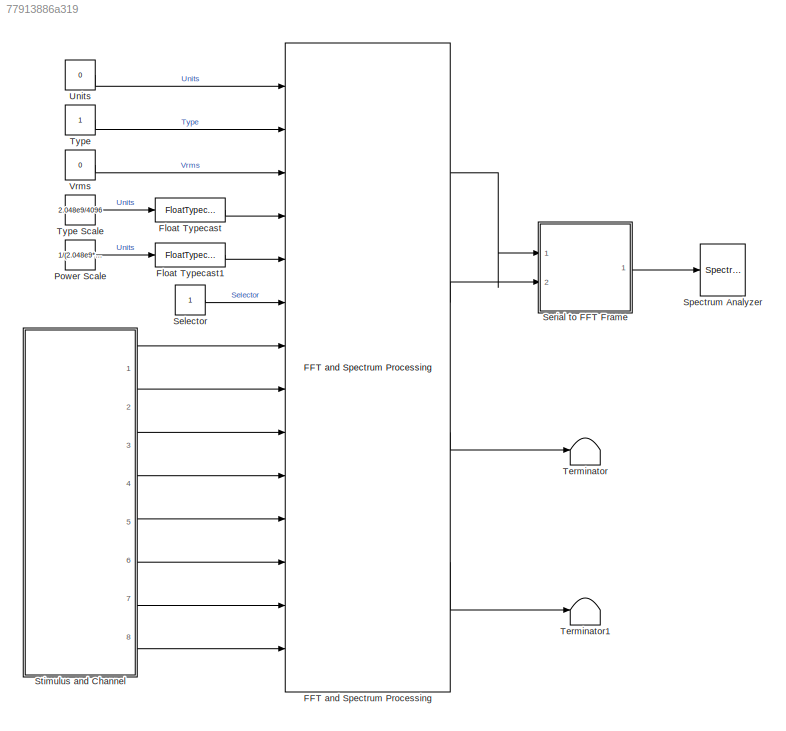
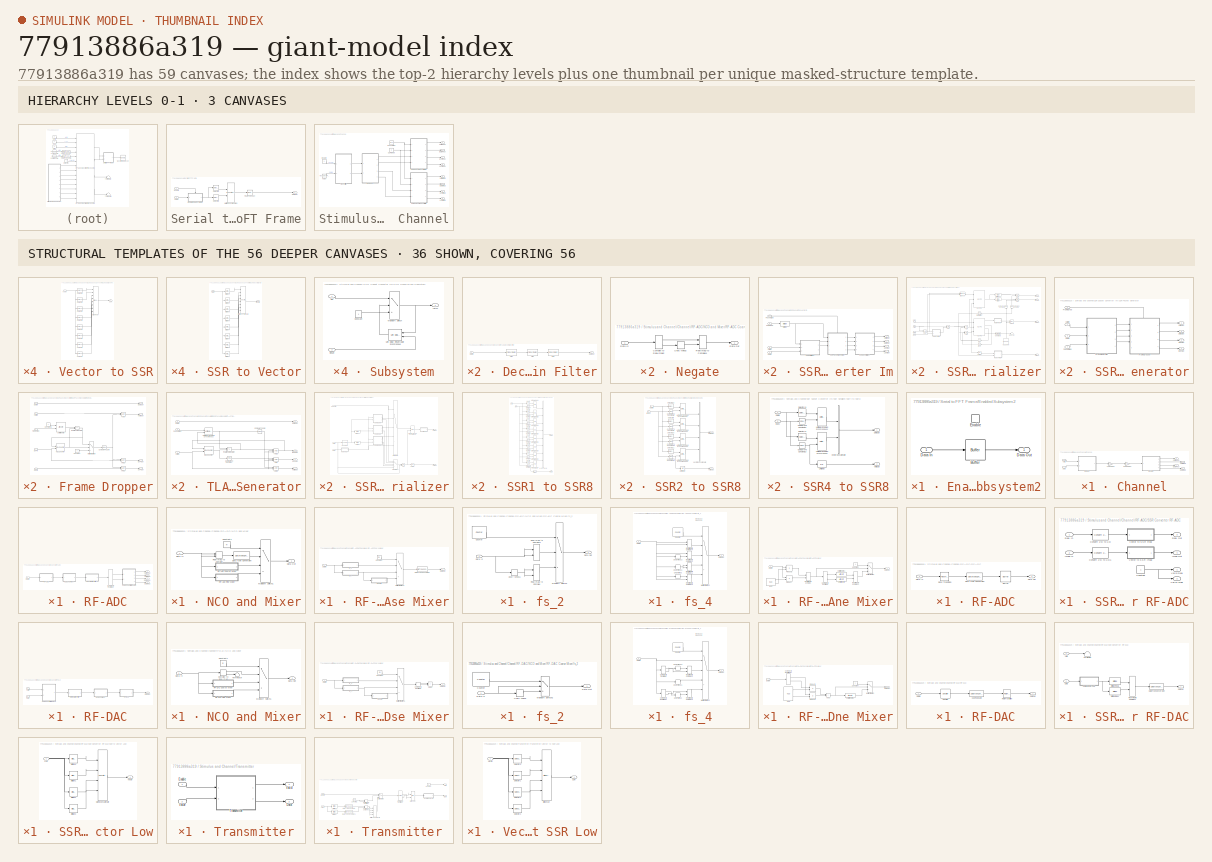
[diagram: thumbnail index - top-2 hierarchy levels (3 canvases) + 36 structural-template representatives of the remaining 56 canvases]
MODEL slx_77913886a319
KIND model
CONFIG AbsTol = auto
CONFIG EnableMultiTasking = off
CONFIG FixedStep = auto
CONFIG InitFcn = fs = 256e6;
CONFIG MaxStep = auto
CONFIG MinStep = auto
CONFIG RelTol = 1e-3
CONFIG SampleTimeConstraint = Unconstrained
CONFIG Solver = VariableStepAuto
CONFIG SolverName = VariableStepAuto
CONFIG StartTime = 0.0
CONFIG StopTime = 100000/256e6
BLOCK [Reference] FFT and Spectrum Processing  REF=slib_spectrum_analyser/FFT and Spectrum Processing  (lib defined in slx_9446f48c21c4, slx_d429541b2c0d)
  Ports = [14, 4]
  SourceBlock = slib_spectrum_analyser/FFT and Spectrum Processing
  SourceType = SubSystem
BLOCK [FloatTypecast] Float Typecast
BLOCK [FloatTypecast] Float Typecast1
BLOCK [Constant] Power Scale
  OutDataTypeStr = single
  SampleTime = -1
  Value = 1/(2.048e9*4096)
BLOCK [Constant] Selector
  OutDataTypeStr = uint32
  SampleTime = -1
BLOCK [SubSystem] Serial to FFT Frame
  Ports = [2, 1]
  RequestExecContextInheritance = off
BLOCK [Inport] Serial to FFT Frame/Data In
  Port = 2
BLOCK [Outport] Serial to FFT Frame/Data Out
BLOCK [Inport] Serial to FFT Frame/Enable
BLOCK [SubSystem] Serial to FFT Frame/Enabled Subsystem2
  Ports = [1, 1, 1]
  RequestExecContextInheritance = off
  TreatAsAtomicUnit = on
BLOCK [Buffer] Serial to FFT Frame/Enabled Subsystem2/Buffer
  N = N
  OutputFrames = off
BLOCK [Inport] Serial to FFT Frame/Enabled Subsystem2/Data In
BLOCK [Outport] Serial to FFT Frame/Enabled Subsystem2/Data Out
BLOCK [EnablePort] Serial to FFT Frame/Enabled Subsystem2/Enable
  Ports = []
BLOCK [FloatTypecast] Serial to FFT Frame/Float Typecast
BLOCK [Concatenate] Serial to FFT Frame/Matrix Concatenate2
  Mode = Multidimensional array
  Ports = [2, 1]
BLOCK [Selector] Serial to FFT Frame/Selector1
  IndexOptions = Index vector (dialog)
  Indices = [1:1:N/2+1]
  InputPortWidth = N
  OutputSizes = 1
  Ports = [1, 1]
BLOCK [Selector] Serial to FFT Frame/Selector4
  IndexOptions = Index vector (dialog)
  Indices = [N/2+2:1:N]
  InputPortWidth = N
  OutputSizes = 1
  Ports = [1, 1]
BLOCK [SpectrumAnalyzer] Spectrum Analyzer
  IsFrequencyInputMode = 1
  Ports = [1]
  ScopeSpecificationString = spbscopes.SpectrumAnalyzerBlockCfg('CurrentConfiguration', extmgr.ConfigurationSet(extmgr.Configuration('Core','General UI',true),extmgr.Configuration('Core','Source UI',true),extmgr.Configuration('Sources','WiredSimulink',true),extmgr.Configuration('Visuals','Spectrum',true,'AxesProperties',struct('Color',{[0 0 0],[0 0 0]},'XColor',{[0.686274509803922 0.686274509803922 0.686274509803922],[0.68627...<+2696ch>
BLOCK [SubSystem] Stimulus and Channel
  Ports = [0, 8]
  RequestExecContextInheritance = off
BLOCK [SubSystem] Stimulus and Channel/Channel
  Ports = [2, 4]
  RequestExecContextInheritance = off
BLOCK [Inport] Stimulus and Channel/Channel/Data
  Port = 2
BLOCK [Outport] Stimulus and Channel/Channel/Data Imag
  Port = 4
BLOCK [Outport] Stimulus and Channel/Channel/Data Real
  Port = 2
BLOCK [SubSystem] Stimulus and Channel/Channel/RF-ADC
  Ports = [1, 4]
  RequestExecContextInheritance = off
BLOCK [ComplexToRealImag] Stimulus and Channel/Channel/RF-ADC/Complex to Real-Imag
  Ports = [1, 2]
BLOCK [Outport] Stimulus and Channel/Channel/RF-ADC/Data Imag
  Port = 4
  VectorParamsAs1DForOutWhenUnconnected = off
BLOCK [Inport] Stimulus and Channel/Channel/RF-ADC/Data In
BLOCK [Outport] Stimulus and Channel/Channel/RF-ADC/Data Real
  Port = 3
  VectorParamsAs1DForOutWhenUnconnected = off
BLOCK [SubSystem] Stimulus and Channel/Channel/RF-ADC/Decimation Filter
  Ports = [1, 1]
  RequestExecContextInheritance = off
BLOCK [Inport] Stimulus and Channel/Channel/RF-ADC/Decimation Filter/Data In
BLOCK [Outport] Stimulus and Channel/Channel/RF-ADC/Decimation Filter/Data Out
  VectorParamsAs1DForOutWhenUnconnected = off
BLOCK [Reference] Stimulus and Channel/Channel/RF-ADC/Decimation Filter/FIR 0  REF=dspmlti4/FIR
Decimation
  Ports = [1, 1]
  SourceBlock = dspmlti4/FIR\nDecimation
  SourceProductBaseCode = DS
  SourceType = FIR Decimation
  UserDataPersistent = on
BLOCK [Reference] Stimulus and Channel/Channel/RF-ADC/Decimation Filter/FIR 1  REF=dspmlti4/FIR
Decimation
  Commented = through
  Ports = [1, 1]
  SourceBlock = dspmlti4/FIR\nDecimation
  SourceProductBaseCode = DS
  SourceType = FIR Decimation
  UserDataPersistent = on
BLOCK [Reference] Stimulus and Channel/Channel/RF-ADC/Decimation Filter/FIR 2  REF=dspmlti4/FIR
Decimation
  Commented = through
  Ports = [1, 1]
  SourceBlock = dspmlti4/FIR\nDecimation
  SourceProductBaseCode = DS
  SourceType = FIR Decimation
  UserDataPersistent = on
BLOCK [SubSystem] Stimulus and Channel/Channel/RF-ADC/NCO and Mixer
  Ports = [1, 1]
  RequestExecContextInheritance = off
BLOCK [Constant] Stimulus and Channel/Channel/RF-ADC/NCO and Mixer/Constant1
  OutDataTypeStr = fixdt(0,2,0)
  SampleTime = -1
  Value = m
BLOCK [Inport] Stimulus and Channel/Channel/RF-ADC/NCO and Mixer/Data In
BLOCK [Outport] Stimulus and Channel/Channel/RF-ADC/NCO and Mixer/Data Out
  VectorParamsAs1DForOutWhenUnconnected = off
BLOCK [DataTypeConversion] Stimulus and Channel/Channel/RF-ADC/NCO and Mixer/Data Type Conversion
  OutDataTypeStr = fixdt(1,16,15)
  RndMeth = Floor
  SaturateOnIntegerOverflow = off
BLOCK [MultiPortSwitch] Stimulus and Channel/Channel/RF-ADC/NCO and Mixer/Multiport Switch1
  DataPortOrder = Zero-based contiguous
  InputSameDT = off
  Ports = [4, 1]
  SaturateOnIntegerOverflow = off
  zeroidx = on
BLOCK [SubSystem] Stimulus and Channel/Channel/RF-ADC/NCO and Mixer/RF-ADC Coarse Mixer
  Ports = [1, 1]
  RequestExecContextInheritance = off
BLOCK [Constant] Stimulus and Channel/Channel/RF-ADC/NCO and Mixer/RF-ADC Coarse Mixer/Constant
  OutDataTypeStr = fixdt(0,2,0)
  SampleTime = -1
  Value = mc
BLOCK [Inport] Stimulus and Channel/Channel/RF-ADC/NCO and Mixer/RF-ADC Coarse Mixer/Data In
BLOCK [Outport] Stimulus and Channel/Channel/RF-ADC/NCO and Mixer/RF-ADC Coarse Mixer/Data Out
  VectorParamsAs1DForOutWhenUnconnected = off
BLOCK [DataTypeConversion] Stimulus and Channel/Channel/RF-ADC/NCO and Mixer/RF-ADC Coarse Mixer/Data Type Conversion
  OutDataTypeStr = fixdt(1,16,15)
  RndMeth = Floor
  SaturateOnIntegerOverflow = off
BLOCK [MultiPortSwitch] Stimulus and Channel/Channel/RF-ADC/NCO and Mixer/RF-ADC Coarse Mixer/Multiport Switch1
  DataPortOrder = Zero-based contiguous
  InputSameDT = off
  Ports = [4, 1]
  SaturateOnIntegerOverflow = off
  zeroidx = on
BLOCK [SubSystem] Stimulus and Channel/Channel/RF-ADC/NCO and Mixer/RF-ADC Coarse Mixer/Negate
  Ports = [1, 1]
  RequestExecContextInheritance = off
BLOCK [ComplexToRealImag] Stimulus and Channel/Channel/RF-ADC/NCO and Mixer/RF-ADC Coarse Mixer/Negate/Complex to Real-Imag2
  Ports = [1, 2]
BLOCK [Inport] Stimulus and Channel/Channel/RF-ADC/NCO and Mixer/RF-ADC Coarse Mixer/Negate/Data In
BLOCK [Outport] Stimulus and Channel/Channel/RF-ADC/NCO and Mixer/RF-ADC Coarse Mixer/Negate/Data Out
  VectorParamsAs1DForOutWhenUnconnected = off
BLOCK [RealImagToComplex] Stimulus and Channel/Channel/RF-ADC/NCO and Mixer/RF-ADC Coarse Mixer/Negate/Real-Imag to Complex1
  Ports = [2, 1]
BLOCK [UnaryMinus] Stimulus and Channel/Channel/RF-ADC/NCO and Mixer/RF-ADC Coarse Mixer/Negate/Unary Minus
BLOCK [SubSystem] Stimulus and Channel/Channel/RF-ADC/NCO and Mixer/RF-ADC Coarse Mixer/fs_2
  Ports = [1, 1]
  RequestExecContextInheritance = off
BLOCK [Reference] Stimulus and Channel/Channel/RF-ADC/NCO and Mixer/RF-ADC Coarse Mixer/fs_2/Counter  REF=dspswit3/Counter
  Ports = [0, 1]
  SourceBlock = dspswit3/Counter
  SourceProductBaseCode = DS
  SourceType = Counter
BLOCK [Inport] Stimulus and Channel/Channel/RF-ADC/NCO and Mixer/RF-ADC Coarse Mixer/fs_2/Data In
BLOCK [Outport] Stimulus and Channel/Channel/RF-ADC/NCO and Mixer/RF-ADC Coarse Mixer/fs_2/Data Out
  VectorParamsAs1DForOutWhenUnconnected = off
BLOCK [MultiPortSwitch] Stimulus and Channel/Channel/RF-ADC/NCO and Mixer/RF-ADC Coarse Mixer/fs_2/Multiport Switch2
  DataPortOrder = Zero-based contiguous
  InputSameDT = off
  Inputs = 2
  Ports = [3, 1]
  SaturateOnIntegerOverflow = off
  zeroidx = on
BLOCK [RealImagToComplex] Stimulus and Channel/Channel/RF-ADC/NCO and Mixer/RF-ADC Coarse Mixer/fs_2/Real-Imag to Complex
  Ports = [2, 1]
BLOCK [RealImagToComplex] Stimulus and Channel/Channel/RF-ADC/NCO and Mixer/RF-ADC Coarse Mixer/fs_2/Real-Imag to Complex1
  Ports = [2, 1]
BLOCK [UnaryMinus] Stimulus and Channel/Channel/RF-ADC/NCO and Mixer/RF-ADC Coarse Mixer/fs_2/Unary Minus1
BLOCK [SubSystem] Stimulus and Channel/Channel/RF-ADC/NCO and Mixer/RF-ADC Coarse Mixer/fs_4
  Ports = [1, 1]
  RequestExecContextInheritance = off
BLOCK [Reference] Stimulus and Channel/Channel/RF-ADC/NCO and Mixer/RF-ADC Coarse Mixer/fs_4/Counter  REF=dspswit3/Counter
  Ports = [0, 1]
  SourceBlock = dspswit3/Counter
  SourceProductBaseCode = DS
  SourceType = Counter
BLOCK [Inport] Stimulus and Channel/Channel/RF-ADC/NCO and Mixer/RF-ADC Coarse Mixer/fs_4/Data In
BLOCK [Outport] Stimulus and Channel/Channel/RF-ADC/NCO and Mixer/RF-ADC Coarse Mixer/fs_4/Data Out
  VectorParamsAs1DForOutWhenUnconnected = off
BLOCK [MultiPortSwitch] Stimulus and Channel/Channel/RF-ADC/NCO and Mixer/RF-ADC Coarse Mixer/fs_4/Multiport Switch2
  DataPortOrder = Zero-based contiguous
  InputSameDT = off
  Inputs = 4
  Ports = [5, 1]
  SaturateOnIntegerOverflow = off
  zeroidx = on
BLOCK [RealImagToComplex] Stimulus and Channel/Channel/RF-ADC/NCO and Mixer/RF-ADC Coarse Mixer/fs_4/Real-Imag to Complex1
  Ports = [2, 1]
BLOCK [RealImagToComplex] Stimulus and Channel/Channel/RF-ADC/NCO and Mixer/RF-ADC Coarse Mixer/fs_4/Real-Imag to Complex2
  Ports = [2, 1]
BLOCK [RealImagToComplex] Stimulus and Channel/Channel/RF-ADC/NCO and Mixer/RF-ADC Coarse Mixer/fs_4/Real-Imag to Complex3
  Ports = [2, 1]
BLOCK [RealImagToComplex] Stimulus and Channel/Channel/RF-ADC/NCO and Mixer/RF-ADC Coarse Mixer/fs_4/Real-Imag to Complex4
  Ports = [2, 1]
BLOCK [UnaryMinus] Stimulus and Channel/Channel/RF-ADC/NCO and Mixer/RF-ADC Coarse Mixer/fs_4/Unary Minus
BLOCK [UnaryMinus] Stimulus and Channel/Channel/RF-ADC/NCO and Mixer/RF-ADC Coarse Mixer/fs_4/Unary Minus1
BLOCK [UnaryMinus] Stimulus and Channel/Channel/RF-ADC/NCO and Mixer/RF-ADC Coarse Mixer/fs_4/Unary Minus2
BLOCK [SubSystem] Stimulus and Channel/Channel/RF-ADC/NCO and Mixer/RF-ADC Fine Mixer
  Ports = [1, 1]
  RequestExecContextInheritance = off
BLOCK [ComplexToRealImag] Stimulus and Channel/Channel/RF-ADC/NCO and Mixer/RF-ADC Fine Mixer/Complex to Real-Imag
  Ports = [1, 2]
BLOCK [Constant] Stimulus and Channel/Channel/RF-ADC/NCO and Mixer/RF-ADC Fine Mixer/Constant
  SampleTime = -1
  Value = 0
BLOCK [Inport] Stimulus and Channel/Channel/RF-ADC/NCO and Mixer/RF-ADC Fine Mixer/Data In
BLOCK [Outport] Stimulus and Channel/Channel/RF-ADC/NCO and Mixer/RF-ADC Fine Mixer/Data Out
  VectorParamsAs1DForOutWhenUnconnected = off
BLOCK [MultiPortSwitch] Stimulus and Channel/Channel/RF-ADC/NCO and Mixer/RF-ADC Fine Mixer/Multiport Switch
  DataPortOrder = Zero-based contiguous
  InputSameDT = off
  Inputs = 2
  Ports = [3, 1]
  SaturateOnIntegerOverflow = off
  zeroidx = on
BLOCK [Reference] Stimulus and Channel/Channel/RF-ADC/NCO and Mixer/RF-ADC Fine Mixer/NCO  REF=dspsigops/NCO
  Ports = [0, 2]
  SourceBlock = dspsigops/NCO
  SourceProductBaseCode = DS
  SourceType = NCO
BLOCK [Product] Stimulus and Channel/Channel/RF-ADC/NCO and Mixer/RF-ADC Fine Mixer/Product
  OutDataTypeStr = fixdt(1,16,15)
  Ports = [2, 1]
BLOCK [Product] Stimulus and Channel/Channel/RF-ADC/NCO and Mixer/RF-ADC Fine Mixer/Product1
  OutDataTypeStr = fixdt(1,16,15)
  Ports = [2, 1]
BLOCK [RealImagToComplex] Stimulus and Channel/Channel/RF-ADC/NCO and Mixer/RF-ADC Fine Mixer/Real-Imag to Complex
  Ports = [2, 1]
BLOCK [RealImagToComplex] Stimulus and Channel/Channel/RF-ADC/NCO and Mixer/RF-ADC Fine Mixer/Real-Imag to Complex1
  Ports = [2, 1]
BLOCK [ArithShift] Stimulus and Channel/Channel/RF-ADC/NCO and Mixer/RF-ADC Fine Mixer/Shift Arithmetic
  BitShiftDirection = Right
  BitShiftNumber = 1
  InputPortMap = u0
  Ports = [1, 1]
BLOCK [ArithShift] Stimulus and Channel/Channel/RF-ADC/NCO and Mixer/RF-ADC Fine Mixer/Shift Arithmetic1
  BitShiftDirection = Right
  BitShiftNumber = 1
  InputPortMap = u0
  Ports = [1, 1]
BLOCK [RealImagToComplex] Stimulus and Channel/Channel/RF-ADC/NCO and Mixer/Real-Imag to Complex
  Ports = [2, 1]
BLOCK [SubSystem] Stimulus and Channel/Channel/RF-ADC/RF-ADC
  Ports = [1, 1]
  RequestExecContextInheritance = off
BLOCK [Buffer] Stimulus and Channel/Channel/RF-ADC/RF-ADC/Buffer
  N = ssr
  OutputFrames = off
BLOCK [Inport] Stimulus and Channel/Channel/RF-ADC/RF-ADC/Data In
BLOCK [Outport] Stimulus and Channel/Channel/RF-ADC/RF-ADC/Data Out
  VectorParamsAs1DForOutWhenUnconnected = off
BLOCK [DataTypeConversion] Stimulus and Channel/Channel/RF-ADC/RF-ADC/Data Type Conversion
  OutDataTypeStr = fixdt(1,12,11)
  RndMeth = Floor
BLOCK [RateTransition] Stimulus and Channel/Channel/RF-ADC/RF-ADC/Rate Transition
  OutPortSampleTime = 1/fs
BLOCK [SubSystem] Stimulus and Channel/Channel/RF-ADC/SSR Converter RF-ADC
  Ports = [2, 4]
  RequestExecContextInheritance = off
BLOCK [Constant] Stimulus and Channel/Channel/RF-ADC/SSR Converter RF-ADC/Constant
  OutDataTypeStr = boolean
  SampleTime = -1
BLOCK [Reference] Stimulus and Channel/Channel/RF-ADC/SSR Converter RF-ADC/Convert 2-D to 1-D  REF=dspsigattribs/Convert 2-D to 1-D
  Ports = [1, 1]
  SourceBlock = dspsigattribs/Convert 2-D to 1-D
  SourceProductBaseCode = DS
  SourceType = Convert 2-D to 1-D
BLOCK [Reference] Stimulus and Channel/Channel/RF-ADC/SSR Converter RF-ADC/Convert 2-D to 1-D1  REF=dspsigattribs/Convert 2-D to 1-D
  Ports = [1, 1]
  SourceBlock = dspsigattribs/Convert 2-D to 1-D
  SourceProductBaseCode = DS
  SourceType = Convert 2-D to 1-D
BLOCK [Inport] Stimulus and Channel/Channel/RF-ADC/SSR Converter RF-ADC/Imag In
  Port = 2
BLOCK [Outport] Stimulus and Channel/Channel/RF-ADC/SSR Converter RF-ADC/Imag Out
  Port = 4
BLOCK [Inport] Stimulus and Channel/Channel/RF-ADC/SSR Converter RF-ADC/Real In
BLOCK [Outport] Stimulus and Channel/Channel/RF-ADC/SSR Converter RF-ADC/Real Out
  Port = 3
BLOCK [Outport] Stimulus and Channel/Channel/RF-ADC/SSR Converter RF-ADC/Valid Imag
  Port = 2
BLOCK [Outport] Stimulus and Channel/Channel/RF-ADC/SSR Converter RF-ADC/Valid Real
BLOCK [SubSystem] Stimulus and Channel/Channel/RF-ADC/SSR Converter RF-ADC/Vector to SSR Imag
  Ports = [1, 1]
  RequestExecContextInheritance = off
BLOCK [Reference] Stimulus and Channel/Channel/RF-ADC/SSR Converter RF-ADC/Vector to SSR Imag/Bit Concat  REF=hdlsllib/Logic and Bit
Operations/Bit Concat
  Ports = [8, 1]
  SourceBlock = hdlsllib/Logic and Bit\nOperations/Bit Concat
  SourceProductBaseCode = SL
  SourceType = Bit Concat
BLOCK [Outport] Stimulus and Channel/Channel/RF-ADC/SSR Converter RF-ADC/Vector to SSR Imag/SSR
BLOCK [Selector] Stimulus and Channel/Channel/RF-ADC/SSR Converter RF-ADC/Vector to SSR Imag/Selector0
  IndexOptions = Index vector (dialog)
  Indices = 8
  InputPortWidth = 8
  OutputSizes = 1
  Ports = [1, 1]
BLOCK [Selector] Stimulus and Channel/Channel/RF-ADC/SSR Converter RF-ADC/Vector to SSR Imag/Selector1
  IndexOptions = Index vector (dialog)
  Indices = 7
  InputPortWidth = 8
  OutputSizes = 1
  Ports = [1, 1]
BLOCK [Selector] Stimulus and Channel/Channel/RF-ADC/SSR Converter RF-ADC/Vector to SSR Imag/Selector2
  IndexOptions = Index vector (dialog)
  Indices = 6
  InputPortWidth = 8
  OutputSizes = 1
  Ports = [1, 1]
BLOCK [Selector] Stimulus and Channel/Channel/RF-ADC/SSR Converter RF-ADC/Vector to SSR Imag/Selector3
  IndexOptions = Index vector (dialog)
  Indices = 5
  InputPortWidth = 8
  OutputSizes = 1
  Ports = [1, 1]
BLOCK [Selector] Stimulus and Channel/Channel/RF-ADC/SSR Converter RF-ADC/Vector to SSR Imag/Selector4
  IndexOptions = Index vector (dialog)
  Indices = 4
  InputPortWidth = 8
  OutputSizes = 1
  Ports = [1, 1]
BLOCK [Selector] Stimulus and Channel/Channel/RF-ADC/SSR Converter RF-ADC/Vector to SSR Imag/Selector5
  IndexOptions = Index vector (dialog)
  Indices = 3
  InputPortWidth = 8
  OutputSizes = 1
  Ports = [1, 1]
BLOCK [Selector] Stimulus and Channel/Channel/RF-ADC/SSR Converter RF-ADC/Vector to SSR Imag/Selector6
  IndexOptions = Index vector (dialog)
  Indices = 2
  InputPortWidth = 8
  OutputSizes = 1
  Ports = [1, 1]
BLOCK [Selector] Stimulus and Channel/Channel/RF-ADC/SSR Converter RF-ADC/Vector to SSR Imag/Selector7
  IndexOptions = Index vector (dialog)
  Indices = 1
  InputPortWidth = 8
  OutputSizes = 1
  Ports = [1, 1]
BLOCK [Inport] Stimulus and Channel/Channel/RF-ADC/SSR Converter RF-ADC/Vector to SSR Imag/Vector
BLOCK [SubSystem] Stimulus and Channel/Channel/RF-ADC/SSR Converter RF-ADC/Vector to SSR Real
  Ports = [1, 1]
  RequestExecContextInheritance = off
BLOCK [Reference] Stimulus and Channel/Channel/RF-ADC/SSR Converter RF-ADC/Vector to SSR Real/Bit Concat  REF=hdlsllib/Logic and Bit
Operations/Bit Concat
  Ports = [8, 1]
  SourceBlock = hdlsllib/Logic and Bit\nOperations/Bit Concat
  SourceProductBaseCode = SL
  SourceType = Bit Concat
BLOCK [Outport] Stimulus and Channel/Channel/RF-ADC/SSR Converter RF-ADC/Vector to SSR Real/SSR
BLOCK [Selector] Stimulus and Channel/Channel/RF-ADC/SSR Converter RF-ADC/Vector to SSR Real/Selector0
  IndexOptions = Index vector (dialog)
  Indices = 8
  InputPortWidth = 8
  OutputSizes = 1
  Ports = [1, 1]
BLOCK [Selector] Stimulus and Channel/Channel/RF-ADC/SSR Converter RF-ADC/Vector to SSR Real/Selector1
  IndexOptions = Index vector (dialog)
  Indices = 7
  InputPortWidth = 8
  OutputSizes = 1
  Ports = [1, 1]
BLOCK [Selector] Stimulus and Channel/Channel/RF-ADC/SSR Converter RF-ADC/Vector to SSR Real/Selector2
  IndexOptions = Index vector (dialog)
  Indices = 6
  InputPortWidth = 8
  OutputSizes = 1
  Ports = [1, 1]
BLOCK [Selector] Stimulus and Channel/Channel/RF-ADC/SSR Converter RF-ADC/Vector to SSR Real/Selector3
  IndexOptions = Index vector (dialog)
  Indices = 5
  InputPortWidth = 8
  OutputSizes = 1
  Ports = [1, 1]
BLOCK [Selector] Stimulus and Channel/Channel/RF-ADC/SSR Converter RF-ADC/Vector to SSR Real/Selector4
  IndexOptions = Index vector (dialog)
  Indices = 4
  InputPortWidth = 8
  OutputSizes = 1
  Ports = [1, 1]
BLOCK [Selector] Stimulus and Channel/Channel/RF-ADC/SSR Converter RF-ADC/Vector to SSR Real/Selector5
  IndexOptions = Index vector (dialog)
  Indices = 3
  InputPortWidth = 8
  OutputSizes = 1
  Ports = [1, 1]
BLOCK [Selector] Stimulus and Channel/Channel/RF-ADC/SSR Converter RF-ADC/Vector to SSR Real/Selector6
  IndexOptions = Index vector (dialog)
  Indices = 2
  InputPortWidth = 8
  OutputSizes = 1
  Ports = [1, 1]
BLOCK [Selector] Stimulus and Channel/Channel/RF-ADC/SSR Converter RF-ADC/Vector to SSR Real/Selector7
  IndexOptions = Index vector (dialog)
  Indices = 1
  InputPortWidth = 8
  OutputSizes = 1
  Ports = [1, 1]
BLOCK [Inport] Stimulus and Channel/Channel/RF-ADC/SSR Converter RF-ADC/Vector to SSR Real/Vector
BLOCK [Outport] Stimulus and Channel/Channel/RF-ADC/Valid Imag
  Port = 2
  VectorParamsAs1DForOutWhenUnconnected = off
BLOCK [Outport] Stimulus and Channel/Channel/RF-ADC/Valid Real
  VectorParamsAs1DForOutWhenUnconnected = off
BLOCK [SubSystem] Stimulus and Channel/Channel/RF-DAC
  Ports = [2, 1]
  RequestExecContextInheritance = off
BLOCK [Inport] Stimulus and Channel/Channel/RF-DAC/Data
  Port = 2
BLOCK [Outport] Stimulus and Channel/Channel/RF-DAC/Data Out
  VectorParamsAs1DForOutWhenUnconnected = off
BLOCK [SubSystem] Stimulus and Channel/Channel/RF-DAC/Interpolation Filter
  Ports = [1, 1]
  RequestExecContextInheritance = off
BLOCK [Inport] Stimulus and Channel/Channel/RF-DAC/Interpolation Filter/Data In
BLOCK [Outport] Stimulus and Channel/Channel/RF-DAC/Interpolation Filter/Data Out
  VectorParamsAs1DForOutWhenUnconnected = off
BLOCK [Reference] Stimulus and Channel/Channel/RF-DAC/Interpolation Filter/FIR 0  REF=dspmlti4/FIR
Interpolation
  Commented = through
  Ports = [1, 1]
  SourceBlock = dspmlti4/FIR\nInterpolation
  SourceProductBaseCode = DS
  SourceType = FIR Interpolation
  UserDataPersistent = on
BLOCK [Reference] Stimulus and Channel/Channel/RF-DAC/Interpolation Filter/FIR 1  REF=dspmlti4/FIR
Interpolation
  Ports = [1, 1]
  SourceBlock = dspmlti4/FIR\nInterpolation
  SourceProductBaseCode = DS
  SourceType = FIR Interpolation
  UserDataPersistent = on
BLOCK [Reference] Stimulus and Channel/Channel/RF-DAC/Interpolation Filter/FIR 2  REF=dspmlti4/FIR
Interpolation
  Ports = [1, 1]
  SourceBlock = dspmlti4/FIR\nInterpolation
  SourceProductBaseCode = DS
  SourceType = FIR Interpolation
  UserDataPersistent = on
BLOCK [SubSystem] Stimulus and Channel/Channel/RF-DAC/NCO and Mixer
  Ports = [1, 1]
  RequestExecContextInheritance = off
BLOCK [ComplexToRealImag] Stimulus and Channel/Channel/RF-DAC/NCO and Mixer/Complex to Real-Imag
  Ports = [1, 2]
BLOCK [Constant] Stimulus and Channel/Channel/RF-DAC/NCO and Mixer/Constant1
  OutDataTypeStr = fixdt(0,2,0)
  SampleTime = -1
  Value = m
BLOCK [Inport] Stimulus and Channel/Channel/RF-DAC/NCO and Mixer/Data In
BLOCK [Outport] Stimulus and Channel/Channel/RF-DAC/NCO and Mixer/Data Out
  VectorParamsAs1DForOutWhenUnconnected = off
BLOCK [MultiPortSwitch] Stimulus and Channel/Channel/RF-DAC/NCO and Mixer/Multiport Switch1
  DataPortOrder = Zero-based contiguous
  InputSameDT = off
  Ports = [4, 1]
  SaturateOnIntegerOverflow = off
  zeroidx = on
BLOCK [SubSystem] Stimulus and Channel/Channel/RF-DAC/NCO and Mixer/RF-DAC Coarse Mixer
  Ports = [1, 1]
  RequestExecContextInheritance = off
BLOCK [Sum] Stimulus and Channel/Channel/RF-DAC/NCO and Mixer/RF-DAC Coarse Mixer/Add2
  IconShape = rectangular
  OutDataTypeStr = double
  Ports = [2, 1]
BLOCK [ComplexToRealImag] Stimulus and Channel/Channel/RF-DAC/NCO and Mixer/RF-DAC Coarse Mixer/Complex to Real-Imag
  Ports = [1, 2]
BLOCK [Constant] Stimulus and Channel/Channel/RF-DAC/NCO and Mixer/RF-DAC Coarse Mixer/Constant
  OutDataTypeStr = fixdt(0,2,0)
  SampleTime = -1
  Value = mc
BLOCK [Inport] Stimulus and Channel/Channel/RF-DAC/NCO and Mixer/RF-DAC Coarse Mixer/Data In
BLOCK [Outport] Stimulus and Channel/Channel/RF-DAC/NCO and Mixer/RF-DAC Coarse Mixer/Data Out
  VectorParamsAs1DForOutWhenUnconnected = off
BLOCK [MultiPortSwitch] Stimulus and Channel/Channel/RF-DAC/NCO and Mixer/RF-DAC Coarse Mixer/Multiport Switch1
  DataPortOrder = Zero-based contiguous
  InputSameDT = off
  Ports = [4, 1]
  SaturateOnIntegerOverflow = off
  zeroidx = on
BLOCK [SubSystem] Stimulus and Channel/Channel/RF-DAC/NCO and Mixer/RF-DAC Coarse Mixer/Negate
  Ports = [1, 1]
  RequestExecContextInheritance = off
BLOCK [ComplexToRealImag] Stimulus and Channel/Channel/RF-DAC/NCO and Mixer/RF-DAC Coarse Mixer/Negate/Complex to Real-Imag2
  Ports = [1, 2]
BLOCK [Inport] Stimulus and Channel/Channel/RF-DAC/NCO and Mixer/RF-DAC Coarse Mixer/Negate/Data In
BLOCK [Outport] Stimulus and Channel/Channel/RF-DAC/NCO and Mixer/RF-DAC Coarse Mixer/Negate/Data Out
  VectorParamsAs1DForOutWhenUnconnected = off
BLOCK [RealImagToComplex] Stimulus and Channel/Channel/RF-DAC/NCO and Mixer/RF-DAC Coarse Mixer/Negate/Real-Imag to Complex1
  Ports = [2, 1]
BLOCK [UnaryMinus] Stimulus and Channel/Channel/RF-DAC/NCO and Mixer/RF-DAC Coarse Mixer/Negate/Unary Minus
BLOCK [SubSystem] Stimulus and Channel/Channel/RF-DAC/NCO and Mixer/RF-DAC Coarse Mixer/fs_2
  Ports = [1, 1]
  RequestExecContextInheritance = off
BLOCK [Reference] Stimulus and Channel/Channel/RF-DAC/NCO and Mixer/RF-DAC Coarse Mixer/fs_2/Counter  REF=dspswit3/Counter
  Ports = [0, 1]
  SourceBlock = dspswit3/Counter
  SourceProductBaseCode = DS
  SourceType = Counter
BLOCK [Inport] Stimulus and Channel/Channel/RF-DAC/NCO and Mixer/RF-DAC Coarse Mixer/fs_2/Data In
BLOCK [Outport] Stimulus and Channel/Channel/RF-DAC/NCO and Mixer/RF-DAC Coarse Mixer/fs_2/Data Out
  VectorParamsAs1DForOutWhenUnconnected = off
BLOCK [MultiPortSwitch] Stimulus and Channel/Channel/RF-DAC/NCO and Mixer/RF-DAC Coarse Mixer/fs_2/Multiport Switch2
  DataPortOrder = Zero-based contiguous
  InputSameDT = off
  Inputs = 2
  Ports = [3, 1]
  SaturateOnIntegerOverflow = off
  zeroidx = on
BLOCK [UnaryMinus] Stimulus and Channel/Channel/RF-DAC/NCO and Mixer/RF-DAC Coarse Mixer/fs_2/Unary Minus
BLOCK [SubSystem] Stimulus and Channel/Channel/RF-DAC/NCO and Mixer/RF-DAC Coarse Mixer/fs_4
  Ports = [1, 1]
  RequestExecContextInheritance = off
BLOCK [ComplexToRealImag] Stimulus and Channel/Channel/RF-DAC/NCO and Mixer/RF-DAC Coarse Mixer/fs_4/Complex to Real-Imag
  Ports = [1, 2]
BLOCK [ComplexToRealImag] Stimulus and Channel/Channel/RF-DAC/NCO and Mixer/RF-DAC Coarse Mixer/fs_4/Complex to Real-Imag1
  Ports = [1, 2]
BLOCK [Reference] Stimulus and Channel/Channel/RF-DAC/NCO and Mixer/RF-DAC Coarse Mixer/fs_4/Counter  REF=dspswit3/Counter
  Ports = [0, 1]
  SourceBlock = dspswit3/Counter
  SourceProductBaseCode = DS
  SourceType = Counter
BLOCK [Inport] Stimulus and Channel/Channel/RF-DAC/NCO and Mixer/RF-DAC Coarse Mixer/fs_4/Data In
BLOCK [Outport] Stimulus and Channel/Channel/RF-DAC/NCO and Mixer/RF-DAC Coarse Mixer/fs_4/Data Out
  VectorParamsAs1DForOutWhenUnconnected = off
BLOCK [MultiPortSwitch] Stimulus and Channel/Channel/RF-DAC/NCO and Mixer/RF-DAC Coarse Mixer/fs_4/Multiport Switch2
  DataPortOrder = Zero-based contiguous
  InputSameDT = off
  Inputs = 4
  Ports = [5, 1]
  SaturateOnIntegerOverflow = off
  zeroidx = on
BLOCK [RealImagToComplex] Stimulus and Channel/Channel/RF-DAC/NCO and Mixer/RF-DAC Coarse Mixer/fs_4/Real-Imag to Complex2
  Ports = [2, 1]
BLOCK [RealImagToComplex] Stimulus and Channel/Channel/RF-DAC/NCO and Mixer/RF-DAC Coarse Mixer/fs_4/Real-Imag to Complex3
  Ports = [2, 1]
BLOCK [UnaryMinus] Stimulus and Channel/Channel/RF-DAC/NCO and Mixer/RF-DAC Coarse Mixer/fs_4/Unary Minus
BLOCK [UnaryMinus] Stimulus and Channel/Channel/RF-DAC/NCO and Mixer/RF-DAC Coarse Mixer/fs_4/Unary Minus1
BLOCK [UnaryMinus] Stimulus and Channel/Channel/RF-DAC/NCO and Mixer/RF-DAC Coarse Mixer/fs_4/Unary Minus2
BLOCK [SubSystem] Stimulus and Channel/Channel/RF-DAC/NCO and Mixer/RF-DAC Fine Mixer
  Ports = [1, 1]
  RequestExecContextInheritance = off
BLOCK [Sum] Stimulus and Channel/Channel/RF-DAC/NCO and Mixer/RF-DAC Fine Mixer/Add2
  IconShape = rectangular
  Ports = [2, 1]
BLOCK [ComplexToRealImag] Stimulus and Channel/Channel/RF-DAC/NCO and Mixer/RF-DAC Fine Mixer/Complex to Real-Imag1
  Ports = [1, 2]
BLOCK [Constant] Stimulus and Channel/Channel/RF-DAC/NCO and Mixer/RF-DAC Fine Mixer/Constant
  OutDataTypeStr = boolean
  SampleTime = -1
BLOCK [Inport] Stimulus and Channel/Channel/RF-DAC/NCO and Mixer/RF-DAC Fine Mixer/Data In
BLOCK [Outport] Stimulus and Channel/Channel/RF-DAC/NCO and Mixer/RF-DAC Fine Mixer/Data Out
  VectorParamsAs1DForOutWhenUnconnected = off
BLOCK [MultiPortSwitch] Stimulus and Channel/Channel/RF-DAC/NCO and Mixer/RF-DAC Fine Mixer/Multiport Switch
  DataPortOrder = Zero-based contiguous
  InputSameDT = off
  Inputs = 2
  Ports = [3, 1]
  SaturateOnIntegerOverflow = off
  zeroidx = on
BLOCK [Reference] Stimulus and Channel/Channel/RF-DAC/NCO and Mixer/RF-DAC Fine Mixer/NCO  REF=dspsigops/NCO
  Ports = [0, 2]
  SourceBlock = dspsigops/NCO
  SourceProductBaseCode = DS
  SourceType = NCO
BLOCK [Product] Stimulus and Channel/Channel/RF-DAC/NCO and Mixer/RF-DAC Fine Mixer/Product1
  Ports = [2, 1]
BLOCK [Product] Stimulus and Channel/Channel/RF-DAC/NCO and Mixer/RF-DAC Fine Mixer/Product4
  Ports = [2, 1]
BLOCK [ArithShift] Stimulus and Channel/Channel/RF-DAC/NCO and Mixer/RF-DAC Fine Mixer/Shift Arithmetic1
  BitShiftDirection = Right
  BitShiftNumber = 1
  InputPortMap = u0
  Ports = [1, 1]
BLOCK [Terminator] Stimulus and Channel/Channel/RF-DAC/NCO and Mixer/Terminator
BLOCK [SubSystem] Stimulus and Channel/Channel/RF-DAC/RF-DAC
  Ports = [1, 1]
  RequestExecContextInheritance = off
BLOCK [DataTypeConversion] Stimulus and Channel/Channel/RF-DAC/RF-DAC/Cast To Double
  OutDataTypeStr = double
  RndMeth = Floor
  SaturateOnIntegerOverflow = off
BLOCK [Inport] Stimulus and Channel/Channel/RF-DAC/RF-DAC/Data In
BLOCK [Outport] Stimulus and Channel/Channel/RF-DAC/RF-DAC/Data Out
  VectorParamsAs1DForOutWhenUnconnected = off
BLOCK [RateTransition] Stimulus and Channel/Channel/RF-DAC/RF-DAC/Rate Transition
  OutPortSampleTime = 0
BLOCK [Unbuffer] Stimulus and Channel/Channel/RF-DAC/RF-DAC/Unbuffer
  Ports = [1, 1]
BLOCK [SubSystem] Stimulus and Channel/Channel/RF-DAC/SSR Converter RF-DAC
  Ports = [2, 1]
  RequestExecContextInheritance = off
BLOCK [Reference] Stimulus and Channel/Channel/RF-DAC/SSR Converter RF-DAC/Bit Slice Imag1  REF=hdlsllib/Logic and Bit
Operations/Bit Slice
  Ports = [1, 1]
  SourceBlock = hdlsllib/Logic and Bit\nOperations/Bit Slice
  SourceProductBaseCode = SL
  SourceType = Bit Slice
BLOCK [Reference] Stimulus and Channel/Channel/RF-DAC/SSR Converter RF-DAC/Bit Slice Real1  REF=hdlsllib/Logic and Bit
Operations/Bit Slice
  Ports = [1, 1]
  SourceBlock = hdlsllib/Logic and Bit\nOperations/Bit Slice
  SourceProductBaseCode = SL
  SourceType = Bit Slice
BLOCK [Inport] Stimulus and Channel/Channel/RF-DAC/SSR Converter RF-DAC/Data
  Port = 2
BLOCK [Outport] Stimulus and Channel/Channel/RF-DAC/SSR Converter RF-DAC/Data Out
BLOCK [DataTypeConversion] Stimulus and Channel/Channel/RF-DAC/SSR Converter RF-DAC/Data Type Conversion
  ConvertRealWorld = Stored Integer (SI)
  OutDataTypeStr = fixdt(1,16,15)
  RndMeth = Floor
  SaturateOnIntegerOverflow = off
BLOCK [RealImagToComplex] Stimulus and Channel/Channel/RF-DAC/SSR Converter RF-DAC/Real-Imag to Complex1
  Ports = [2, 1]
BLOCK [SubSystem] Stimulus and Channel/Channel/RF-DAC/SSR Converter RF-DAC/SSR to Vector Low
  Ports = [1, 1]
  RequestExecContextInheritance = off
BLOCK [Reference] Stimulus and Channel/Channel/RF-DAC/SSR Converter RF-DAC/SSR to Vector Low/Bit Slice0  REF=hdlsllib/Logic and Bit
Operations/Bit Slice
  Ports = [1, 1]
  SourceBlock = hdlsllib/Logic and Bit\nOperations/Bit Slice
  SourceProductBaseCode = SL
  SourceType = Bit Slice
BLOCK [Reference] Stimulus and Channel/Channel/RF-DAC/SSR Converter RF-DAC/SSR to Vector Low/Bit Slice1  REF=hdlsllib/Logic and Bit
Operations/Bit Slice
  Ports = [1, 1]
  SourceBlock = hdlsllib/Logic and Bit\nOperations/Bit Slice
  SourceProductBaseCode = SL
  SourceType = Bit Slice
BLOCK [Reference] Stimulus and Channel/Channel/RF-DAC/SSR Converter RF-DAC/SSR to Vector Low/Bit Slice2  REF=hdlsllib/Logic and Bit
Operations/Bit Slice
  Ports = [1, 1]
  SourceBlock = hdlsllib/Logic and Bit\nOperations/Bit Slice
  SourceProductBaseCode = SL
  SourceType = Bit Slice
BLOCK [Reference] Stimulus and Channel/Channel/RF-DAC/SSR Converter RF-DAC/SSR to Vector Low/Bit Slice3  REF=hdlsllib/Logic and Bit
Operations/Bit Slice
  Ports = [1, 1]
  SourceBlock = hdlsllib/Logic and Bit\nOperations/Bit Slice
  SourceProductBaseCode = SL
  SourceType = Bit Slice
BLOCK [Concatenate] Stimulus and Channel/Channel/RF-DAC/SSR Converter RF-DAC/SSR to Vector Low/Matrix Concatenate
  Mode = Multidimensional array
  NumInputs = 4
  Ports = [4, 1]
BLOCK [Inport] Stimulus and Channel/Channel/RF-DAC/SSR Converter RF-DAC/SSR to Vector Low/SSR
BLOCK [Outport] Stimulus and Channel/Channel/RF-DAC/SSR Converter RF-DAC/SSR to Vector Low/Vector
BLOCK [Terminator] Stimulus and Channel/Channel/RF-DAC/SSR Converter RF-DAC/Terminator
BLOCK [Inport] Stimulus and Channel/Channel/RF-DAC/SSR Converter RF-DAC/Valid
BLOCK [Inport] Stimulus and Channel/Channel/RF-DAC/Valid
BLOCK [Gain] Stimulus and Channel/Channel/RX RF Balun
  Gain = 1/2
BLOCK [Gain] Stimulus and Channel/Channel/TX RF Balun
  Gain = 1/2
BLOCK [Inport] Stimulus and Channel/Channel/Valid
BLOCK [Outport] Stimulus and Channel/Channel/Valid Imag
  Port = 3
BLOCK [Outport] Stimulus and Channel/Channel/Valid Real
BLOCK [Outport] Stimulus and Channel/Data Imag
  Port = 4
BLOCK [Outport] Stimulus and Channel/Data Real
  Port = 3
BLOCK [Constant] Stimulus and Channel/Enable
  OutDataTypeStr = boolean
  SampleTime = -1
BLOCK [Outport] Stimulus and Channel/Last Imag
  Port = 6
BLOCK [Outport] Stimulus and Channel/Last Real
  Port = 5
BLOCK [Constant] Stimulus and Channel/Packet Size
  OutDataTypeStr = uint32
  SampleTime = -1
  Value = 512
BLOCK [Constant] Stimulus and Channel/SSR Mode
  OutDataTypeStr = uint32
  SampleTime = -1
  Value = 3
BLOCK [SubSystem] Stimulus and Channel/SSR Subset Converter Im
  Ports = [4, 4]
  RequestExecContextInheritance = off
  TreatAsAtomicUnit = on
BLOCK [Reference] Stimulus and Channel/SSR Subset Converter Im/Bit Slice  REF=hdlsllib/Logic and Bit
Operations/Bit Slice
  Ports = [1, 1]
  SourceBlock = hdlsllib/Logic and Bit\nOperations/Bit Slice
  SourceProductBaseCode = SL
  SourceType = Bit Slice
BLOCK [Inport] Stimulus and Channel/SSR Subset Converter Im/Data In
  Port = 4
BLOCK [Outport] Stimulus and Channel/SSR Subset Converter Im/Data Out
  Port = 2
BLOCK [Outport] Stimulus and Channel/SSR Subset Converter Im/Last Out
  Port = 4
BLOCK [Inport] Stimulus and Channel/SSR Subset Converter Im/Packet Size
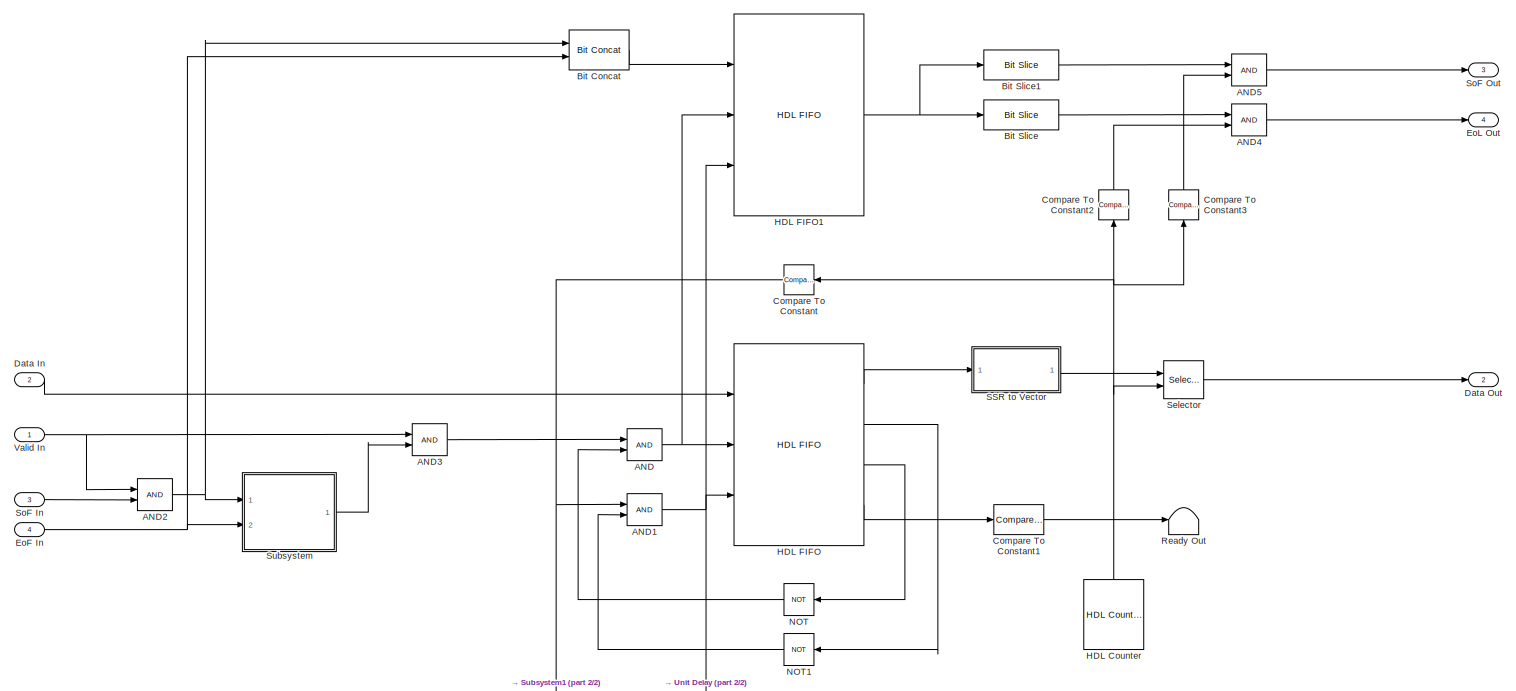
[diagram: Stimulus and Channel/SSR Subset Converter Im/SSR Deserializer - part 1/2, most of the canvas]
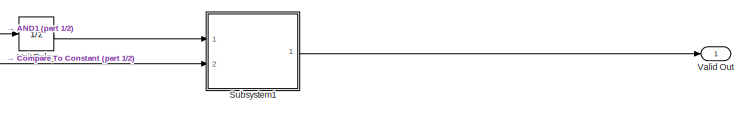
[diagram: Stimulus and Channel/SSR Subset Converter Im/SSR Deserializer - part 2/2, bottom right region]
BLOCK [SubSystem] Stimulus and Channel/SSR Subset Converter Im/SSR Deserializer
  Ports = [4, 4]
  RequestExecContextInheritance = off
BLOCK [Logic] Stimulus and Channel/SSR Subset Converter Im/SSR Deserializer/AND
  AllPortsSameDT = off
  IconShape = distinctive
  OutDataTypeStr = boolean
  Ports = [2, 1]
BLOCK [Logic] Stimulus and Channel/SSR Subset Converter Im/SSR Deserializer/AND1
  AllPortsSameDT = off
  IconShape = distinctive
  OutDataTypeStr = boolean
  Ports = [2, 1]
BLOCK [Logic] Stimulus and Channel/SSR Subset Converter Im/SSR Deserializer/AND2
  AllPortsSameDT = off
  IconShape = distinctive
  OutDataTypeStr = boolean
  Ports = [2, 1]
BLOCK [Logic] Stimulus and Channel/SSR Subset Converter Im/SSR Deserializer/AND3
  AllPortsSameDT = off
  IconShape = distinctive
  OutDataTypeStr = boolean
  Ports = [2, 1]
BLOCK [Logic] Stimulus and Channel/SSR Subset Converter Im/SSR Deserializer/AND4
  AllPortsSameDT = off
  IconShape = distinctive
  OutDataTypeStr = boolean
  Ports = [2, 1]
BLOCK [Logic] Stimulus and Channel/SSR Subset Converter Im/SSR Deserializer/AND5
  AllPortsSameDT = off
  IconShape = distinctive
  OutDataTypeStr = boolean
  Ports = [2, 1]
BLOCK [Reference] Stimulus and Channel/SSR Subset Converter Im/SSR Deserializer/Bit Concat  REF=hdlsllib/Logic and Bit
Operations/Bit Concat
  Ports = [2, 1]
  SourceBlock = hdlsllib/Logic and Bit\nOperations/Bit Concat
  SourceProductBaseCode = SL
  SourceType = Bit Concat
BLOCK [Reference] Stimulus and Channel/SSR Subset Converter Im/SSR Deserializer/Bit Slice  REF=hdlsllib/Logic and Bit
Operations/Bit Slice
  Ports = [1, 1]
  SourceBlock = hdlsllib/Logic and Bit\nOperations/Bit Slice
  SourceProductBaseCode = SL
  SourceType = Bit Slice
BLOCK [Reference] Stimulus and Channel/SSR Subset Converter Im/SSR Deserializer/Bit Slice1  REF=hdlsllib/Logic and Bit
Operations/Bit Slice
  Ports = [1, 1]
  SourceBlock = hdlsllib/Logic and Bit\nOperations/Bit Slice
  SourceProductBaseCode = SL
  SourceType = Bit Slice
BLOCK [Reference] Stimulus and Channel/SSR Subset Converter Im/SSR Deserializer/Compare To Constant  REF=simulink/Logic and Bit
Operations/Compare
To Constant
  Ports = [1, 1]
  SourceBlock = simulink/Logic and Bit\nOperations/Compare\nTo Constant
  SourceProductBaseCode = SL
  SourceType = Compare To Constant
BLOCK [Reference] Stimulus and Channel/SSR Subset Converter Im/SSR Deserializer/Compare To Constant1  REF=simulink/Logic and Bit
Operations/Compare
To Constant
  Ports = [1, 1]
  SourceBlock = simulink/Logic and Bit\nOperations/Compare\nTo Constant
  SourceProductBaseCode = SL
  SourceType = Compare To Constant
BLOCK [Reference] Stimulus and Channel/SSR Subset Converter Im/SSR Deserializer/Compare To Constant2  REF=simulink/Logic and Bit
Operations/Compare
To Constant
  NameLocation = right
  Ports = [1, 1]
  SourceBlock = simulink/Logic and Bit\nOperations/Compare\nTo Constant
  SourceProductBaseCode = SL
  SourceType = Compare To Constant
BLOCK [Reference] Stimulus and Channel/SSR Subset Converter Im/SSR Deserializer/Compare To Constant3  REF=simulink/Logic and Bit
Operations/Compare
To Constant
  NameLocation = right
  Ports = [1, 1]
  SourceBlock = simulink/Logic and Bit\nOperations/Compare\nTo Constant
  SourceProductBaseCode = SL
  SourceType = Compare To Constant
BLOCK [Inport] Stimulus and Channel/SSR Subset Converter Im/SSR Deserializer/Data In
  Port = 2
BLOCK [Outport] Stimulus and Channel/SSR Subset Converter Im/SSR Deserializer/Data Out
  Port = 2
BLOCK [Inport] Stimulus and Channel/SSR Subset Converter Im/SSR Deserializer/EoF In
  Port = 4
BLOCK [Outport] Stimulus and Channel/SSR Subset Converter Im/SSR Deserializer/EoL Out
  Port = 4
BLOCK [Reference] Stimulus and Channel/SSR Subset Converter Im/SSR Deserializer/HDL Counter  REF=hdlsllib/Sources/HDL Counter
  NameLocation = right
  Ports = [0, 1]
  SourceBlock = hdlsllib/Sources/HDL Counter
  SourceProductBaseCode = SL
  SourceType = HDL Counter
BLOCK [Reference] Stimulus and Channel/SSR Subset Converter Im/SSR Deserializer/HDL FIFO  REF=hdlsllib/HDL RAMs/HDL FIFO
  Ports = [3, 4]
  SourceBlock = hdlsllib/HDL RAMs/HDL FIFO
  SourceProductBaseCode = SL
  SourceType = HDL_FIFO
BLOCK [Reference] Stimulus and Channel/SSR Subset Converter Im/SSR Deserializer/HDL FIFO1  REF=hdlsllib/HDL RAMs/HDL FIFO
  Ports = [3, 1]
  SourceBlock = hdlsllib/HDL RAMs/HDL FIFO
  SourceProductBaseCode = SL
  SourceType = HDL_FIFO
BLOCK [Logic] Stimulus and Channel/SSR Subset Converter Im/SSR Deserializer/NOT
  AllPortsSameDT = off
  IconShape = distinctive
  Operator = NOT
  OutDataTypeStr = boolean
  Ports = [1, 1]
BLOCK [Logic] Stimulus and Channel/SSR Subset Converter Im/SSR Deserializer/NOT1
  AllPortsSameDT = off
  IconShape = distinctive
  Operator = NOT
  OutDataTypeStr = boolean
  Ports = [1, 1]
BLOCK [Terminator] Stimulus and Channel/SSR Subset Converter Im/SSR Deserializer/Ready Out
BLOCK [SubSystem] Stimulus and Channel/SSR Subset Converter Im/SSR Deserializer/SSR to Vector
  Ports = [1, 1]
  RequestExecContextInheritance = off
BLOCK [Reference] Stimulus and Channel/SSR Subset Converter Im/SSR Deserializer/SSR to Vector/Bit Slice0  REF=hdlsllib/Logic and Bit
Operations/Bit Slice
  Ports = [1, 1]
  SourceBlock = hdlsllib/Logic and Bit\nOperations/Bit Slice
  SourceProductBaseCode = SL
  SourceType = Bit Slice
BLOCK [Reference] Stimulus and Channel/SSR Subset Converter Im/SSR Deserializer/SSR to Vector/Bit Slice1  REF=hdlsllib/Logic and Bit
Operations/Bit Slice
  Ports = [1, 1]
  SourceBlock = hdlsllib/Logic and Bit\nOperations/Bit Slice
  SourceProductBaseCode = SL
  SourceType = Bit Slice
BLOCK [Reference] Stimulus and Channel/SSR Subset Converter Im/SSR Deserializer/SSR to Vector/Bit Slice2  REF=hdlsllib/Logic and Bit
Operations/Bit Slice
  Ports = [1, 1]
  SourceBlock = hdlsllib/Logic and Bit\nOperations/Bit Slice
  SourceProductBaseCode = SL
  SourceType = Bit Slice
BLOCK [Reference] Stimulus and Channel/SSR Subset Converter Im/SSR Deserializer/SSR to Vector/Bit Slice3  REF=hdlsllib/Logic and Bit
Operations/Bit Slice
  Ports = [1, 1]
  SourceBlock = hdlsllib/Logic and Bit\nOperations/Bit Slice
  SourceProductBaseCode = SL
  SourceType = Bit Slice
BLOCK [Reference] Stimulus and Channel/SSR Subset Converter Im/SSR Deserializer/SSR to Vector/Bit Slice4  REF=hdlsllib/Logic and Bit
Operations/Bit Slice
  Ports = [1, 1]
  SourceBlock = hdlsllib/Logic and Bit\nOperations/Bit Slice
  SourceProductBaseCode = SL
  SourceType = Bit Slice
BLOCK [Reference] Stimulus and Channel/SSR Subset Converter Im/SSR Deserializer/SSR to Vector/Bit Slice5  REF=hdlsllib/Logic and Bit
Operations/Bit Slice
  Ports = [1, 1]
  SourceBlock = hdlsllib/Logic and Bit\nOperations/Bit Slice
  SourceProductBaseCode = SL
  SourceType = Bit Slice
BLOCK [Reference] Stimulus and Channel/SSR Subset Converter Im/SSR Deserializer/SSR to Vector/Bit Slice6  REF=hdlsllib/Logic and Bit
Operations/Bit Slice
  Ports = [1, 1]
  SourceBlock = hdlsllib/Logic and Bit\nOperations/Bit Slice
  SourceProductBaseCode = SL
  SourceType = Bit Slice
BLOCK [Reference] Stimulus and Channel/SSR Subset Converter Im/SSR Deserializer/SSR to Vector/Bit Slice7  REF=hdlsllib/Logic and Bit
Operations/Bit Slice
  Ports = [1, 1]
  SourceBlock = hdlsllib/Logic and Bit\nOperations/Bit Slice
  SourceProductBaseCode = SL
  SourceType = Bit Slice
BLOCK [Concatenate] Stimulus and Channel/SSR Subset Converter Im/SSR Deserializer/SSR to Vector/Matrix Concatenate
  ConcatenateDimension = 2
  NumInputs = 8
  Ports = [8, 1]
BLOCK [Inport] Stimulus and Channel/SSR Subset Converter Im/SSR Deserializer/SSR to Vector/SSR
BLOCK [Outport] Stimulus and Channel/SSR Subset Converter Im/SSR Deserializer/SSR to Vector/Vector
BLOCK [Selector] Stimulus and Channel/SSR Subset Converter Im/SSR Deserializer/Selector
  IndexMode = Zero-based
  IndexOptions = Index vector (port)
  Indices = [1 3]
  InputPortWidth = 8
  OutputSizes = 1
  Ports = [2, 1]
BLOCK [Inport] Stimulus and Channel/SSR Subset Converter Im/SSR Deserializer/SoF In
  Port = 3
BLOCK [Outport] Stimulus and Channel/SSR Subset Converter Im/SSR Deserializer/SoF Out
  Port = 3
BLOCK [SubSystem] Stimulus and Channel/SSR Subset Converter Im/SSR Deserializer/Subsystem
  Ports = [2, 1]
  RequestExecContextInheritance = off
BLOCK [Constant] Stimulus and Channel/SSR Subset Converter Im/SSR Deserializer/Subsystem/Constant
  OutDataTypeStr = boolean
  SampleTime = -1
BLOCK [Outport] Stimulus and Channel/SSR Subset Converter Im/SSR Deserializer/Subsystem/Latch
BLOCK [MultiPortSwitch] Stimulus and Channel/SSR Subset Converter Im/SSR Deserializer/Subsystem/Multiport Switch
  DataPortOrder = Zero-based contiguous
  InputSameDT = off
  Inputs = 2
  Ports = [3, 1]
  SaturateOnIntegerOverflow = off
  zeroidx = on
BLOCK [Inport] Stimulus and Channel/SSR Subset Converter Im/SSR Deserializer/Subsystem/Reset
  Port = 2
BLOCK [Inport] Stimulus and Channel/SSR Subset Converter Im/SSR Deserializer/Subsystem/Set
BLOCK [Reference] Stimulus and Channel/SSR Subset Converter Im/SSR Deserializer/Subsystem/Unit Delay Resettable Synchronous  REF=hdlsllib/Discrete/Unit Delay Resettable
Synchronous
  Ports = [2, 1]
  SourceBlock = hdlsllib/Discrete/Unit Delay Resettable\nSynchronous
  SourceProductBaseCode = SL
  SourceType = Unit Delay Resettable Synchronous
BLOCK [SubSystem] Stimulus and Channel/SSR Subset Converter Im/SSR Deserializer/Subsystem1
  Ports = [2, 1]
  RequestExecContextInheritance = off
BLOCK [Constant] Stimulus and Channel/SSR Subset Converter Im/SSR Deserializer/Subsystem1/Constant
  OutDataTypeStr = boolean
  SampleTime = -1
BLOCK [Outport] Stimulus and Channel/SSR Subset Converter Im/SSR Deserializer/Subsystem1/Latch
BLOCK [MultiPortSwitch] Stimulus and Channel/SSR Subset Converter Im/SSR Deserializer/Subsystem1/Multiport Switch
  DataPortOrder = Zero-based contiguous
  InputSameDT = off
  Inputs = 2
  Ports = [3, 1]
  SaturateOnIntegerOverflow = off
  zeroidx = on
BLOCK [Inport] Stimulus and Channel/SSR Subset Converter Im/SSR Deserializer/Subsystem1/Reset
  Port = 2
BLOCK [Inport] Stimulus and Channel/SSR Subset Converter Im/SSR Deserializer/Subsystem1/Set
BLOCK [Reference] Stimulus and Channel/SSR Subset Converter Im/SSR Deserializer/Subsystem1/Unit Delay Resettable Synchronous  REF=hdlsllib/Discrete/Unit Delay Resettable
Synchronous
  Ports = [2, 1]
  SourceBlock = hdlsllib/Discrete/Unit Delay Resettable\nSynchronous
  SourceProductBaseCode = SL
  SourceType = Unit Delay Resettable Synchronous
BLOCK [UnitDelay] Stimulus and Channel/SSR Subset Converter Im/SSR Deserializer/Unit Delay
  HasFrameUpgradeWarning = on
  SampleTime = -1
BLOCK [Inport] Stimulus and Channel/SSR Subset Converter Im/SSR Deserializer/Valid In
BLOCK [Outport] Stimulus and Channel/SSR Subset Converter Im/SSR Deserializer/Valid Out
BLOCK [Inport] Stimulus and Channel/SSR Subset Converter Im/SSR Mode
  Port = 2
BLOCK [SubSystem] Stimulus and Channel/SSR Subset Converter Im/SSR Packet Generator
  PortSchema = {"entries":[{"content":{"sides":[{"content":{"connectorIds":["In1","In2","In3"]},"type":"ConnectorPlacement.EquallySpacedRectSide","uuid":"a59bbe9b-b017-421a-b59e-ccf8f0be8c6c"},{"content":{"connectorIds":["Out1","Out2","Out3","Out4"],"side":"RIGHT"},"type":"ConnectorPlacement.EquallySpacedRectSide","uuid":"db28a192-666b-40ba-a3e6-dc552d532719"},{"content":{"connectorIds":["In4"],"side":"TOP"},"ty...<+280ch>
  Ports = [4, 4]
  RequestExecContextInheritance = off
BLOCK [Inport] Stimulus and Channel/SSR Subset Converter Im/SSR Packet Generator/Data In
  Port = 3
BLOCK [Outport] Stimulus and Channel/SSR Subset Converter Im/SSR Packet Generator/Data Out
  Port = 2
BLOCK [Outport] Stimulus and Channel/SSR Subset Converter Im/SSR Packet Generator/EoF Out
  Port = 4
BLOCK [Inport] Stimulus and Channel/SSR Subset Converter Im/SSR Packet Generator/Frame Drop
BLOCK [SubSystem] Stimulus and Channel/SSR Subset Converter Im/SSR Packet Generator/Frame Dropper
  PortSchema = {"entries":[{"content":{"sides":[{"content":{"connectorIds":["In1","In2","In3","In4"]},"type":"ConnectorPlacement.EquallySpacedRectSide","uuid":"54c30b66-c84f-403b-ae2b-65cc6aec53ae"},{"content":{"connectorIds":["Out1","Out2","Out3","Out4"],"side":"RIGHT"},"type":"ConnectorPlacement.EquallySpacedRectSide","uuid":"7fa28ff6-8fce-4ceb-b755-50de3dfb11ba"},{"content":{"connectorIds":["In5"],"side":"TOP...<+286ch>
  Ports = [5, 4]
  RequestExecContextInheritance = off
BLOCK [Logic] Stimulus and Channel/SSR Subset Converter Im/SSR Packet Generator/Frame Dropper/AND
  AllPortsSameDT = off
  IconShape = distinctive
  OutDataTypeStr = boolean
  Ports = [2, 1]
BLOCK [Logic] Stimulus and Channel/SSR Subset Converter Im/SSR Packet Generator/Frame Dropper/AND1
  AllPortsSameDT = off
  IconShape = distinctive
  OutDataTypeStr = boolean
  Ports = [2, 1]
BLOCK [Logic] Stimulus and Channel/SSR Subset Converter Im/SSR Packet Generator/Frame Dropper/AND2
  AllPortsSameDT = off
  IconShape = distinctive
  OutDataTypeStr = boolean
  Ports = [2, 1]
BLOCK [Reference] Stimulus and Channel/SSR Subset Converter Im/SSR Packet Generator/Frame Dropper/Compare To Zero  REF=simulink/Logic and Bit
Operations/Compare
To Zero
  Ports = [1, 1]
  SourceBlock = simulink/Logic and Bit\nOperations/Compare\nTo Zero
  SourceProductBaseCode = SL
  SourceType = Compare To Zero
BLOCK [Constant] Stimulus and Channel/SSR Subset Converter Im/SSR Packet Generator/Frame Dropper/Constant
  OutDataTypeStr = fixdt(0,4,0)
  SampleTime = -1
  Value = 0
BLOCK [Constant] Stimulus and Channel/SSR Subset Converter Im/SSR Packet Generator/Frame Dropper/Constant1
  OutDataTypeStr = fixdt(0,4,0)
  SampleTime = -1
BLOCK [Inport] Stimulus and Channel/SSR Subset Converter Im/SSR Packet Generator/Frame Dropper/Data In
  Port = 2
BLOCK [Outport] Stimulus and Channel/SSR Subset Converter Im/SSR Packet Generator/Frame Dropper/Data Out
  Port = 2
BLOCK [Inport] Stimulus and Channel/SSR Subset Converter Im/SSR Packet Generator/Frame Dropper/EoF In
  Port = 4
BLOCK [Outport] Stimulus and Channel/SSR Subset Converter Im/SSR Packet Generator/Frame Dropper/EoF Out
  Port = 4
BLOCK [Inport] Stimulus and Channel/SSR Subset Converter Im/SSR Packet Generator/Frame Dropper/Frame Drop
  Port = 5
BLOCK [Reference] Stimulus and Channel/SSR Subset Converter Im/SSR Packet Generator/Frame Dropper/HDL Counter  REF=hdlsllib/Sources/HDL Counter
  Ports = [2, 1]
  SourceBlock = hdlsllib/Sources/HDL Counter
  SourceProductBaseCode = SL
  SourceType = HDL Counter
BLOCK [MultiPortSwitch] Stimulus and Channel/SSR Subset Converter Im/SSR Packet Generator/Frame Dropper/Multiport Switch
  DataPortOrder = Zero-based contiguous
  InputSameDT = off
  Inputs = 2
  Ports = [3, 1]
  SaturateOnIntegerOverflow = off
  zeroidx = on
BLOCK [RelationalOperator] Stimulus and Channel/SSR Subset Converter Im/SSR Packet Generator/Frame Dropper/Relational Operator
  InputSameDT = off
  Operator = <=
  OutDataTypeStr = boolean
  Ports = [2, 1]
  RndMeth = Simplest
BLOCK [ArithShift] Stimulus and Channel/SSR Subset Converter Im/SSR Packet Generator/Frame Dropper/Shift Arithmetic
  BitShiftDirection = Left
  BitShiftNumber = 8
  BitShiftNumberSource = Input port
  InputPortMap = u0,p1
  Ports = [2, 1]
BLOCK [Inport] Stimulus and Channel/SSR Subset Converter Im/SSR Packet Generator/Frame Dropper/SoF In
  Port = 3
BLOCK [Outport] Stimulus and Channel/SSR Subset Converter Im/SSR Packet Generator/Frame Dropper/SoF Out
  Port = 3
BLOCK [Inport] Stimulus and Channel/SSR Subset Converter Im/SSR Packet Generator/Frame Dropper/Valid In
BLOCK [Outport] Stimulus and Channel/SSR Subset Converter Im/SSR Packet Generator/Frame Dropper/Valid Out
BLOCK [Inport] Stimulus and Channel/SSR Subset Converter Im/SSR Packet Generator/Packet Size
  Port = 4
BLOCK [Outport] Stimulus and Channel/SSR Subset Converter Im/SSR Packet Generator/SoF Out
  Port = 3
BLOCK [SubSystem] Stimulus and Channel/SSR Subset Converter Im/SSR Packet Generator/TLAST Generator
  Ports = [3, 4]
  RequestExecContextInheritance = off
BLOCK [Logic] Stimulus and Channel/SSR Subset Converter Im/SSR Packet Generator/TLAST Generator/AND
  AllPortsSameDT = off
  IconShape = distinctive
  Inputs = 3
  OutDataTypeStr = boolean
  Ports = [3, 1]
BLOCK [Logic] Stimulus and Channel/SSR Subset Converter Im/SSR Packet Generator/TLAST Generator/AND1
  AllPortsSameDT = off
  IconShape = distinctive
  Inputs = 3
  OutDataTypeStr = boolean
  Ports = [3, 1]
BLOCK [Logic] Stimulus and Channel/SSR Subset Converter Im/SSR Packet Generator/TLAST Generator/AND2
  AllPortsSameDT = off
  IconShape = distinctive
  OutDataTypeStr = boolean
  Ports = [2, 1]
BLOCK [Reference] Stimulus and Channel/SSR Subset Converter Im/SSR Packet Generator/TLAST Generator/Compare To Constant  REF=simulink/Logic and Bit
Operations/Compare
To Constant
  Ports = [1, 1]
  SourceBlock = simulink/Logic and Bit\nOperations/Compare\nTo Constant
  SourceProductBaseCode = SL
  SourceType = Compare To Constant
BLOCK [Reference] Stimulus and Channel/SSR Subset Converter Im/SSR Packet Generator/TLAST Generator/Compare To Zero  REF=simulink/Logic and Bit
Operations/Compare
To Zero
  Ports = [1, 1]
  SourceBlock = simulink/Logic and Bit\nOperations/Compare\nTo Zero
  SourceProductBaseCode = SL
  SourceType = Compare To Zero
BLOCK [Inport] Stimulus and Channel/SSR Subset Converter Im/SSR Packet Generator/TLAST Generator/Data In
  Port = 2
BLOCK [Outport] Stimulus and Channel/SSR Subset Converter Im/SSR Packet Generator/TLAST Generator/Data Out
  Port = 2
BLOCK [Outport] Stimulus and Channel/SSR Subset Converter Im/SSR Packet Generator/TLAST Generator/EoF Out
  Port = 4
BLOCK [Reference] Stimulus and Channel/SSR Subset Converter Im/SSR Packet Generator/TLAST Generator/HDL Counter  REF=hdlsllib/Sources/HDL Counter
  Ports = [2, 1]
  SourceBlock = hdlsllib/Sources/HDL Counter
  SourceProductBaseCode = SL
  SourceType = HDL Counter
BLOCK [Inport] Stimulus and Channel/SSR Subset Converter Im/SSR Packet Generator/TLAST Generator/Packet Size
  Port = 3
BLOCK [RelationalOperator] Stimulus and Channel/SSR Subset Converter Im/SSR Packet Generator/TLAST Generator/Relational Operator
  InputSameDT = off
  Operator = <=
  OutDataTypeStr = boolean
  Ports = [2, 1]
  RndMeth = Simplest
BLOCK [Outport] Stimulus and Channel/SSR Subset Converter Im/SSR Packet Generator/TLAST Generator/SoF Out
  Port = 3
BLOCK [Reference] Stimulus and Channel/SSR Subset Converter Im/SSR Packet Generator/TLAST Generator/Unit Delay Enabled Synchronous  REF=hdlsllib/Discrete/Unit Delay Enabled
Synchronous
  Ports = [2, 1]
  SourceBlock = hdlsllib/Discrete/Unit Delay Enabled\nSynchronous
  SourceProductBaseCode = SL
  SourceType = Unit Delay Enabled Synchronous
BLOCK [Inport] Stimulus and Channel/SSR Subset Converter Im/SSR Packet Generator/TLAST Generator/Valid In
BLOCK [Outport] Stimulus and Channel/SSR Subset Converter Im/SSR Packet Generator/TLAST Generator/Valid Out
BLOCK [Inport] Stimulus and Channel/SSR Subset Converter Im/SSR Packet Generator/Valid In
  Port = 2
BLOCK [Outport] Stimulus and Channel/SSR Subset Converter Im/SSR Packet Generator/Valid Out
BLOCK [SubSystem] Stimulus and Channel/SSR Subset Converter Im/SSR Serializer
  Ports = [3, 2]
  RequestExecContextInheritance = off
BLOCK [Logic] Stimulus and Channel/SSR Subset Converter Im/SSR Serializer/AND
  AllPortsSameDT = off
  IconShape = distinctive
  OutDataTypeStr = boolean
  Ports = [2, 1]
BLOCK [Reference] Stimulus and Channel/SSR Subset Converter Im/SSR Serializer/Bit Slice  REF=hdlsllib/Logic and Bit
Operations/Bit Slice
  Ports = [1, 1]
  SourceBlock = hdlsllib/Logic and Bit\nOperations/Bit Slice
  SourceProductBaseCode = SL
  SourceType = Bit Slice
BLOCK [Reference] Stimulus and Channel/SSR Subset Converter Im/SSR Serializer/Bit Slice1  REF=hdlsllib/Logic and Bit
Operations/Bit Slice
  Ports = [1, 1]
  SourceBlock = hdlsllib/Logic and Bit\nOperations/Bit Slice
  SourceProductBaseCode = SL
  SourceType = Bit Slice
BLOCK [Inport] Stimulus and Channel/SSR Subset Converter Im/SSR Serializer/Data In
  Port = 3
BLOCK [Outport] Stimulus and Channel/SSR Subset Converter Im/SSR Serializer/Data Out
  Port = 2
BLOCK [Reference] Stimulus and Channel/SSR Subset Converter Im/SSR Serializer/HDL Counter  REF=hdlsllib/Sources/HDL Counter
  Ports = [1, 1]
  SourceBlock = hdlsllib/Sources/HDL Counter
  SourceProductBaseCode = SL
  SourceType = HDL Counter
BLOCK [MultiPortSwitch] Stimulus and Channel/SSR Subset Converter Im/SSR Serializer/Multiport Switch
  DataPortOrder = Zero-based contiguous
  InputSameDT = off
  Inputs = 4
  Ports = [5, 1]
  SaturateOnIntegerOverflow = off
  zeroidx = on
BLOCK [MultiPortSwitch] Stimulus and Channel/SSR Subset Converter Im/SSR Serializer/Multiport Switch1
  DataPortOrder = Zero-based contiguous
  InputSameDT = off
  Inputs = 4
  Ports = [5, 1]
  SaturateOnIntegerOverflow = off
  zeroidx = on
BLOCK [Inport] Stimulus and Channel/SSR Subset Converter Im/SSR Serializer/SSR Control
BLOCK [SubSystem] Stimulus and Channel/SSR Subset Converter Im/SSR Serializer/SSR to Vector
  Ports = [1, 1]
  RequestExecContextInheritance = off
BLOCK [Reference] Stimulus and Channel/SSR Subset Converter Im/SSR Serializer/SSR to Vector/Bit Slice0  REF=hdlsllib/Logic and Bit
Operations/Bit Slice
  Ports = [1, 1]
  SourceBlock = hdlsllib/Logic and Bit\nOperations/Bit Slice
  SourceProductBaseCode = SL
  SourceType = Bit Slice
BLOCK [Reference] Stimulus and Channel/SSR Subset Converter Im/SSR Serializer/SSR to Vector/Bit Slice1  REF=hdlsllib/Logic and Bit
Operations/Bit Slice
  Ports = [1, 1]
  SourceBlock = hdlsllib/Logic and Bit\nOperations/Bit Slice
  SourceProductBaseCode = SL
  SourceType = Bit Slice
BLOCK [Reference] Stimulus and Channel/SSR Subset Converter Im/SSR Serializer/SSR to Vector/Bit Slice2  REF=hdlsllib/Logic and Bit
Operations/Bit Slice
  Ports = [1, 1]
  SourceBlock = hdlsllib/Logic and Bit\nOperations/Bit Slice
  SourceProductBaseCode = SL
  SourceType = Bit Slice
BLOCK [Reference] Stimulus and Channel/SSR Subset Converter Im/SSR Serializer/SSR to Vector/Bit Slice3  REF=hdlsllib/Logic and Bit
Operations/Bit Slice
  Ports = [1, 1]
  SourceBlock = hdlsllib/Logic and Bit\nOperations/Bit Slice
  SourceProductBaseCode = SL
  SourceType = Bit Slice
BLOCK [Reference] Stimulus and Channel/SSR Subset Converter Im/SSR Serializer/SSR to Vector/Bit Slice4  REF=hdlsllib/Logic and Bit
Operations/Bit Slice
  Ports = [1, 1]
  SourceBlock = hdlsllib/Logic and Bit\nOperations/Bit Slice
  SourceProductBaseCode = SL
  SourceType = Bit Slice
BLOCK [Reference] Stimulus and Channel/SSR Subset Converter Im/SSR Serializer/SSR to Vector/Bit Slice5  REF=hdlsllib/Logic and Bit
Operations/Bit Slice
  Ports = [1, 1]
  SourceBlock = hdlsllib/Logic and Bit\nOperations/Bit Slice
  SourceProductBaseCode = SL
  SourceType = Bit Slice
BLOCK [Reference] Stimulus and Channel/SSR Subset Converter Im/SSR Serializer/SSR to Vector/Bit Slice6  REF=hdlsllib/Logic and Bit
Operations/Bit Slice
  Ports = [1, 1]
  SourceBlock = hdlsllib/Logic and Bit\nOperations/Bit Slice
  SourceProductBaseCode = SL
  SourceType = Bit Slice
BLOCK [Reference] Stimulus and Channel/SSR Subset Converter Im/SSR Serializer/SSR to Vector/Bit Slice7  REF=hdlsllib/Logic and Bit
Operations/Bit Slice
  Ports = [1, 1]
  SourceBlock = hdlsllib/Logic and Bit\nOperations/Bit Slice
  SourceProductBaseCode = SL
  SourceType = Bit Slice
BLOCK [Concatenate] Stimulus and Channel/SSR Subset Converter Im/SSR Serializer/SSR to Vector/Matrix Concatenate
  ConcatenateDimension = 2
  NumInputs = 8
  Ports = [8, 1]
BLOCK [Inport] Stimulus and Channel/SSR Subset Converter Im/SSR Serializer/SSR to Vector/SSR
BLOCK [Outport] Stimulus and Channel/SSR Subset Converter Im/SSR Serializer/SSR to Vector/Vector
BLOCK [SubSystem] Stimulus and Channel/SSR Subset Converter Im/SSR Serializer/SSR1 to SSR8
  Ports = [2, 2]
  RequestExecContextInheritance = off
BLOCK [Reference] Stimulus and Channel/SSR Subset Converter Im/SSR Serializer/SSR1 to SSR8/Compare To Constant  REF=simulink/Logic and Bit
Operations/Compare
To Constant
  Ports = [1, 1]
  SourceBlock = simulink/Logic and Bit\nOperations/Compare\nTo Constant
  SourceProductBaseCode = SL
  SourceType = Compare To Constant
BLOCK [Reference] Stimulus and Channel/SSR Subset Converter Im/SSR Serializer/SSR1 to SSR8/Compare To Constant1  REF=simulink/Logic and Bit
Operations/Compare
To Constant
  Ports = [1, 1]
  SourceBlock = simulink/Logic and Bit\nOperations/Compare\nTo Constant
  SourceProductBaseCode = SL
  SourceType = Compare To Constant
BLOCK [Reference] Stimulus and Channel/SSR Subset Converter Im/SSR Serializer/SSR1 to SSR8/Compare To Constant2  REF=simulink/Logic and Bit
Operations/Compare
To Constant
  Ports = [1, 1]
  SourceBlock = simulink/Logic and Bit\nOperations/Compare\nTo Constant
  SourceProductBaseCode = SL
  SourceType = Compare To Constant
BLOCK [Reference] Stimulus and Channel/SSR Subset Converter Im/SSR Serializer/SSR1 to SSR8/Compare To Constant3  REF=simulink/Logic and Bit
Operations/Compare
To Constant
  Ports = [1, 1]
  SourceBlock = simulink/Logic and Bit\nOperations/Compare\nTo Constant
  SourceProductBaseCode = SL
  SourceType = Compare To Constant
BLOCK [Reference] Stimulus and Channel/SSR Subset Converter Im/SSR Serializer/SSR1 to SSR8/Compare To Constant4  REF=simulink/Logic and Bit
Operations/Compare
To Constant
  Ports = [1, 1]
  SourceBlock = simulink/Logic and Bit\nOperations/Compare\nTo Constant
  SourceProductBaseCode = SL
  SourceType = Compare To Constant
BLOCK [Reference] Stimulus and Channel/SSR Subset Converter Im/SSR Serializer/SSR1 to SSR8/Compare To Constant5  REF=simulink/Logic and Bit
Operations/Compare
To Constant
  Ports = [1, 1]
  SourceBlock = simulink/Logic and Bit\nOperations/Compare\nTo Constant
  SourceProductBaseCode = SL
  SourceType = Compare To Constant
BLOCK [Reference] Stimulus and Channel/SSR Subset Converter Im/SSR Serializer/SSR1 to SSR8/Compare To Constant6  REF=simulink/Logic and Bit
Operations/Compare
To Constant
  Ports = [1, 1]
  SourceBlock = simulink/Logic and Bit\nOperations/Compare\nTo Constant
  SourceProductBaseCode = SL
  SourceType = Compare To Constant
BLOCK [Reference] Stimulus and Channel/SSR Subset Converter Im/SSR Serializer/SSR1 to SSR8/Compare To Constant7  REF=simulink/Logic and Bit
Operations/Compare
To Constant
  Ports = [1, 1]
  SourceBlock = simulink/Logic and Bit\nOperations/Compare\nTo Constant
  SourceProductBaseCode = SL
  SourceType = Compare To Constant
BLOCK [Inport] Stimulus and Channel/SSR Subset Converter Im/SSR Serializer/SSR1 to SSR8/Data In
BLOCK [Outport] Stimulus and Channel/SSR Subset Converter Im/SSR Serializer/SSR1 to SSR8/Data Out
BLOCK [Inport] Stimulus and Channel/SSR Subset Converter Im/SSR Serializer/SSR1 to SSR8/Index
  Port = 2
BLOCK [Selector] Stimulus and Channel/SSR Subset Converter Im/SSR Serializer/SSR1 to SSR8/Selector1
  IndexMode = Zero-based
  IndexOptions = Index vector (dialog)
  Indices = 0
  InputPortWidth = 8
  OutputSizes = 1
  Ports = [1, 1]
BLOCK [Selector] Stimulus and Channel/SSR Subset Converter Im/SSR Serializer/SSR1 to SSR8/Selector2
  IndexMode = Zero-based
  IndexOptions = Index vector (dialog)
  Indices = 0
  InputPortWidth = 8
  OutputSizes = 1
  Ports = [1, 1]
BLOCK [Selector] Stimulus and Channel/SSR Subset Converter Im/SSR Serializer/SSR1 to SSR8/Selector3
  IndexMode = Zero-based
  IndexOptions = Index vector (dialog)
  Indices = 0
  InputPortWidth = 8
  OutputSizes = 1
  Ports = [1, 1]
BLOCK [Selector] Stimulus and Channel/SSR Subset Converter Im/SSR Serializer/SSR1 to SSR8/Selector4
  IndexMode = Zero-based
  IndexOptions = Index vector (dialog)
  Indices = 0
  InputPortWidth = 8
  OutputSizes = 1
  Ports = [1, 1]
BLOCK [Selector] Stimulus and Channel/SSR Subset Converter Im/SSR Serializer/SSR1 to SSR8/Selector5
  IndexMode = Zero-based
  IndexOptions = Index vector (dialog)
  Indices = 0
  InputPortWidth = 8
  OutputSizes = 1
  Ports = [1, 1]
BLOCK [Selector] Stimulus and Channel/SSR Subset Converter Im/SSR Serializer/SSR1 to SSR8/Selector6
  IndexMode = Zero-based
  IndexOptions = Index vector (dialog)
  Indices = 0
  InputPortWidth = 8
  OutputSizes = 1
  Ports = [1, 1]
BLOCK [Selector] Stimulus and Channel/SSR Subset Converter Im/SSR Serializer/SSR1 to SSR8/Selector7
  IndexMode = Zero-based
  IndexOptions = Index vector (dialog)
  Indices = 0
  InputPortWidth = 8
  OutputSizes = 1
  Ports = [1, 1]
BLOCK [Selector] Stimulus and Channel/SSR Subset Converter Im/SSR Serializer/SSR1 to SSR8/Selector8
  IndexMode = Zero-based
  IndexOptions = Index vector (dialog)
  Indices = 0
  InputPortWidth = 8
  OutputSizes = 1
  Ports = [1, 1]
BLOCK [UnitDelay] Stimulus and Channel/SSR Subset Converter Im/SSR Serializer/SSR1 to SSR8/Unit Delay
  HasFrameUpgradeWarning = on
  SampleTime = -1
BLOCK [Reference] Stimulus and Channel/SSR Subset Converter Im/SSR Serializer/SSR1 to SSR8/Unit Delay Enabled Synchronous  REF=hdlsllib/Discrete/Unit Delay Enabled
Synchronous
  Ports = [2, 1]
  SourceBlock = hdlsllib/Discrete/Unit Delay Enabled\nSynchronous
  SourceProductBaseCode = SL
  SourceType = Unit Delay Enabled Synchronous
BLOCK [Reference] Stimulus and Channel/SSR Subset Converter Im/SSR Serializer/SSR1 to SSR8/Unit Delay Enabled Synchronous1  REF=hdlsllib/Discrete/Unit Delay Enabled
Synchronous
  Ports = [2, 1]
  SourceBlock = hdlsllib/Discrete/Unit Delay Enabled\nSynchronous
  SourceProductBaseCode = SL
  SourceType = Unit Delay Enabled Synchronous
BLOCK [Reference] Stimulus and Channel/SSR Subset Converter Im/SSR Serializer/SSR1 to SSR8/Unit Delay Enabled Synchronous2  REF=hdlsllib/Discrete/Unit Delay Enabled
Synchronous
  Ports = [2, 1]
  SourceBlock = hdlsllib/Discrete/Unit Delay Enabled\nSynchronous
  SourceProductBaseCode = SL
  SourceType = Unit Delay Enabled Synchronous
BLOCK [Reference] Stimulus and Channel/SSR Subset Converter Im/SSR Serializer/SSR1 to SSR8/Unit Delay Enabled Synchronous3  REF=hdlsllib/Discrete/Unit Delay Enabled
Synchronous
  Ports = [2, 1]
  SourceBlock = hdlsllib/Discrete/Unit Delay Enabled\nSynchronous
  SourceProductBaseCode = SL
  SourceType = Unit Delay Enabled Synchronous
BLOCK [Reference] Stimulus and Channel/SSR Subset Converter Im/SSR Serializer/SSR1 to SSR8/Unit Delay Enabled Synchronous4  REF=hdlsllib/Discrete/Unit Delay Enabled
Synchronous
  Ports = [2, 1]
  SourceBlock = hdlsllib/Discrete/Unit Delay Enabled\nSynchronous
  SourceProductBaseCode = SL
  SourceType = Unit Delay Enabled Synchronous
BLOCK [Reference] Stimulus and Channel/SSR Subset Converter Im/SSR Serializer/SSR1 to SSR8/Unit Delay Enabled Synchronous5  REF=hdlsllib/Discrete/Unit Delay Enabled
Synchronous
  Ports = [2, 1]
  SourceBlock = hdlsllib/Discrete/Unit Delay Enabled\nSynchronous
  SourceProductBaseCode = SL
  SourceType = Unit Delay Enabled Synchronous
BLOCK [Reference] Stimulus and Channel/SSR Subset Converter Im/SSR Serializer/SSR1 to SSR8/Unit Delay Enabled Synchronous6  REF=hdlsllib/Discrete/Unit Delay Enabled
Synchronous
  Ports = [2, 1]
  SourceBlock = hdlsllib/Discrete/Unit Delay Enabled\nSynchronous
  SourceProductBaseCode = SL
  SourceType = Unit Delay Enabled Synchronous
BLOCK [Reference] Stimulus and Channel/SSR Subset Converter Im/SSR Serializer/SSR1 to SSR8/Unit Delay Enabled Synchronous7  REF=hdlsllib/Discrete/Unit Delay Enabled
Synchronous
  Ports = [2, 1]
  SourceBlock = hdlsllib/Discrete/Unit Delay Enabled\nSynchronous
  SourceProductBaseCode = SL
  SourceType = Unit Delay Enabled Synchronous
BLOCK [Outport] Stimulus and Channel/SSR Subset Converter Im/SSR Serializer/SSR1 to SSR8/Valid Out
  Port = 2
BLOCK [Concatenate] Stimulus and Channel/SSR Subset Converter Im/SSR Serializer/SSR1 to SSR8/Vector Concatenate
  NumInputs = 8
  Ports = [8, 1]
BLOCK [SubSystem] Stimulus and Channel/SSR Subset Converter Im/SSR Serializer/SSR2 to SSR8
  Ports = [2, 2]
  RequestExecContextInheritance = off
BLOCK [Reference] Stimulus and Channel/SSR Subset Converter Im/SSR Serializer/SSR2 to SSR8/Compare To Constant10  REF=simulink/Logic and Bit
Operations/Compare
To Constant
  Ports = [1, 1]
  SourceBlock = simulink/Logic and Bit\nOperations/Compare\nTo Constant
  SourceProductBaseCode = SL
  SourceType = Compare To Constant
BLOCK [Reference] Stimulus and Channel/SSR Subset Converter Im/SSR Serializer/SSR2 to SSR8/Compare To Constant11  REF=simulink/Logic and Bit
Operations/Compare
To Constant
  Ports = [1, 1]
  SourceBlock = simulink/Logic and Bit\nOperations/Compare\nTo Constant
  SourceProductBaseCode = SL
  SourceType = Compare To Constant
BLOCK [Reference] Stimulus and Channel/SSR Subset Converter Im/SSR Serializer/SSR2 to SSR8/Compare To Constant8  REF=simulink/Logic and Bit
Operations/Compare
To Constant
  Ports = [1, 1]
  SourceBlock = simulink/Logic and Bit\nOperations/Compare\nTo Constant
  SourceProductBaseCode = SL
  SourceType = Compare To Constant
BLOCK [Reference] Stimulus and Channel/SSR Subset Converter Im/SSR Serializer/SSR2 to SSR8/Compare To Constant9  REF=simulink/Logic and Bit
Operations/Compare
To Constant
  Ports = [1, 1]
  SourceBlock = simulink/Logic and Bit\nOperations/Compare\nTo Constant
  SourceProductBaseCode = SL
  SourceType = Compare To Constant
BLOCK [Inport] Stimulus and Channel/SSR Subset Converter Im/SSR Serializer/SSR2 to SSR8/Data In
BLOCK [Outport] Stimulus and Channel/SSR Subset Converter Im/SSR Serializer/SSR2 to SSR8/Data Out
BLOCK [Inport] Stimulus and Channel/SSR Subset Converter Im/SSR Serializer/SSR2 to SSR8/Index
  Port = 2
BLOCK [Selector] Stimulus and Channel/SSR Subset Converter Im/SSR Serializer/SSR2 to SSR8/Selector10
  IndexMode = Zero-based
  IndexOptions = Index vector (dialog)
  Indices = [0, 1]
  InputPortWidth = 8
  OutputSizes = 1
  Ports = [1, 1]
BLOCK [Selector] Stimulus and Channel/SSR Subset Converter Im/SSR Serializer/SSR2 to SSR8/Selector11
  IndexMode = Zero-based
  IndexOptions = Index vector (dialog)
  Indices = [0, 1]
  InputPortWidth = 8
  OutputSizes = 1
  Ports = [1, 1]
BLOCK [Selector] Stimulus and Channel/SSR Subset Converter Im/SSR Serializer/SSR2 to SSR8/Selector12
  IndexMode = Zero-based
  IndexOptions = Index vector (dialog)
  Indices = [0, 1]
  InputPortWidth = 8
  OutputSizes = 1
  Ports = [1, 1]
BLOCK [Selector] Stimulus and Channel/SSR Subset Converter Im/SSR Serializer/SSR2 to SSR8/Selector9
  IndexMode = Zero-based
  IndexOptions = Index vector (dialog)
  Indices = [0, 1]
  InputPortWidth = 8
  OutputSizes = 1
  Ports = [1, 1]
BLOCK [UnitDelay] Stimulus and Channel/SSR Subset Converter Im/SSR Serializer/SSR2 to SSR8/Unit Delay
  HasFrameUpgradeWarning = on
  SampleTime = -1
BLOCK [Reference] Stimulus and Channel/SSR Subset Converter Im/SSR Serializer/SSR2 to SSR8/Unit Delay Enabled Synchronous  REF=hdlsllib/Discrete/Unit Delay Enabled
Synchronous
  Ports = [2, 1]
  SourceBlock = hdlsllib/Discrete/Unit Delay Enabled\nSynchronous
  SourceProductBaseCode = SL
  SourceType = Unit Delay Enabled Synchronous
BLOCK [Reference] Stimulus and Channel/SSR Subset Converter Im/SSR Serializer/SSR2 to SSR8/Unit Delay Enabled Synchronous1  REF=hdlsllib/Discrete/Unit Delay Enabled
Synchronous
  Ports = [2, 1]
  SourceBlock = hdlsllib/Discrete/Unit Delay Enabled\nSynchronous
  SourceProductBaseCode = SL
  SourceType = Unit Delay Enabled Synchronous
BLOCK [Reference] Stimulus and Channel/SSR Subset Converter Im/SSR Serializer/SSR2 to SSR8/Unit Delay Enabled Synchronous2  REF=hdlsllib/Discrete/Unit Delay Enabled
Synchronous
  Ports = [2, 1]
  SourceBlock = hdlsllib/Discrete/Unit Delay Enabled\nSynchronous
  SourceProductBaseCode = SL
  SourceType = Unit Delay Enabled Synchronous
BLOCK [Reference] Stimulus and Channel/SSR Subset Converter Im/SSR Serializer/SSR2 to SSR8/Unit Delay Enabled Synchronous3  REF=hdlsllib/Discrete/Unit Delay Enabled
Synchronous
  Ports = [2, 1]
  SourceBlock = hdlsllib/Discrete/Unit Delay Enabled\nSynchronous
  SourceProductBaseCode = SL
  SourceType = Unit Delay Enabled Synchronous
BLOCK [Outport] Stimulus and Channel/SSR Subset Converter Im/SSR Serializer/SSR2 to SSR8/Valid Out
  Port = 2
BLOCK [Concatenate] Stimulus and Channel/SSR Subset Converter Im/SSR Serializer/SSR2 to SSR8/Vector Concatenate
  NumInputs = 4
  Ports = [4, 1]
BLOCK [SubSystem] Stimulus and Channel/SSR Subset Converter Im/SSR Serializer/SSR4 to SSR8
  Ports = [2, 2]
  RequestExecContextInheritance = off
BLOCK [Reference] Stimulus and Channel/SSR Subset Converter Im/SSR Serializer/SSR4 to SSR8/Compare To Constant12  REF=simulink/Logic and Bit
Operations/Compare
To Constant
  Ports = [1, 1]
  SourceBlock = simulink/Logic and Bit\nOperations/Compare\nTo Constant
  SourceProductBaseCode = SL
  SourceType = Compare To Constant
BLOCK [Reference] Stimulus and Channel/SSR Subset Converter Im/SSR Serializer/SSR4 to SSR8/Compare To Constant13  REF=simulink/Logic and Bit
Operations/Compare
To Constant
  Ports = [1, 1]
  SourceBlock = simulink/Logic and Bit\nOperations/Compare\nTo Constant
  SourceProductBaseCode = SL
  SourceType = Compare To Constant
BLOCK [Inport] Stimulus and Channel/SSR Subset Converter Im/SSR Serializer/SSR4 to SSR8/Data In
BLOCK [Outport] Stimulus and Channel/SSR Subset Converter Im/SSR Serializer/SSR4 to SSR8/Data Out
BLOCK [Inport] Stimulus and Channel/SSR Subset Converter Im/SSR Serializer/SSR4 to SSR8/Index
  Port = 2
BLOCK [Selector] Stimulus and Channel/SSR Subset Converter Im/SSR Serializer/SSR4 to SSR8/Selector13
  IndexMode = Zero-based
  IndexOptions = Index vector (dialog)
  Indices = [0, 1, 2, 3]
  InputPortWidth = 8
  OutputSizes = 1
  Ports = [1, 1]
BLOCK [Selector] Stimulus and Channel/SSR Subset Converter Im/SSR Serializer/SSR4 to SSR8/Selector14
  IndexMode = Zero-based
  IndexOptions = Index vector (dialog)
  Indices = [0, 1, 2, 3]
  InputPortWidth = 8
  OutputSizes = 1
  Ports = [1, 1]
BLOCK [UnitDelay] Stimulus and Channel/SSR Subset Converter Im/SSR Serializer/SSR4 to SSR8/Unit Delay
  HasFrameUpgradeWarning = on
  SampleTime = -1
BLOCK [Reference] Stimulus and Channel/SSR Subset Converter Im/SSR Serializer/SSR4 to SSR8/Unit Delay Enabled Synchronous  REF=hdlsllib/Discrete/Unit Delay Enabled
Synchronous
  Ports = [2, 1]
  SourceBlock = hdlsllib/Discrete/Unit Delay Enabled\nSynchronous
  SourceProductBaseCode = SL
  SourceType = Unit Delay Enabled Synchronous
BLOCK [Reference] Stimulus and Channel/SSR Subset Converter Im/SSR Serializer/SSR4 to SSR8/Unit Delay Enabled Synchronous1  REF=hdlsllib/Discrete/Unit Delay Enabled
Synchronous
  Ports = [2, 1]
  SourceBlock = hdlsllib/Discrete/Unit Delay Enabled\nSynchronous
  SourceProductBaseCode = SL
  SourceType = Unit Delay Enabled Synchronous
BLOCK [Outport] Stimulus and Channel/SSR Subset Converter Im/SSR Serializer/SSR4 to SSR8/Valid Out
  Port = 2
BLOCK [Concatenate] Stimulus and Channel/SSR Subset Converter Im/SSR Serializer/SSR4 to SSR8/Vector Concatenate
  Ports = [2, 1]
BLOCK [UnitDelay] Stimulus and Channel/SSR Subset Converter Im/SSR Serializer/Unit Delay
  HasFrameUpgradeWarning = on
  SampleTime = -1
BLOCK [Reference] Stimulus and Channel/SSR Subset Converter Im/SSR Serializer/Unit Delay Enabled Synchronous  REF=hdlsllib/Discrete/Unit Delay Enabled
Synchronous
  Ports = [2, 1]
  SourceBlock = hdlsllib/Discrete/Unit Delay Enabled\nSynchronous
  SourceProductBaseCode = SL
  SourceType = Unit Delay Enabled Synchronous
BLOCK [Inport] Stimulus and Channel/SSR Subset Converter Im/SSR Serializer/Valid In
  Port = 2
BLOCK [Outport] Stimulus and Channel/SSR Subset Converter Im/SSR Serializer/Valid Out
BLOCK [SubSystem] Stimulus and Channel/SSR Subset Converter Im/SSR Serializer/Vector to SSR
  Ports = [1, 1]
  RequestExecContextInheritance = off
BLOCK [Reference] Stimulus and Channel/SSR Subset Converter Im/SSR Serializer/Vector to SSR/Bit Concat  REF=hdlsllib/Logic and Bit
Operations/Bit Concat
  Ports = [8, 1]
  SourceBlock = hdlsllib/Logic and Bit\nOperations/Bit Concat
  SourceProductBaseCode = SL
  SourceType = Bit Concat
BLOCK [Outport] Stimulus and Channel/SSR Subset Converter Im/SSR Serializer/Vector to SSR/SSR
BLOCK [Selector] Stimulus and Channel/SSR Subset Converter Im/SSR Serializer/Vector to SSR/Selector0
  IndexOptions = Index vector (dialog)
  Indices = 8
  InputPortWidth = 8
  OutputSizes = 1
  Ports = [1, 1]
BLOCK [Selector] Stimulus and Channel/SSR Subset Converter Im/SSR Serializer/Vector to SSR/Selector1
  IndexOptions = Index vector (dialog)
  Indices = 7
  InputPortWidth = 8
  OutputSizes = 1
  Ports = [1, 1]
BLOCK [Selector] Stimulus and Channel/SSR Subset Converter Im/SSR Serializer/Vector to SSR/Selector2
  IndexOptions = Index vector (dialog)
  Indices = 6
  InputPortWidth = 8
  OutputSizes = 1
  Ports = [1, 1]
BLOCK [Selector] Stimulus and Channel/SSR Subset Converter Im/SSR Serializer/Vector to SSR/Selector3
  IndexOptions = Index vector (dialog)
  Indices = 5
  InputPortWidth = 8
  OutputSizes = 1
  Ports = [1, 1]
BLOCK [Selector] Stimulus and Channel/SSR Subset Converter Im/SSR Serializer/Vector to SSR/Selector4
  IndexOptions = Index vector (dialog)
  Indices = 4
  InputPortWidth = 8
  OutputSizes = 1
  Ports = [1, 1]
BLOCK [Selector] Stimulus and Channel/SSR Subset Converter Im/SSR Serializer/Vector to SSR/Selector5
  IndexOptions = Index vector (dialog)
  Indices = 3
  InputPortWidth = 8
  OutputSizes = 1
  Ports = [1, 1]
BLOCK [Selector] Stimulus and Channel/SSR Subset Converter Im/SSR Serializer/Vector to SSR/Selector6
  IndexOptions = Index vector (dialog)
  Indices = 2
  InputPortWidth = 8
  OutputSizes = 1
  Ports = [1, 1]
BLOCK [Selector] Stimulus and Channel/SSR Subset Converter Im/SSR Serializer/Vector to SSR/Selector7
  IndexOptions = Index vector (dialog)
  Indices = 1
  InputPortWidth = 8
  OutputSizes = 1
  Ports = [1, 1]
BLOCK [Inport] Stimulus and Channel/SSR Subset Converter Im/SSR Serializer/Vector to SSR/Vector
BLOCK [Outport] Stimulus and Channel/SSR Subset Converter Im/User Out
  Port = 3
BLOCK [Inport] Stimulus and Channel/SSR Subset Converter Im/Valid In
  Port = 3
BLOCK [Outport] Stimulus and Channel/SSR Subset Converter Im/Valid Out
BLOCK [SubSystem] Stimulus and Channel/SSR Subset Converter Re
  Ports = [4, 4]
  RequestExecContextInheritance = off
  TreatAsAtomicUnit = on
BLOCK [Reference] Stimulus and Channel/SSR Subset Converter Re/Bit Slice  REF=hdlsllib/Logic and Bit
Operations/Bit Slice
  Ports = [1, 1]
  SourceBlock = hdlsllib/Logic and Bit\nOperations/Bit Slice
  SourceProductBaseCode = SL
  SourceType = Bit Slice
BLOCK [Inport] Stimulus and Channel/SSR Subset Converter Re/Data In
  Port = 4
BLOCK [Outport] Stimulus and Channel/SSR Subset Converter Re/Data Out
  Port = 2
BLOCK [Outport] Stimulus and Channel/SSR Subset Converter Re/Last Out
  Port = 4
BLOCK [Inport] Stimulus and Channel/SSR Subset Converter Re/Packet Size
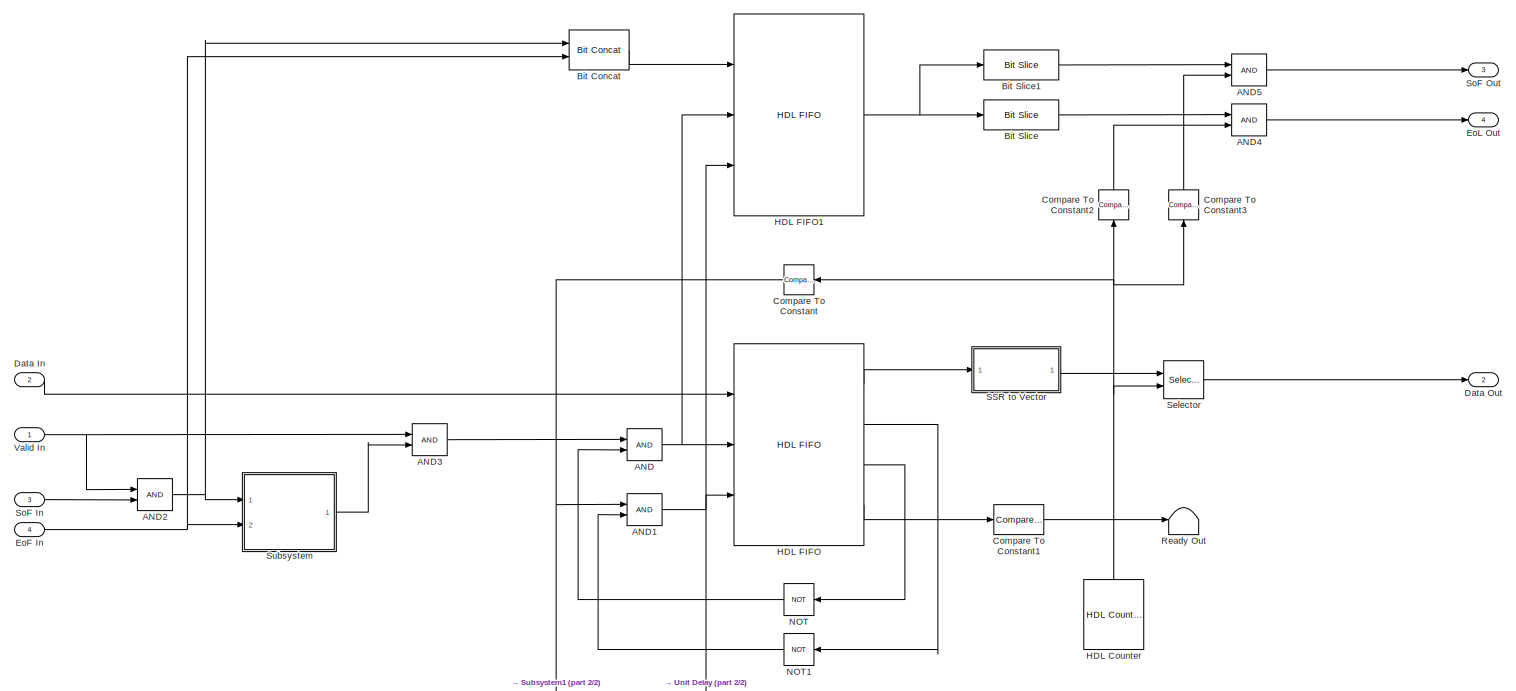
[diagram: Stimulus and Channel/SSR Subset Converter Re/SSR Deserializer - part 1/2, most of the canvas]
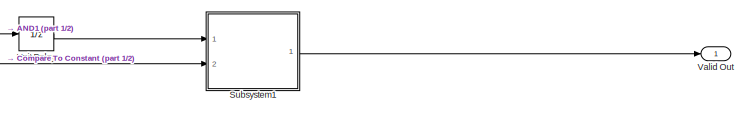
[diagram: Stimulus and Channel/SSR Subset Converter Re/SSR Deserializer - part 2/2, bottom right region]
BLOCK [SubSystem] Stimulus and Channel/SSR Subset Converter Re/SSR Deserializer
  Ports = [4, 4]
  RequestExecContextInheritance = off
BLOCK [Logic] Stimulus and Channel/SSR Subset Converter Re/SSR Deserializer/AND
  AllPortsSameDT = off
  IconShape = distinctive
  OutDataTypeStr = boolean
  Ports = [2, 1]
BLOCK [Logic] Stimulus and Channel/SSR Subset Converter Re/SSR Deserializer/AND1
  AllPortsSameDT = off
  IconShape = distinctive
  OutDataTypeStr = boolean
  Ports = [2, 1]
BLOCK [Logic] Stimulus and Channel/SSR Subset Converter Re/SSR Deserializer/AND2
  AllPortsSameDT = off
  IconShape = distinctive
  OutDataTypeStr = boolean
  Ports = [2, 1]
BLOCK [Logic] Stimulus and Channel/SSR Subset Converter Re/SSR Deserializer/AND3
  AllPortsSameDT = off
  IconShape = distinctive
  OutDataTypeStr = boolean
  Ports = [2, 1]
BLOCK [Logic] Stimulus and Channel/SSR Subset Converter Re/SSR Deserializer/AND4
  AllPortsSameDT = off
  IconShape = distinctive
  OutDataTypeStr = boolean
  Ports = [2, 1]
BLOCK [Logic] Stimulus and Channel/SSR Subset Converter Re/SSR Deserializer/AND5
  AllPortsSameDT = off
  IconShape = distinctive
  OutDataTypeStr = boolean
  Ports = [2, 1]
BLOCK [Reference] Stimulus and Channel/SSR Subset Converter Re/SSR Deserializer/Bit Concat  REF=hdlsllib/Logic and Bit
Operations/Bit Concat
  Ports = [2, 1]
  SourceBlock = hdlsllib/Logic and Bit\nOperations/Bit Concat
  SourceProductBaseCode = SL
  SourceType = Bit Concat
BLOCK [Reference] Stimulus and Channel/SSR Subset Converter Re/SSR Deserializer/Bit Slice  REF=hdlsllib/Logic and Bit
Operations/Bit Slice
  Ports = [1, 1]
  SourceBlock = hdlsllib/Logic and Bit\nOperations/Bit Slice
  SourceProductBaseCode = SL
  SourceType = Bit Slice
BLOCK [Reference] Stimulus and Channel/SSR Subset Converter Re/SSR Deserializer/Bit Slice1  REF=hdlsllib/Logic and Bit
Operations/Bit Slice
  Ports = [1, 1]
  SourceBlock = hdlsllib/Logic and Bit\nOperations/Bit Slice
  SourceProductBaseCode = SL
  SourceType = Bit Slice
BLOCK [Reference] Stimulus and Channel/SSR Subset Converter Re/SSR Deserializer/Compare To Constant  REF=simulink/Logic and Bit
Operations/Compare
To Constant
  Ports = [1, 1]
  SourceBlock = simulink/Logic and Bit\nOperations/Compare\nTo Constant
  SourceProductBaseCode = SL
  SourceType = Compare To Constant
BLOCK [Reference] Stimulus and Channel/SSR Subset Converter Re/SSR Deserializer/Compare To Constant1  REF=simulink/Logic and Bit
Operations/Compare
To Constant
  Ports = [1, 1]
  SourceBlock = simulink/Logic and Bit\nOperations/Compare\nTo Constant
  SourceProductBaseCode = SL
  SourceType = Compare To Constant
BLOCK [Reference] Stimulus and Channel/SSR Subset Converter Re/SSR Deserializer/Compare To Constant2  REF=simulink/Logic and Bit
Operations/Compare
To Constant
  NameLocation = right
  Ports = [1, 1]
  SourceBlock = simulink/Logic and Bit\nOperations/Compare\nTo Constant
  SourceProductBaseCode = SL
  SourceType = Compare To Constant
BLOCK [Reference] Stimulus and Channel/SSR Subset Converter Re/SSR Deserializer/Compare To Constant3  REF=simulink/Logic and Bit
Operations/Compare
To Constant
  NameLocation = right
  Ports = [1, 1]
  SourceBlock = simulink/Logic and Bit\nOperations/Compare\nTo Constant
  SourceProductBaseCode = SL
  SourceType = Compare To Constant
BLOCK [Inport] Stimulus and Channel/SSR Subset Converter Re/SSR Deserializer/Data In
  Port = 2
BLOCK [Outport] Stimulus and Channel/SSR Subset Converter Re/SSR Deserializer/Data Out
  Port = 2
BLOCK [Inport] Stimulus and Channel/SSR Subset Converter Re/SSR Deserializer/EoF In
  Port = 4
BLOCK [Outport] Stimulus and Channel/SSR Subset Converter Re/SSR Deserializer/EoL Out
  Port = 4
BLOCK [Reference] Stimulus and Channel/SSR Subset Converter Re/SSR Deserializer/HDL Counter  REF=hdlsllib/Sources/HDL Counter
  NameLocation = right
  Ports = [0, 1]
  SourceBlock = hdlsllib/Sources/HDL Counter
  SourceProductBaseCode = SL
  SourceType = HDL Counter
BLOCK [Reference] Stimulus and Channel/SSR Subset Converter Re/SSR Deserializer/HDL FIFO  REF=hdlsllib/HDL RAMs/HDL FIFO
  Ports = [3, 4]
  SourceBlock = hdlsllib/HDL RAMs/HDL FIFO
  SourceProductBaseCode = SL
  SourceType = HDL_FIFO
BLOCK [Reference] Stimulus and Channel/SSR Subset Converter Re/SSR Deserializer/HDL FIFO1  REF=hdlsllib/HDL RAMs/HDL FIFO
  Ports = [3, 1]
  SourceBlock = hdlsllib/HDL RAMs/HDL FIFO
  SourceProductBaseCode = SL
  SourceType = HDL_FIFO
BLOCK [Logic] Stimulus and Channel/SSR Subset Converter Re/SSR Deserializer/NOT
  AllPortsSameDT = off
  IconShape = distinctive
  Operator = NOT
  OutDataTypeStr = boolean
  Ports = [1, 1]
BLOCK [Logic] Stimulus and Channel/SSR Subset Converter Re/SSR Deserializer/NOT1
  AllPortsSameDT = off
  IconShape = distinctive
  Operator = NOT
  OutDataTypeStr = boolean
  Ports = [1, 1]
BLOCK [Terminator] Stimulus and Channel/SSR Subset Converter Re/SSR Deserializer/Ready Out
BLOCK [SubSystem] Stimulus and Channel/SSR Subset Converter Re/SSR Deserializer/SSR to Vector
  Ports = [1, 1]
  RequestExecContextInheritance = off
BLOCK [Reference] Stimulus and Channel/SSR Subset Converter Re/SSR Deserializer/SSR to Vector/Bit Slice0  REF=hdlsllib/Logic and Bit
Operations/Bit Slice
  Ports = [1, 1]
  SourceBlock = hdlsllib/Logic and Bit\nOperations/Bit Slice
  SourceProductBaseCode = SL
  SourceType = Bit Slice
BLOCK [Reference] Stimulus and Channel/SSR Subset Converter Re/SSR Deserializer/SSR to Vector/Bit Slice1  REF=hdlsllib/Logic and Bit
Operations/Bit Slice
  Ports = [1, 1]
  SourceBlock = hdlsllib/Logic and Bit\nOperations/Bit Slice
  SourceProductBaseCode = SL
  SourceType = Bit Slice
BLOCK [Reference] Stimulus and Channel/SSR Subset Converter Re/SSR Deserializer/SSR to Vector/Bit Slice2  REF=hdlsllib/Logic and Bit
Operations/Bit Slice
  Ports = [1, 1]
  SourceBlock = hdlsllib/Logic and Bit\nOperations/Bit Slice
  SourceProductBaseCode = SL
  SourceType = Bit Slice
BLOCK [Reference] Stimulus and Channel/SSR Subset Converter Re/SSR Deserializer/SSR to Vector/Bit Slice3  REF=hdlsllib/Logic and Bit
Operations/Bit Slice
  Ports = [1, 1]
  SourceBlock = hdlsllib/Logic and Bit\nOperations/Bit Slice
  SourceProductBaseCode = SL
  SourceType = Bit Slice
BLOCK [Reference] Stimulus and Channel/SSR Subset Converter Re/SSR Deserializer/SSR to Vector/Bit Slice4  REF=hdlsllib/Logic and Bit
Operations/Bit Slice
  Ports = [1, 1]
  SourceBlock = hdlsllib/Logic and Bit\nOperations/Bit Slice
  SourceProductBaseCode = SL
  SourceType = Bit Slice
BLOCK [Reference] Stimulus and Channel/SSR Subset Converter Re/SSR Deserializer/SSR to Vector/Bit Slice5  REF=hdlsllib/Logic and Bit
Operations/Bit Slice
  Ports = [1, 1]
  SourceBlock = hdlsllib/Logic and Bit\nOperations/Bit Slice
  SourceProductBaseCode = SL
  SourceType = Bit Slice
BLOCK [Reference] Stimulus and Channel/SSR Subset Converter Re/SSR Deserializer/SSR to Vector/Bit Slice6  REF=hdlsllib/Logic and Bit
Operations/Bit Slice
  Ports = [1, 1]
  SourceBlock = hdlsllib/Logic and Bit\nOperations/Bit Slice
  SourceProductBaseCode = SL
  SourceType = Bit Slice
BLOCK [Reference] Stimulus and Channel/SSR Subset Converter Re/SSR Deserializer/SSR to Vector/Bit Slice7  REF=hdlsllib/Logic and Bit
Operations/Bit Slice
  Ports = [1, 1]
  SourceBlock = hdlsllib/Logic and Bit\nOperations/Bit Slice
  SourceProductBaseCode = SL
  SourceType = Bit Slice
BLOCK [Concatenate] Stimulus and Channel/SSR Subset Converter Re/SSR Deserializer/SSR to Vector/Matrix Concatenate
  ConcatenateDimension = 2
  NumInputs = 8
  Ports = [8, 1]
BLOCK [Inport] Stimulus and Channel/SSR Subset Converter Re/SSR Deserializer/SSR to Vector/SSR
BLOCK [Outport] Stimulus and Channel/SSR Subset Converter Re/SSR Deserializer/SSR to Vector/Vector
BLOCK [Selector] Stimulus and Channel/SSR Subset Converter Re/SSR Deserializer/Selector
  IndexMode = Zero-based
  IndexOptions = Index vector (port)
  Indices = [1 3]
  InputPortWidth = 8
  OutputSizes = 1
  Ports = [2, 1]
BLOCK [Inport] Stimulus and Channel/SSR Subset Converter Re/SSR Deserializer/SoF In
  Port = 3
BLOCK [Outport] Stimulus and Channel/SSR Subset Converter Re/SSR Deserializer/SoF Out
  Port = 3
BLOCK [SubSystem] Stimulus and Channel/SSR Subset Converter Re/SSR Deserializer/Subsystem
  Ports = [2, 1]
  RequestExecContextInheritance = off
BLOCK [Constant] Stimulus and Channel/SSR Subset Converter Re/SSR Deserializer/Subsystem/Constant
  OutDataTypeStr = boolean
  SampleTime = -1
BLOCK [Outport] Stimulus and Channel/SSR Subset Converter Re/SSR Deserializer/Subsystem/Latch
BLOCK [MultiPortSwitch] Stimulus and Channel/SSR Subset Converter Re/SSR Deserializer/Subsystem/Multiport Switch
  DataPortOrder = Zero-based contiguous
  InputSameDT = off
  Inputs = 2
  Ports = [3, 1]
  SaturateOnIntegerOverflow = off
  zeroidx = on
BLOCK [Inport] Stimulus and Channel/SSR Subset Converter Re/SSR Deserializer/Subsystem/Reset
  Port = 2
BLOCK [Inport] Stimulus and Channel/SSR Subset Converter Re/SSR Deserializer/Subsystem/Set
BLOCK [Reference] Stimulus and Channel/SSR Subset Converter Re/SSR Deserializer/Subsystem/Unit Delay Resettable Synchronous  REF=hdlsllib/Discrete/Unit Delay Resettable
Synchronous
  Ports = [2, 1]
  SourceBlock = hdlsllib/Discrete/Unit Delay Resettable\nSynchronous
  SourceProductBaseCode = SL
  SourceType = Unit Delay Resettable Synchronous
BLOCK [SubSystem] Stimulus and Channel/SSR Subset Converter Re/SSR Deserializer/Subsystem1
  Ports = [2, 1]
  RequestExecContextInheritance = off
BLOCK [Constant] Stimulus and Channel/SSR Subset Converter Re/SSR Deserializer/Subsystem1/Constant
  OutDataTypeStr = boolean
  SampleTime = -1
BLOCK [Outport] Stimulus and Channel/SSR Subset Converter Re/SSR Deserializer/Subsystem1/Latch
BLOCK [MultiPortSwitch] Stimulus and Channel/SSR Subset Converter Re/SSR Deserializer/Subsystem1/Multiport Switch
  DataPortOrder = Zero-based contiguous
  InputSameDT = off
  Inputs = 2
  Ports = [3, 1]
  SaturateOnIntegerOverflow = off
  zeroidx = on
BLOCK [Inport] Stimulus and Channel/SSR Subset Converter Re/SSR Deserializer/Subsystem1/Reset
  Port = 2
BLOCK [Inport] Stimulus and Channel/SSR Subset Converter Re/SSR Deserializer/Subsystem1/Set
BLOCK [Reference] Stimulus and Channel/SSR Subset Converter Re/SSR Deserializer/Subsystem1/Unit Delay Resettable Synchronous  REF=hdlsllib/Discrete/Unit Delay Resettable
Synchronous
  Ports = [2, 1]
  SourceBlock = hdlsllib/Discrete/Unit Delay Resettable\nSynchronous
  SourceProductBaseCode = SL
  SourceType = Unit Delay Resettable Synchronous
BLOCK [UnitDelay] Stimulus and Channel/SSR Subset Converter Re/SSR Deserializer/Unit Delay
  HasFrameUpgradeWarning = on
  SampleTime = -1
BLOCK [Inport] Stimulus and Channel/SSR Subset Converter Re/SSR Deserializer/Valid In
BLOCK [Outport] Stimulus and Channel/SSR Subset Converter Re/SSR Deserializer/Valid Out
BLOCK [Inport] Stimulus and Channel/SSR Subset Converter Re/SSR Mode
  Port = 2
BLOCK [SubSystem] Stimulus and Channel/SSR Subset Converter Re/SSR Packet Generator
  PortSchema = {"entries":[{"content":{"sides":[{"content":{"connectorIds":["In1","In2","In3"]},"type":"ConnectorPlacement.EquallySpacedRectSide","uuid":"a59bbe9b-b017-421a-b59e-ccf8f0be8c6c"},{"content":{"connectorIds":["Out1","Out2","Out3","Out4"],"side":"RIGHT"},"type":"ConnectorPlacement.EquallySpacedRectSide","uuid":"db28a192-666b-40ba-a3e6-dc552d532719"},{"content":{"connectorIds":["In4"],"side":"TOP"},"ty...<+280ch>
  Ports = [4, 4]
  RequestExecContextInheritance = off
BLOCK [Inport] Stimulus and Channel/SSR Subset Converter Re/SSR Packet Generator/Data In
  Port = 3
BLOCK [Outport] Stimulus and Channel/SSR Subset Converter Re/SSR Packet Generator/Data Out
  Port = 2
BLOCK [Outport] Stimulus and Channel/SSR Subset Converter Re/SSR Packet Generator/EoF Out
  Port = 4
BLOCK [Inport] Stimulus and Channel/SSR Subset Converter Re/SSR Packet Generator/Frame Drop
BLOCK [SubSystem] Stimulus and Channel/SSR Subset Converter Re/SSR Packet Generator/Frame Dropper
  PortSchema = {"entries":[{"content":{"sides":[{"content":{"connectorIds":["In1","In2","In3","In4"]},"type":"ConnectorPlacement.EquallySpacedRectSide","uuid":"54c30b66-c84f-403b-ae2b-65cc6aec53ae"},{"content":{"connectorIds":["Out1","Out2","Out3","Out4"],"side":"RIGHT"},"type":"ConnectorPlacement.EquallySpacedRectSide","uuid":"7fa28ff6-8fce-4ceb-b755-50de3dfb11ba"},{"content":{"connectorIds":["In5"],"side":"TOP...<+286ch>
  Ports = [5, 4]
  RequestExecContextInheritance = off
BLOCK [Logic] Stimulus and Channel/SSR Subset Converter Re/SSR Packet Generator/Frame Dropper/AND
  AllPortsSameDT = off
  IconShape = distinctive
  OutDataTypeStr = boolean
  Ports = [2, 1]
BLOCK [Logic] Stimulus and Channel/SSR Subset Converter Re/SSR Packet Generator/Frame Dropper/AND1
  AllPortsSameDT = off
  IconShape = distinctive
  OutDataTypeStr = boolean
  Ports = [2, 1]
BLOCK [Logic] Stimulus and Channel/SSR Subset Converter Re/SSR Packet Generator/Frame Dropper/AND2
  AllPortsSameDT = off
  IconShape = distinctive
  OutDataTypeStr = boolean
  Ports = [2, 1]
BLOCK [Reference] Stimulus and Channel/SSR Subset Converter Re/SSR Packet Generator/Frame Dropper/Compare To Zero  REF=simulink/Logic and Bit
Operations/Compare
To Zero
  Ports = [1, 1]
  SourceBlock = simulink/Logic and Bit\nOperations/Compare\nTo Zero
  SourceProductBaseCode = SL
  SourceType = Compare To Zero
BLOCK [Constant] Stimulus and Channel/SSR Subset Converter Re/SSR Packet Generator/Frame Dropper/Constant
  OutDataTypeStr = fixdt(0,4,0)
  SampleTime = -1
  Value = 0
BLOCK [Constant] Stimulus and Channel/SSR Subset Converter Re/SSR Packet Generator/Frame Dropper/Constant1
  OutDataTypeStr = fixdt(0,4,0)
  SampleTime = -1
BLOCK [Inport] Stimulus and Channel/SSR Subset Converter Re/SSR Packet Generator/Frame Dropper/Data In
  Port = 2
BLOCK [Outport] Stimulus and Channel/SSR Subset Converter Re/SSR Packet Generator/Frame Dropper/Data Out
  Port = 2
BLOCK [Inport] Stimulus and Channel/SSR Subset Converter Re/SSR Packet Generator/Frame Dropper/EoF In
  Port = 4
BLOCK [Outport] Stimulus and Channel/SSR Subset Converter Re/SSR Packet Generator/Frame Dropper/EoF Out
  Port = 4
BLOCK [Inport] Stimulus and Channel/SSR Subset Converter Re/SSR Packet Generator/Frame Dropper/Frame Drop
  Port = 5
BLOCK [Reference] Stimulus and Channel/SSR Subset Converter Re/SSR Packet Generator/Frame Dropper/HDL Counter  REF=hdlsllib/Sources/HDL Counter
  Ports = [2, 1]
  SourceBlock = hdlsllib/Sources/HDL Counter
  SourceProductBaseCode = SL
  SourceType = HDL Counter
BLOCK [MultiPortSwitch] Stimulus and Channel/SSR Subset Converter Re/SSR Packet Generator/Frame Dropper/Multiport Switch
  DataPortOrder = Zero-based contiguous
  InputSameDT = off
  Inputs = 2
  Ports = [3, 1]
  SaturateOnIntegerOverflow = off
  zeroidx = on
BLOCK [RelationalOperator] Stimulus and Channel/SSR Subset Converter Re/SSR Packet Generator/Frame Dropper/Relational Operator
  InputSameDT = off
  Operator = <=
  OutDataTypeStr = boolean
  Ports = [2, 1]
  RndMeth = Simplest
BLOCK [ArithShift] Stimulus and Channel/SSR Subset Converter Re/SSR Packet Generator/Frame Dropper/Shift Arithmetic
  BitShiftDirection = Left
  BitShiftNumber = 8
  BitShiftNumberSource = Input port
  InputPortMap = u0,p1
  Ports = [2, 1]
BLOCK [Inport] Stimulus and Channel/SSR Subset Converter Re/SSR Packet Generator/Frame Dropper/SoF In
  Port = 3
BLOCK [Outport] Stimulus and Channel/SSR Subset Converter Re/SSR Packet Generator/Frame Dropper/SoF Out
  Port = 3
BLOCK [Inport] Stimulus and Channel/SSR Subset Converter Re/SSR Packet Generator/Frame Dropper/Valid In
BLOCK [Outport] Stimulus and Channel/SSR Subset Converter Re/SSR Packet Generator/Frame Dropper/Valid Out
BLOCK [Inport] Stimulus and Channel/SSR Subset Converter Re/SSR Packet Generator/Packet Size
  Port = 4
BLOCK [Outport] Stimulus and Channel/SSR Subset Converter Re/SSR Packet Generator/SoF Out
  Port = 3
BLOCK [SubSystem] Stimulus and Channel/SSR Subset Converter Re/SSR Packet Generator/TLAST Generator
  Ports = [3, 4]
  RequestExecContextInheritance = off
BLOCK [Logic] Stimulus and Channel/SSR Subset Converter Re/SSR Packet Generator/TLAST Generator/AND
  AllPortsSameDT = off
  IconShape = distinctive
  Inputs = 3
  OutDataTypeStr = boolean
  Ports = [3, 1]
BLOCK [Logic] Stimulus and Channel/SSR Subset Converter Re/SSR Packet Generator/TLAST Generator/AND1
  AllPortsSameDT = off
  IconShape = distinctive
  Inputs = 3
  OutDataTypeStr = boolean
  Ports = [3, 1]
BLOCK [Logic] Stimulus and Channel/SSR Subset Converter Re/SSR Packet Generator/TLAST Generator/AND2
  AllPortsSameDT = off
  IconShape = distinctive
  OutDataTypeStr = boolean
  Ports = [2, 1]
BLOCK [Reference] Stimulus and Channel/SSR Subset Converter Re/SSR Packet Generator/TLAST Generator/Compare To Constant  REF=simulink/Logic and Bit
Operations/Compare
To Constant
  Ports = [1, 1]
  SourceBlock = simulink/Logic and Bit\nOperations/Compare\nTo Constant
  SourceProductBaseCode = SL
  SourceType = Compare To Constant
BLOCK [Reference] Stimulus and Channel/SSR Subset Converter Re/SSR Packet Generator/TLAST Generator/Compare To Zero  REF=simulink/Logic and Bit
Operations/Compare
To Zero
  Ports = [1, 1]
  SourceBlock = simulink/Logic and Bit\nOperations/Compare\nTo Zero
  SourceProductBaseCode = SL
  SourceType = Compare To Zero
BLOCK [Inport] Stimulus and Channel/SSR Subset Converter Re/SSR Packet Generator/TLAST Generator/Data In
  Port = 2
BLOCK [Outport] Stimulus and Channel/SSR Subset Converter Re/SSR Packet Generator/TLAST Generator/Data Out
  Port = 2
BLOCK [Outport] Stimulus and Channel/SSR Subset Converter Re/SSR Packet Generator/TLAST Generator/EoF Out
  Port = 4
BLOCK [Reference] Stimulus and Channel/SSR Subset Converter Re/SSR Packet Generator/TLAST Generator/HDL Counter  REF=hdlsllib/Sources/HDL Counter
  Ports = [2, 1]
  SourceBlock = hdlsllib/Sources/HDL Counter
  SourceProductBaseCode = SL
  SourceType = HDL Counter
BLOCK [Inport] Stimulus and Channel/SSR Subset Converter Re/SSR Packet Generator/TLAST Generator/Packet Size
  Port = 3
BLOCK [RelationalOperator] Stimulus and Channel/SSR Subset Converter Re/SSR Packet Generator/TLAST Generator/Relational Operator
  InputSameDT = off
  Operator = <=
  OutDataTypeStr = boolean
  Ports = [2, 1]
  RndMeth = Simplest
BLOCK [Outport] Stimulus and Channel/SSR Subset Converter Re/SSR Packet Generator/TLAST Generator/SoF Out
  Port = 3
BLOCK [Reference] Stimulus and Channel/SSR Subset Converter Re/SSR Packet Generator/TLAST Generator/Unit Delay Enabled Synchronous  REF=hdlsllib/Discrete/Unit Delay Enabled
Synchronous
  Ports = [2, 1]
  SourceBlock = hdlsllib/Discrete/Unit Delay Enabled\nSynchronous
  SourceProductBaseCode = SL
  SourceType = Unit Delay Enabled Synchronous
BLOCK [Inport] Stimulus and Channel/SSR Subset Converter Re/SSR Packet Generator/TLAST Generator/Valid In
BLOCK [Outport] Stimulus and Channel/SSR Subset Converter Re/SSR Packet Generator/TLAST Generator/Valid Out
BLOCK [Inport] Stimulus and Channel/SSR Subset Converter Re/SSR Packet Generator/Valid In
  Port = 2
BLOCK [Outport] Stimulus and Channel/SSR Subset Converter Re/SSR Packet Generator/Valid Out
BLOCK [SubSystem] Stimulus and Channel/SSR Subset Converter Re/SSR Serializer
  Ports = [3, 2]
  RequestExecContextInheritance = off
BLOCK [Logic] Stimulus and Channel/SSR Subset Converter Re/SSR Serializer/AND
  AllPortsSameDT = off
  IconShape = distinctive
  OutDataTypeStr = boolean
  Ports = [2, 1]
BLOCK [Reference] Stimulus and Channel/SSR Subset Converter Re/SSR Serializer/Bit Slice  REF=hdlsllib/Logic and Bit
Operations/Bit Slice
  Ports = [1, 1]
  SourceBlock = hdlsllib/Logic and Bit\nOperations/Bit Slice
  SourceProductBaseCode = SL
  SourceType = Bit Slice
BLOCK [Reference] Stimulus and Channel/SSR Subset Converter Re/SSR Serializer/Bit Slice1  REF=hdlsllib/Logic and Bit
Operations/Bit Slice
  Ports = [1, 1]
  SourceBlock = hdlsllib/Logic and Bit\nOperations/Bit Slice
  SourceProductBaseCode = SL
  SourceType = Bit Slice
BLOCK [Inport] Stimulus and Channel/SSR Subset Converter Re/SSR Serializer/Data In
  Port = 3
BLOCK [Outport] Stimulus and Channel/SSR Subset Converter Re/SSR Serializer/Data Out
  Port = 2
BLOCK [Reference] Stimulus and Channel/SSR Subset Converter Re/SSR Serializer/HDL Counter  REF=hdlsllib/Sources/HDL Counter
  Ports = [1, 1]
  SourceBlock = hdlsllib/Sources/HDL Counter
  SourceProductBaseCode = SL
  SourceType = HDL Counter
BLOCK [MultiPortSwitch] Stimulus and Channel/SSR Subset Converter Re/SSR Serializer/Multiport Switch
  DataPortOrder = Zero-based contiguous
  InputSameDT = off
  Inputs = 4
  Ports = [5, 1]
  SaturateOnIntegerOverflow = off
  zeroidx = on
BLOCK [MultiPortSwitch] Stimulus and Channel/SSR Subset Converter Re/SSR Serializer/Multiport Switch1
  DataPortOrder = Zero-based contiguous
  InputSameDT = off
  Inputs = 4
  Ports = [5, 1]
  SaturateOnIntegerOverflow = off
  zeroidx = on
BLOCK [Inport] Stimulus and Channel/SSR Subset Converter Re/SSR Serializer/SSR Control
BLOCK [SubSystem] Stimulus and Channel/SSR Subset Converter Re/SSR Serializer/SSR to Vector
  Ports = [1, 1]
  RequestExecContextInheritance = off
BLOCK [Reference] Stimulus and Channel/SSR Subset Converter Re/SSR Serializer/SSR to Vector/Bit Slice0  REF=hdlsllib/Logic and Bit
Operations/Bit Slice
  Ports = [1, 1]
  SourceBlock = hdlsllib/Logic and Bit\nOperations/Bit Slice
  SourceProductBaseCode = SL
  SourceType = Bit Slice
BLOCK [Reference] Stimulus and Channel/SSR Subset Converter Re/SSR Serializer/SSR to Vector/Bit Slice1  REF=hdlsllib/Logic and Bit
Operations/Bit Slice
  Ports = [1, 1]
  SourceBlock = hdlsllib/Logic and Bit\nOperations/Bit Slice
  SourceProductBaseCode = SL
  SourceType = Bit Slice
BLOCK [Reference] Stimulus and Channel/SSR Subset Converter Re/SSR Serializer/SSR to Vector/Bit Slice2  REF=hdlsllib/Logic and Bit
Operations/Bit Slice
  Ports = [1, 1]
  SourceBlock = hdlsllib/Logic and Bit\nOperations/Bit Slice
  SourceProductBaseCode = SL
  SourceType = Bit Slice
BLOCK [Reference] Stimulus and Channel/SSR Subset Converter Re/SSR Serializer/SSR to Vector/Bit Slice3  REF=hdlsllib/Logic and Bit
Operations/Bit Slice
  Ports = [1, 1]
  SourceBlock = hdlsllib/Logic and Bit\nOperations/Bit Slice
  SourceProductBaseCode = SL
  SourceType = Bit Slice
BLOCK [Reference] Stimulus and Channel/SSR Subset Converter Re/SSR Serializer/SSR to Vector/Bit Slice4  REF=hdlsllib/Logic and Bit
Operations/Bit Slice
  Ports = [1, 1]
  SourceBlock = hdlsllib/Logic and Bit\nOperations/Bit Slice
  SourceProductBaseCode = SL
  SourceType = Bit Slice
BLOCK [Reference] Stimulus and Channel/SSR Subset Converter Re/SSR Serializer/SSR to Vector/Bit Slice5  REF=hdlsllib/Logic and Bit
Operations/Bit Slice
  Ports = [1, 1]
  SourceBlock = hdlsllib/Logic and Bit\nOperations/Bit Slice
  SourceProductBaseCode = SL
  SourceType = Bit Slice
BLOCK [Reference] Stimulus and Channel/SSR Subset Converter Re/SSR Serializer/SSR to Vector/Bit Slice6  REF=hdlsllib/Logic and Bit
Operations/Bit Slice
  Ports = [1, 1]
  SourceBlock = hdlsllib/Logic and Bit\nOperations/Bit Slice
  SourceProductBaseCode = SL
  SourceType = Bit Slice
BLOCK [Reference] Stimulus and Channel/SSR Subset Converter Re/SSR Serializer/SSR to Vector/Bit Slice7  REF=hdlsllib/Logic and Bit
Operations/Bit Slice
  Ports = [1, 1]
  SourceBlock = hdlsllib/Logic and Bit\nOperations/Bit Slice
  SourceProductBaseCode = SL
  SourceType = Bit Slice
BLOCK [Concatenate] Stimulus and Channel/SSR Subset Converter Re/SSR Serializer/SSR to Vector/Matrix Concatenate
  ConcatenateDimension = 2
  NumInputs = 8
  Ports = [8, 1]
BLOCK [Inport] Stimulus and Channel/SSR Subset Converter Re/SSR Serializer/SSR to Vector/SSR
BLOCK [Outport] Stimulus and Channel/SSR Subset Converter Re/SSR Serializer/SSR to Vector/Vector
BLOCK [SubSystem] Stimulus and Channel/SSR Subset Converter Re/SSR Serializer/SSR1 to SSR8
  Ports = [2, 2]
  RequestExecContextInheritance = off
BLOCK [Reference] Stimulus and Channel/SSR Subset Converter Re/SSR Serializer/SSR1 to SSR8/Compare To Constant  REF=simulink/Logic and Bit
Operations/Compare
To Constant
  Ports = [1, 1]
  SourceBlock = simulink/Logic and Bit\nOperations/Compare\nTo Constant
  SourceProductBaseCode = SL
  SourceType = Compare To Constant
BLOCK [Reference] Stimulus and Channel/SSR Subset Converter Re/SSR Serializer/SSR1 to SSR8/Compare To Constant1  REF=simulink/Logic and Bit
Operations/Compare
To Constant
  Ports = [1, 1]
  SourceBlock = simulink/Logic and Bit\nOperations/Compare\nTo Constant
  SourceProductBaseCode = SL
  SourceType = Compare To Constant
BLOCK [Reference] Stimulus and Channel/SSR Subset Converter Re/SSR Serializer/SSR1 to SSR8/Compare To Constant2  REF=simulink/Logic and Bit
Operations/Compare
To Constant
  Ports = [1, 1]
  SourceBlock = simulink/Logic and Bit\nOperations/Compare\nTo Constant
  SourceProductBaseCode = SL
  SourceType = Compare To Constant
BLOCK [Reference] Stimulus and Channel/SSR Subset Converter Re/SSR Serializer/SSR1 to SSR8/Compare To Constant3  REF=simulink/Logic and Bit
Operations/Compare
To Constant
  Ports = [1, 1]
  SourceBlock = simulink/Logic and Bit\nOperations/Compare\nTo Constant
  SourceProductBaseCode = SL
  SourceType = Compare To Constant
BLOCK [Reference] Stimulus and Channel/SSR Subset Converter Re/SSR Serializer/SSR1 to SSR8/Compare To Constant4  REF=simulink/Logic and Bit
Operations/Compare
To Constant
  Ports = [1, 1]
  SourceBlock = simulink/Logic and Bit\nOperations/Compare\nTo Constant
  SourceProductBaseCode = SL
  SourceType = Compare To Constant
BLOCK [Reference] Stimulus and Channel/SSR Subset Converter Re/SSR Serializer/SSR1 to SSR8/Compare To Constant5  REF=simulink/Logic and Bit
Operations/Compare
To Constant
  Ports = [1, 1]
  SourceBlock = simulink/Logic and Bit\nOperations/Compare\nTo Constant
  SourceProductBaseCode = SL
  SourceType = Compare To Constant
BLOCK [Reference] Stimulus and Channel/SSR Subset Converter Re/SSR Serializer/SSR1 to SSR8/Compare To Constant6  REF=simulink/Logic and Bit
Operations/Compare
To Constant
  Ports = [1, 1]
  SourceBlock = simulink/Logic and Bit\nOperations/Compare\nTo Constant
  SourceProductBaseCode = SL
  SourceType = Compare To Constant
BLOCK [Reference] Stimulus and Channel/SSR Subset Converter Re/SSR Serializer/SSR1 to SSR8/Compare To Constant7  REF=simulink/Logic and Bit
Operations/Compare
To Constant
  Ports = [1, 1]
  SourceBlock = simulink/Logic and Bit\nOperations/Compare\nTo Constant
  SourceProductBaseCode = SL
  SourceType = Compare To Constant
BLOCK [Inport] Stimulus and Channel/SSR Subset Converter Re/SSR Serializer/SSR1 to SSR8/Data In
BLOCK [Outport] Stimulus and Channel/SSR Subset Converter Re/SSR Serializer/SSR1 to SSR8/Data Out
BLOCK [Inport] Stimulus and Channel/SSR Subset Converter Re/SSR Serializer/SSR1 to SSR8/Index
  Port = 2
BLOCK [Selector] Stimulus and Channel/SSR Subset Converter Re/SSR Serializer/SSR1 to SSR8/Selector1
  IndexMode = Zero-based
  IndexOptions = Index vector (dialog)
  Indices = 0
  InputPortWidth = 8
  OutputSizes = 1
  Ports = [1, 1]
BLOCK [Selector] Stimulus and Channel/SSR Subset Converter Re/SSR Serializer/SSR1 to SSR8/Selector2
  IndexMode = Zero-based
  IndexOptions = Index vector (dialog)
  Indices = 0
  InputPortWidth = 8
  OutputSizes = 1
  Ports = [1, 1]
BLOCK [Selector] Stimulus and Channel/SSR Subset Converter Re/SSR Serializer/SSR1 to SSR8/Selector3
  IndexMode = Zero-based
  IndexOptions = Index vector (dialog)
  Indices = 0
  InputPortWidth = 8
  OutputSizes = 1
  Ports = [1, 1]
BLOCK [Selector] Stimulus and Channel/SSR Subset Converter Re/SSR Serializer/SSR1 to SSR8/Selector4
  IndexMode = Zero-based
  IndexOptions = Index vector (dialog)
  Indices = 0
  InputPortWidth = 8
  OutputSizes = 1
  Ports = [1, 1]
BLOCK [Selector] Stimulus and Channel/SSR Subset Converter Re/SSR Serializer/SSR1 to SSR8/Selector5
  IndexMode = Zero-based
  IndexOptions = Index vector (dialog)
  Indices = 0
  InputPortWidth = 8
  OutputSizes = 1
  Ports = [1, 1]
BLOCK [Selector] Stimulus and Channel/SSR Subset Converter Re/SSR Serializer/SSR1 to SSR8/Selector6
  IndexMode = Zero-based
  IndexOptions = Index vector (dialog)
  Indices = 0
  InputPortWidth = 8
  OutputSizes = 1
  Ports = [1, 1]
BLOCK [Selector] Stimulus and Channel/SSR Subset Converter Re/SSR Serializer/SSR1 to SSR8/Selector7
  IndexMode = Zero-based
  IndexOptions = Index vector (dialog)
  Indices = 0
  InputPortWidth = 8
  OutputSizes = 1
  Ports = [1, 1]
BLOCK [Selector] Stimulus and Channel/SSR Subset Converter Re/SSR Serializer/SSR1 to SSR8/Selector8
  IndexMode = Zero-based
  IndexOptions = Index vector (dialog)
  Indices = 0
  InputPortWidth = 8
  OutputSizes = 1
  Ports = [1, 1]
BLOCK [UnitDelay] Stimulus and Channel/SSR Subset Converter Re/SSR Serializer/SSR1 to SSR8/Unit Delay
  HasFrameUpgradeWarning = on
  SampleTime = -1
BLOCK [Reference] Stimulus and Channel/SSR Subset Converter Re/SSR Serializer/SSR1 to SSR8/Unit Delay Enabled Synchronous  REF=hdlsllib/Discrete/Unit Delay Enabled
Synchronous
  Ports = [2, 1]
  SourceBlock = hdlsllib/Discrete/Unit Delay Enabled\nSynchronous
  SourceProductBaseCode = SL
  SourceType = Unit Delay Enabled Synchronous
BLOCK [Reference] Stimulus and Channel/SSR Subset Converter Re/SSR Serializer/SSR1 to SSR8/Unit Delay Enabled Synchronous1  REF=hdlsllib/Discrete/Unit Delay Enabled
Synchronous
  Ports = [2, 1]
  SourceBlock = hdlsllib/Discrete/Unit Delay Enabled\nSynchronous
  SourceProductBaseCode = SL
  SourceType = Unit Delay Enabled Synchronous
BLOCK [Reference] Stimulus and Channel/SSR Subset Converter Re/SSR Serializer/SSR1 to SSR8/Unit Delay Enabled Synchronous2  REF=hdlsllib/Discrete/Unit Delay Enabled
Synchronous
  Ports = [2, 1]
  SourceBlock = hdlsllib/Discrete/Unit Delay Enabled\nSynchronous
  SourceProductBaseCode = SL
  SourceType = Unit Delay Enabled Synchronous
BLOCK [Reference] Stimulus and Channel/SSR Subset Converter Re/SSR Serializer/SSR1 to SSR8/Unit Delay Enabled Synchronous3  REF=hdlsllib/Discrete/Unit Delay Enabled
Synchronous
  Ports = [2, 1]
  SourceBlock = hdlsllib/Discrete/Unit Delay Enabled\nSynchronous
  SourceProductBaseCode = SL
  SourceType = Unit Delay Enabled Synchronous
BLOCK [Reference] Stimulus and Channel/SSR Subset Converter Re/SSR Serializer/SSR1 to SSR8/Unit Delay Enabled Synchronous4  REF=hdlsllib/Discrete/Unit Delay Enabled
Synchronous
  Ports = [2, 1]
  SourceBlock = hdlsllib/Discrete/Unit Delay Enabled\nSynchronous
  SourceProductBaseCode = SL
  SourceType = Unit Delay Enabled Synchronous
BLOCK [Reference] Stimulus and Channel/SSR Subset Converter Re/SSR Serializer/SSR1 to SSR8/Unit Delay Enabled Synchronous5  REF=hdlsllib/Discrete/Unit Delay Enabled
Synchronous
  Ports = [2, 1]
  SourceBlock = hdlsllib/Discrete/Unit Delay Enabled\nSynchronous
  SourceProductBaseCode = SL
  SourceType = Unit Delay Enabled Synchronous
BLOCK [Reference] Stimulus and Channel/SSR Subset Converter Re/SSR Serializer/SSR1 to SSR8/Unit Delay Enabled Synchronous6  REF=hdlsllib/Discrete/Unit Delay Enabled
Synchronous
  Ports = [2, 1]
  SourceBlock = hdlsllib/Discrete/Unit Delay Enabled\nSynchronous
  SourceProductBaseCode = SL
  SourceType = Unit Delay Enabled Synchronous
BLOCK [Reference] Stimulus and Channel/SSR Subset Converter Re/SSR Serializer/SSR1 to SSR8/Unit Delay Enabled Synchronous7  REF=hdlsllib/Discrete/Unit Delay Enabled
Synchronous
  Ports = [2, 1]
  SourceBlock = hdlsllib/Discrete/Unit Delay Enabled\nSynchronous
  SourceProductBaseCode = SL
  SourceType = Unit Delay Enabled Synchronous
BLOCK [Outport] Stimulus and Channel/SSR Subset Converter Re/SSR Serializer/SSR1 to SSR8/Valid Out
  Port = 2
BLOCK [Concatenate] Stimulus and Channel/SSR Subset Converter Re/SSR Serializer/SSR1 to SSR8/Vector Concatenate
  NumInputs = 8
  Ports = [8, 1]
BLOCK [SubSystem] Stimulus and Channel/SSR Subset Converter Re/SSR Serializer/SSR2 to SSR8
  Ports = [2, 2]
  RequestExecContextInheritance = off
BLOCK [Reference] Stimulus and Channel/SSR Subset Converter Re/SSR Serializer/SSR2 to SSR8/Compare To Constant10  REF=simulink/Logic and Bit
Operations/Compare
To Constant
  Ports = [1, 1]
  SourceBlock = simulink/Logic and Bit\nOperations/Compare\nTo Constant
  SourceProductBaseCode = SL
  SourceType = Compare To Constant
BLOCK [Reference] Stimulus and Channel/SSR Subset Converter Re/SSR Serializer/SSR2 to SSR8/Compare To Constant11  REF=simulink/Logic and Bit
Operations/Compare
To Constant
  Ports = [1, 1]
  SourceBlock = simulink/Logic and Bit\nOperations/Compare\nTo Constant
  SourceProductBaseCode = SL
  SourceType = Compare To Constant
BLOCK [Reference] Stimulus and Channel/SSR Subset Converter Re/SSR Serializer/SSR2 to SSR8/Compare To Constant8  REF=simulink/Logic and Bit
Operations/Compare
To Constant
  Ports = [1, 1]
  SourceBlock = simulink/Logic and Bit\nOperations/Compare\nTo Constant
  SourceProductBaseCode = SL
  SourceType = Compare To Constant
BLOCK [Reference] Stimulus and Channel/SSR Subset Converter Re/SSR Serializer/SSR2 to SSR8/Compare To Constant9  REF=simulink/Logic and Bit
Operations/Compare
To Constant
  Ports = [1, 1]
  SourceBlock = simulink/Logic and Bit\nOperations/Compare\nTo Constant
  SourceProductBaseCode = SL
  SourceType = Compare To Constant
BLOCK [Inport] Stimulus and Channel/SSR Subset Converter Re/SSR Serializer/SSR2 to SSR8/Data In
BLOCK [Outport] Stimulus and Channel/SSR Subset Converter Re/SSR Serializer/SSR2 to SSR8/Data Out
BLOCK [Inport] Stimulus and Channel/SSR Subset Converter Re/SSR Serializer/SSR2 to SSR8/Index
  Port = 2
BLOCK [Selector] Stimulus and Channel/SSR Subset Converter Re/SSR Serializer/SSR2 to SSR8/Selector10
  IndexMode = Zero-based
  IndexOptions = Index vector (dialog)
  Indices = [0, 1]
  InputPortWidth = 8
  OutputSizes = 1
  Ports = [1, 1]
BLOCK [Selector] Stimulus and Channel/SSR Subset Converter Re/SSR Serializer/SSR2 to SSR8/Selector11
  IndexMode = Zero-based
  IndexOptions = Index vector (dialog)
  Indices = [0, 1]
  InputPortWidth = 8
  OutputSizes = 1
  Ports = [1, 1]
BLOCK [Selector] Stimulus and Channel/SSR Subset Converter Re/SSR Serializer/SSR2 to SSR8/Selector12
  IndexMode = Zero-based
  IndexOptions = Index vector (dialog)
  Indices = [0, 1]
  InputPortWidth = 8
  OutputSizes = 1
  Ports = [1, 1]
BLOCK [Selector] Stimulus and Channel/SSR Subset Converter Re/SSR Serializer/SSR2 to SSR8/Selector9
  IndexMode = Zero-based
  IndexOptions = Index vector (dialog)
  Indices = [0, 1]
  InputPortWidth = 8
  OutputSizes = 1
  Ports = [1, 1]
BLOCK [UnitDelay] Stimulus and Channel/SSR Subset Converter Re/SSR Serializer/SSR2 to SSR8/Unit Delay
  HasFrameUpgradeWarning = on
  SampleTime = -1
BLOCK [Reference] Stimulus and Channel/SSR Subset Converter Re/SSR Serializer/SSR2 to SSR8/Unit Delay Enabled Synchronous  REF=hdlsllib/Discrete/Unit Delay Enabled
Synchronous
  Ports = [2, 1]
  SourceBlock = hdlsllib/Discrete/Unit Delay Enabled\nSynchronous
  SourceProductBaseCode = SL
  SourceType = Unit Delay Enabled Synchronous
BLOCK [Reference] Stimulus and Channel/SSR Subset Converter Re/SSR Serializer/SSR2 to SSR8/Unit Delay Enabled Synchronous1  REF=hdlsllib/Discrete/Unit Delay Enabled
Synchronous
  Ports = [2, 1]
  SourceBlock = hdlsllib/Discrete/Unit Delay Enabled\nSynchronous
  SourceProductBaseCode = SL
  SourceType = Unit Delay Enabled Synchronous
BLOCK [Reference] Stimulus and Channel/SSR Subset Converter Re/SSR Serializer/SSR2 to SSR8/Unit Delay Enabled Synchronous2  REF=hdlsllib/Discrete/Unit Delay Enabled
Synchronous
  Ports = [2, 1]
  SourceBlock = hdlsllib/Discrete/Unit Delay Enabled\nSynchronous
  SourceProductBaseCode = SL
  SourceType = Unit Delay Enabled Synchronous
BLOCK [Reference] Stimulus and Channel/SSR Subset Converter Re/SSR Serializer/SSR2 to SSR8/Unit Delay Enabled Synchronous3  REF=hdlsllib/Discrete/Unit Delay Enabled
Synchronous
  Ports = [2, 1]
  SourceBlock = hdlsllib/Discrete/Unit Delay Enabled\nSynchronous
  SourceProductBaseCode = SL
  SourceType = Unit Delay Enabled Synchronous
BLOCK [Outport] Stimulus and Channel/SSR Subset Converter Re/SSR Serializer/SSR2 to SSR8/Valid Out
  Port = 2
BLOCK [Concatenate] Stimulus and Channel/SSR Subset Converter Re/SSR Serializer/SSR2 to SSR8/Vector Concatenate
  NumInputs = 4
  Ports = [4, 1]
BLOCK [SubSystem] Stimulus and Channel/SSR Subset Converter Re/SSR Serializer/SSR4 to SSR8
  Ports = [2, 2]
  RequestExecContextInheritance = off
BLOCK [Reference] Stimulus and Channel/SSR Subset Converter Re/SSR Serializer/SSR4 to SSR8/Compare To Constant12  REF=simulink/Logic and Bit
Operations/Compare
To Constant
  Ports = [1, 1]
  SourceBlock = simulink/Logic and Bit\nOperations/Compare\nTo Constant
  SourceProductBaseCode = SL
  SourceType = Compare To Constant
BLOCK [Reference] Stimulus and Channel/SSR Subset Converter Re/SSR Serializer/SSR4 to SSR8/Compare To Constant13  REF=simulink/Logic and Bit
Operations/Compare
To Constant
  Ports = [1, 1]
  SourceBlock = simulink/Logic and Bit\nOperations/Compare\nTo Constant
  SourceProductBaseCode = SL
  SourceType = Compare To Constant
BLOCK [Inport] Stimulus and Channel/SSR Subset Converter Re/SSR Serializer/SSR4 to SSR8/Data In
BLOCK [Outport] Stimulus and Channel/SSR Subset Converter Re/SSR Serializer/SSR4 to SSR8/Data Out
BLOCK [Inport] Stimulus and Channel/SSR Subset Converter Re/SSR Serializer/SSR4 to SSR8/Index
  Port = 2
BLOCK [Selector] Stimulus and Channel/SSR Subset Converter Re/SSR Serializer/SSR4 to SSR8/Selector13
  IndexMode = Zero-based
  IndexOptions = Index vector (dialog)
  Indices = [0, 1, 2, 3]
  InputPortWidth = 8
  OutputSizes = 1
  Ports = [1, 1]
BLOCK [Selector] Stimulus and Channel/SSR Subset Converter Re/SSR Serializer/SSR4 to SSR8/Selector14
  IndexMode = Zero-based
  IndexOptions = Index vector (dialog)
  Indices = [0, 1, 2, 3]
  InputPortWidth = 8
  OutputSizes = 1
  Ports = [1, 1]
BLOCK [UnitDelay] Stimulus and Channel/SSR Subset Converter Re/SSR Serializer/SSR4 to SSR8/Unit Delay
  HasFrameUpgradeWarning = on
  SampleTime = -1
BLOCK [Reference] Stimulus and Channel/SSR Subset Converter Re/SSR Serializer/SSR4 to SSR8/Unit Delay Enabled Synchronous  REF=hdlsllib/Discrete/Unit Delay Enabled
Synchronous
  Ports = [2, 1]
  SourceBlock = hdlsllib/Discrete/Unit Delay Enabled\nSynchronous
  SourceProductBaseCode = SL
  SourceType = Unit Delay Enabled Synchronous
BLOCK [Reference] Stimulus and Channel/SSR Subset Converter Re/SSR Serializer/SSR4 to SSR8/Unit Delay Enabled Synchronous1  REF=hdlsllib/Discrete/Unit Delay Enabled
Synchronous
  Ports = [2, 1]
  SourceBlock = hdlsllib/Discrete/Unit Delay Enabled\nSynchronous
  SourceProductBaseCode = SL
  SourceType = Unit Delay Enabled Synchronous
BLOCK [Outport] Stimulus and Channel/SSR Subset Converter Re/SSR Serializer/SSR4 to SSR8/Valid Out
  Port = 2
BLOCK [Concatenate] Stimulus and Channel/SSR Subset Converter Re/SSR Serializer/SSR4 to SSR8/Vector Concatenate
  Ports = [2, 1]
BLOCK [UnitDelay] Stimulus and Channel/SSR Subset Converter Re/SSR Serializer/Unit Delay
  HasFrameUpgradeWarning = on
  SampleTime = -1
BLOCK [Reference] Stimulus and Channel/SSR Subset Converter Re/SSR Serializer/Unit Delay Enabled Synchronous  REF=hdlsllib/Discrete/Unit Delay Enabled
Synchronous
  Ports = [2, 1]
  SourceBlock = hdlsllib/Discrete/Unit Delay Enabled\nSynchronous
  SourceProductBaseCode = SL
  SourceType = Unit Delay Enabled Synchronous
BLOCK [Inport] Stimulus and Channel/SSR Subset Converter Re/SSR Serializer/Valid In
  Port = 2
BLOCK [Outport] Stimulus and Channel/SSR Subset Converter Re/SSR Serializer/Valid Out
BLOCK [SubSystem] Stimulus and Channel/SSR Subset Converter Re/SSR Serializer/Vector to SSR
  Ports = [1, 1]
  RequestExecContextInheritance = off
BLOCK [Reference] Stimulus and Channel/SSR Subset Converter Re/SSR Serializer/Vector to SSR/Bit Concat  REF=hdlsllib/Logic and Bit
Operations/Bit Concat
  Ports = [8, 1]
  SourceBlock = hdlsllib/Logic and Bit\nOperations/Bit Concat
  SourceProductBaseCode = SL
  SourceType = Bit Concat
BLOCK [Outport] Stimulus and Channel/SSR Subset Converter Re/SSR Serializer/Vector to SSR/SSR
BLOCK [Selector] Stimulus and Channel/SSR Subset Converter Re/SSR Serializer/Vector to SSR/Selector0
  IndexOptions = Index vector (dialog)
  Indices = 8
  InputPortWidth = 8
  OutputSizes = 1
  Ports = [1, 1]
BLOCK [Selector] Stimulus and Channel/SSR Subset Converter Re/SSR Serializer/Vector to SSR/Selector1
  IndexOptions = Index vector (dialog)
  Indices = 7
  InputPortWidth = 8
  OutputSizes = 1
  Ports = [1, 1]
BLOCK [Selector] Stimulus and Channel/SSR Subset Converter Re/SSR Serializer/Vector to SSR/Selector2
  IndexOptions = Index vector (dialog)
  Indices = 6
  InputPortWidth = 8
  OutputSizes = 1
  Ports = [1, 1]
BLOCK [Selector] Stimulus and Channel/SSR Subset Converter Re/SSR Serializer/Vector to SSR/Selector3
  IndexOptions = Index vector (dialog)
  Indices = 5
  InputPortWidth = 8
  OutputSizes = 1
  Ports = [1, 1]
BLOCK [Selector] Stimulus and Channel/SSR Subset Converter Re/SSR Serializer/Vector to SSR/Selector4
  IndexOptions = Index vector (dialog)
  Indices = 4
  InputPortWidth = 8
  OutputSizes = 1
  Ports = [1, 1]
BLOCK [Selector] Stimulus and Channel/SSR Subset Converter Re/SSR Serializer/Vector to SSR/Selector5
  IndexOptions = Index vector (dialog)
  Indices = 3
  InputPortWidth = 8
  OutputSizes = 1
  Ports = [1, 1]
BLOCK [Selector] Stimulus and Channel/SSR Subset Converter Re/SSR Serializer/Vector to SSR/Selector6
  IndexOptions = Index vector (dialog)
  Indices = 2
  InputPortWidth = 8
  OutputSizes = 1
  Ports = [1, 1]
BLOCK [Selector] Stimulus and Channel/SSR Subset Converter Re/SSR Serializer/Vector to SSR/Selector7
  IndexOptions = Index vector (dialog)
  Indices = 1
  InputPortWidth = 8
  OutputSizes = 1
  Ports = [1, 1]
BLOCK [Inport] Stimulus and Channel/SSR Subset Converter Re/SSR Serializer/Vector to SSR/Vector
BLOCK [Outport] Stimulus and Channel/SSR Subset Converter Re/User Out
  Port = 3
BLOCK [Inport] Stimulus and Channel/SSR Subset Converter Re/Valid In
  Port = 3
BLOCK [Outport] Stimulus and Channel/SSR Subset Converter Re/Valid Out
BLOCK [SubSystem] Stimulus and Channel/Transmitter
  Ports = [2, 2]
  RequestExecContextInheritance = off
  TreatAsAtomicUnit = on
BLOCK [Outport] Stimulus and Channel/Transmitter/Data
  Port = 2
BLOCK [Inport] Stimulus and Channel/Transmitter/Enable
BLOCK [SubSystem] Stimulus and Channel/Transmitter/Transmitter
  Ports = [2, 2]
  RequestExecContextInheritance = off
  TreatAsAtomicUnit = on
BLOCK [Reference] Stimulus and Channel/Transmitter/Transmitter/Bit Concat  REF=hdlsllib/Logic and Bit
Operations/Bit Concat
  Ports = [2, 1]
  SourceBlock = hdlsllib/Logic and Bit\nOperations/Bit Concat
  SourceProductBaseCode = SL
  SourceType = Bit Concat
BLOCK [Reference] Stimulus and Channel/Transmitter/Transmitter/Bit Slice  REF=hdlsllib/Logic and Bit
Operations/Bit Slice
  Ports = [1, 1]
  SourceBlock = hdlsllib/Logic and Bit\nOperations/Bit Slice
  SourceProductBaseCode = SL
  SourceType = Bit Slice
BLOCK [Reference] Stimulus and Channel/Transmitter/Transmitter/Bit Slice1  REF=hdlsllib/Logic and Bit
Operations/Bit Slice
  Ports = [1, 1]
  SourceBlock = hdlsllib/Logic and Bit\nOperations/Bit Slice
  SourceProductBaseCode = SL
  SourceType = Bit Slice
BLOCK [ComplexToRealImag] Stimulus and Channel/Transmitter/Transmitter/Complex to Real-Imag
  Ports = [1, 2]
BLOCK [Constant] Stimulus and Channel/Transmitter/Transmitter/Constant
  OutDataTypeStr = boolean
  SampleTime = -1
BLOCK [Constant] Stimulus and Channel/Transmitter/Transmitter/Constant2
  OutDataTypeStr = fixdt(1,16,15)
  SampleTime = -1
  Value = [0, 0, 0, 0]'
  VectorParams1D = off
BLOCK [Outport] Stimulus and Channel/Transmitter/Transmitter/Data
  Port = 2
BLOCK [DataTypeConversion] Stimulus and Channel/Transmitter/Transmitter/Data Type Conversion
  ConvertRealWorld = Stored Integer (SI)
  OutDataTypeStr = fixdt(1,16,15)
  RndMeth = Floor
  SaturateOnIntegerOverflow = off
BLOCK [DataTypeConversion] Stimulus and Channel/Transmitter/Transmitter/Data Type Conversion1
  ConvertRealWorld = Stored Integer (SI)
  OutDataTypeStr = fixdt(1,16,15)
  RndMeth = Floor
  SaturateOnIntegerOverflow = off
BLOCK [Inport] Stimulus and Channel/Transmitter/Transmitter/Enable
BLOCK [Concatenate] Stimulus and Channel/Transmitter/Transmitter/Matrix Concatenate
  Mode = Multidimensional array
  NumInputs = 4
  Ports = [4, 1]
BLOCK [MultiPortSwitch] Stimulus and Channel/Transmitter/Transmitter/Multiport Switch
  DataPortOrder = Zero-based contiguous
  InputSameDT = off
  Inputs = 2
  Ports = [3, 1]
  SaturateOnIntegerOverflow = off
  zeroidx = on
BLOCK [RealImagToComplex] Stimulus and Channel/Transmitter/Transmitter/Real-Imag to Complex
  Ports = [2, 1]
BLOCK [RealImagToComplex] Stimulus and Channel/Transmitter/Transmitter/Real-Imag to Complex1
  Ports = [2, 1]
BLOCK [Outport] Stimulus and Channel/Transmitter/Transmitter/Valid
BLOCK [Inport] Stimulus and Channel/Transmitter/Transmitter/Value
  Port = 2
BLOCK [SubSystem] Stimulus and Channel/Transmitter/Transmitter/Vector to SSR Low
  Ports = [1, 1]
  RequestExecContextInheritance = off
BLOCK [Reference] Stimulus and Channel/Transmitter/Transmitter/Vector to SSR Low/Bit Concat  REF=hdlsllib/Logic and Bit
Operations/Bit Concat
  Ports = [4, 1]
  SourceBlock = hdlsllib/Logic and Bit\nOperations/Bit Concat
  SourceProductBaseCode = SL
  SourceType = Bit Concat
BLOCK [Outport] Stimulus and Channel/Transmitter/Transmitter/Vector to SSR Low/SSR
BLOCK [Selector] Stimulus and Channel/Transmitter/Transmitter/Vector to SSR Low/Selector0
  IndexOptions = Index vector (dialog)
  Indices = 4
  InputPortWidth = 4
  OutputSizes = 1
  Ports = [1, 1]
BLOCK [Selector] Stimulus and Channel/Transmitter/Transmitter/Vector to SSR Low/Selector1
  IndexOptions = Index vector (dialog)
  Indices = 3
  InputPortWidth = 4
  OutputSizes = 1
  Ports = [1, 1]
BLOCK [Selector] Stimulus and Channel/Transmitter/Transmitter/Vector to SSR Low/Selector2
  IndexOptions = Index vector (dialog)
  Indices = 2
  InputPortWidth = 4
  OutputSizes = 1
  Ports = [1, 1]
BLOCK [Selector] Stimulus and Channel/Transmitter/Transmitter/Vector to SSR Low/Selector3
  IndexOptions = Index vector (dialog)
  Indices = 1
  InputPortWidth = 4
  OutputSizes = 1
  Ports = [1, 1]
BLOCK [Inport] Stimulus and Channel/Transmitter/Transmitter/Vector to SSR Low/Vector
BLOCK [Outport] Stimulus and Channel/Transmitter/Valid
BLOCK [Inport] Stimulus and Channel/Transmitter/Value
  Port = 2
BLOCK [Outport] Stimulus and Channel/User Imag
  Port = 8
BLOCK [Outport] Stimulus and Channel/User Real
  Port = 7
BLOCK [Outport] Stimulus and Channel/Valid Imag
  Port = 2
BLOCK [Outport] Stimulus and Channel/Valid Real
BLOCK [Constant] Stimulus and Channel/Value
  OutDataTypeStr = uint32
  SampleTime = -1
  Value = hex2dec('7FFF7FFF')
BLOCK [Terminator] Terminator
BLOCK [Terminator] Terminator1
BLOCK [Constant] Type
  OutDataTypeStr = uint32
  SampleTime = -1
BLOCK [Constant] Type Scale
  OutDataTypeStr = single
  SampleTime = -1
  Value = 2.048e9/4096
BLOCK [Constant] Units
  OutDataTypeStr = uint32
  SampleTime = -1
  Value = 0
BLOCK [Constant] Vrms
  OutDataTypeStr = uint32
  SampleTime = -1
  Value = 0
ANNOTATION Stimulus and Channel/Channel/RF-ADC/NCO and Mixer/RF-ADC Coarse Mixer/fs_4: Real: 1, 0, -1, 0 Imag: 0, 1, 0, -1
ANNOTATION Stimulus and Channel/Channel/RF-DAC/NCO and Mixer/RF-DAC Coarse Mixer/fs_4: Real: 1, 0, -1, 0 Imag: 0, 1, 0, -1
LINE FFT and Spectrum Processing:1 -> Serial to FFT Frame:1
LINE FFT and Spectrum Processing:2 -> Serial to FFT Frame:2
LINE FFT and Spectrum Processing:3 -> Terminator:1
LINE FFT and Spectrum Processing:4 -> Terminator1:1
LINE Float Typecast1:1 -> FFT and Spectrum Processing:5
LINE Float Typecast:1 -> FFT and Spectrum Processing:4
LINE Power Scale:1 -> Float Typecast1:1
LINE Selector:1 -> FFT and Spectrum Processing:6
LINE Serial to FFT Frame/Data In:1 -> Serial to FFT Frame/Enabled Subsystem2:1
LINE Serial to FFT Frame/Enable:1 -> Serial to FFT Frame/Enabled Subsystem2:enable
LINE Serial to FFT Frame/Enabled Subsystem2/Buffer:1 -> Serial to FFT Frame/Enabled Subsystem2/Data Out:1
LINE Serial to FFT Frame/Enabled Subsystem2/Data In:1 -> Serial to FFT Frame/Enabled Subsystem2/Buffer:1
NET Serial to FFT Frame/Enabled Subsystem2:1 -> Serial to FFT Frame/Selector1:1, Serial to FFT Frame/Selector4:1
LINE Serial to FFT Frame/Float Typecast:1 -> Serial to FFT Frame/Data Out:1
LINE Serial to FFT Frame/Matrix Concatenate2:1 -> Serial to FFT Frame/Float Typecast:1
LINE Serial to FFT Frame/Selector1:1 -> Serial to FFT Frame/Matrix Concatenate2:2
LINE Serial to FFT Frame/Selector4:1 -> Serial to FFT Frame/Matrix Concatenate2:1
LINE Serial to FFT Frame:1 -> Spectrum Analyzer:1
LINE Stimulus and Channel/Channel/Data:1 -> Stimulus and Channel/Channel/RF-DAC:2
LINE Stimulus and Channel/Channel/RF-ADC/Complex to Real-Imag:1 -> Stimulus and Channel/Channel/RF-ADC/SSR Converter RF-ADC:1
LINE Stimulus and Channel/Channel/RF-ADC/Complex to Real-Imag:2 -> Stimulus and Channel/Channel/RF-ADC/SSR Converter RF-ADC:2
LINE Stimulus and Channel/Channel/RF-ADC/Data In:1 -> Stimulus and Channel/Channel/RF-ADC/RF-ADC:1
LINE Stimulus and Channel/Channel/RF-ADC/Decimation Filter/Data In:1 -> Stimulus and Channel/Channel/RF-ADC/Decimation Filter/FIR 0:1
LINE Stimulus and Channel/Channel/RF-ADC/Decimation Filter/FIR 0:1 -> Stimulus and Channel/Channel/RF-ADC/Decimation Filter/FIR 1:1
LINE Stimulus and Channel/Channel/RF-ADC/Decimation Filter/FIR 1:1 -> Stimulus and Channel/Channel/RF-ADC/Decimation Filter/FIR 2:1
LINE Stimulus and Channel/Channel/RF-ADC/Decimation Filter/FIR 2:1 -> Stimulus and Channel/Channel/RF-ADC/Decimation Filter/Data Out:1
LINE Stimulus and Channel/Channel/RF-ADC/Decimation Filter:1 -> Stimulus and Channel/Channel/RF-ADC/Complex to Real-Imag:1
LINE Stimulus and Channel/Channel/RF-ADC/NCO and Mixer/Constant1:1 -> Stimulus and Channel/Channel/RF-ADC/NCO and Mixer/Multiport Switch1:1
NET Stimulus and Channel/Channel/RF-ADC/NCO and Mixer/Data In:1 -> Stimulus and Channel/Channel/RF-ADC/NCO and Mixer/RF-ADC Coarse Mixer:1, Stimulus and Channel/Channel/RF-ADC/NCO and Mixer/RF-ADC Fine Mixer:1, Stimulus and Channel/Channel/RF-ADC/NCO and Mixer/Real-Imag to Complex:1, Stimulus and Channel/Channel/RF-ADC/NCO and Mixer/Real-Imag to Complex:2
LINE Stimulus and Channel/Channel/RF-ADC/NCO and Mixer/Data Type Conversion:1 -> Stimulus and Channel/Channel/RF-ADC/NCO and Mixer/Multiport Switch1:2
LINE Stimulus and Channel/Channel/RF-ADC/NCO and Mixer/Multiport Switch1:1 -> Stimulus and Channel/Channel/RF-ADC/NCO and Mixer/Data Out:1
LINE Stimulus and Channel/Channel/RF-ADC/NCO and Mixer/RF-ADC Coarse Mixer/Constant:1 -> Stimulus and Channel/Channel/RF-ADC/NCO and Mixer/RF-ADC Coarse Mixer/Multiport Switch1:1
NET Stimulus and Channel/Channel/RF-ADC/NCO and Mixer/RF-ADC Coarse Mixer/Data In:1 -> Stimulus and Channel/Channel/RF-ADC/NCO and Mixer/RF-ADC Coarse Mixer/fs_2:1, Stimulus and Channel/Channel/RF-ADC/NCO and Mixer/RF-ADC Coarse Mixer/fs_4:1
LINE Stimulus and Channel/Channel/RF-ADC/NCO and Mixer/RF-ADC Coarse Mixer/Data Type Conversion:1 -> Stimulus and Channel/Channel/RF-ADC/NCO and Mixer/RF-ADC Coarse Mixer/Data Out:1
LINE Stimulus and Channel/Channel/RF-ADC/NCO and Mixer/RF-ADC Coarse Mixer/Multiport Switch1:1 -> Stimulus and Channel/Channel/RF-ADC/NCO and Mixer/RF-ADC Coarse Mixer/Data Type Conversion:1
LINE Stimulus and Channel/Channel/RF-ADC/NCO and Mixer/RF-ADC Coarse Mixer/Negate/Complex to Real-Imag2:1 -> Stimulus and Channel/Channel/RF-ADC/NCO and Mixer/RF-ADC Coarse Mixer/Negate/Real-Imag to Complex1:1
LINE Stimulus and Channel/Channel/RF-ADC/NCO and Mixer/RF-ADC Coarse Mixer/Negate/Complex to Real-Imag2:2 -> Stimulus and Channel/Channel/RF-ADC/NCO and Mixer/RF-ADC Coarse Mixer/Negate/Unary Minus:1
LINE Stimulus and Channel/Channel/RF-ADC/NCO and Mixer/RF-ADC Coarse Mixer/Negate/Data In:1 -> Stimulus and Channel/Channel/RF-ADC/NCO and Mixer/RF-ADC Coarse Mixer/Negate/Complex to Real-Imag2:1
LINE Stimulus and Channel/Channel/RF-ADC/NCO and Mixer/RF-ADC Coarse Mixer/Negate/Real-Imag to Complex1:1 -> Stimulus and Channel/Channel/RF-ADC/NCO and Mixer/RF-ADC Coarse Mixer/Negate/Data Out:1
LINE Stimulus and Channel/Channel/RF-ADC/NCO and Mixer/RF-ADC Coarse Mixer/Negate/Unary Minus:1 -> Stimulus and Channel/Channel/RF-ADC/NCO and Mixer/RF-ADC Coarse Mixer/Negate/Real-Imag to Complex1:2
LINE Stimulus and Channel/Channel/RF-ADC/NCO and Mixer/RF-ADC Coarse Mixer/Negate:1 -> Stimulus and Channel/Channel/RF-ADC/NCO and Mixer/RF-ADC Coarse Mixer/Multiport Switch1:4
LINE Stimulus and Channel/Channel/RF-ADC/NCO and Mixer/RF-ADC Coarse Mixer/fs_2/Counter:1 -> Stimulus and Channel/Channel/RF-ADC/NCO and Mixer/RF-ADC Coarse Mixer/fs_2/Multiport Switch2:1
NET Stimulus and Channel/Channel/RF-ADC/NCO and Mixer/RF-ADC Coarse Mixer/fs_2/Data In:1 -> Stimulus and Channel/Channel/RF-ADC/NCO and Mixer/RF-ADC Coarse Mixer/fs_2/Real-Imag to Complex1:1, Stimulus and Channel/Channel/RF-ADC/NCO and Mixer/RF-ADC Coarse Mixer/fs_2/Real-Imag to Complex1:2, Stimulus and Channel/Channel/RF-ADC/NCO and Mixer/RF-ADC Coarse Mixer/fs_2/Unary Minus1:1
LINE Stimulus and Channel/Channel/RF-ADC/NCO and Mixer/RF-ADC Coarse Mixer/fs_2/Multiport Switch2:1 -> Stimulus and Channel/Channel/RF-ADC/NCO and Mixer/RF-ADC Coarse Mixer/fs_2/Data Out:1
LINE Stimulus and Channel/Channel/RF-ADC/NCO and Mixer/RF-ADC Coarse Mixer/fs_2/Real-Imag to Complex1:1 -> Stimulus and Channel/Channel/RF-ADC/NCO and Mixer/RF-ADC Coarse Mixer/fs_2/Multiport Switch2:2
LINE Stimulus and Channel/Channel/RF-ADC/NCO and Mixer/RF-ADC Coarse Mixer/fs_2/Real-Imag to Complex:1 -> Stimulus and Channel/Channel/RF-ADC/NCO and Mixer/RF-ADC Coarse Mixer/fs_2/Multiport Switch2:3
NET Stimulus and Channel/Channel/RF-ADC/NCO and Mixer/RF-ADC Coarse Mixer/fs_2/Unary Minus1:1 -> Stimulus and Channel/Channel/RF-ADC/NCO and Mixer/RF-ADC Coarse Mixer/fs_2/Real-Imag to Complex:1, Stimulus and Channel/Channel/RF-ADC/NCO and Mixer/RF-ADC Coarse Mixer/fs_2/Real-Imag to Complex:2
LINE Stimulus and Channel/Channel/RF-ADC/NCO and Mixer/RF-ADC Coarse Mixer/fs_2:1 -> Stimulus and Channel/Channel/RF-ADC/NCO and Mixer/RF-ADC Coarse Mixer/Multiport Switch1:2
LINE Stimulus and Channel/Channel/RF-ADC/NCO and Mixer/RF-ADC Coarse Mixer/fs_4/Counter:1 -> Stimulus and Channel/Channel/RF-ADC/NCO and Mixer/RF-ADC Coarse Mixer/fs_4/Multiport Switch2:1
NET Stimulus and Channel/Channel/RF-ADC/NCO and Mixer/RF-ADC Coarse Mixer/fs_4/Data In:1 -> Stimulus and Channel/Channel/RF-ADC/NCO and Mixer/RF-ADC Coarse Mixer/fs_4/Real-Imag to Complex2:1, Stimulus and Channel/Channel/RF-ADC/NCO and Mixer/RF-ADC Coarse Mixer/fs_4/Real-Imag to Complex3:2, Stimulus and Channel/Channel/RF-ADC/NCO and Mixer/RF-ADC Coarse Mixer/fs_4/Real-Imag to Complex4:1, Stimulus and Channel/Channel/RF-ADC/NCO and Mixer/RF-ADC Coarse Mixer/fs_4/Real-Imag to Complex4:2, Stimulus and Channel/Channel/RF-ADC/NCO and Mixer/RF-ADC Coarse Mixer/fs_4/Unary Minus1:1, Stimulus and Channel/Channel/RF-ADC/NCO and Mixer/RF-ADC Coarse Mixer/fs_4/Unary Minus2:1, Stimulus and Channel/Channel/RF-ADC/NCO and Mixer/RF-ADC Coarse Mixer/fs_4/Unary Minus:1
LINE Stimulus and Channel/Channel/RF-ADC/NCO and Mixer/RF-ADC Coarse Mixer/fs_4/Multiport Switch2:1 -> Stimulus and Channel/Channel/RF-ADC/NCO and Mixer/RF-ADC Coarse Mixer/fs_4/Data Out:1
LINE Stimulus and Channel/Channel/RF-ADC/NCO and Mixer/RF-ADC Coarse Mixer/fs_4/Real-Imag to Complex1:1 -> Stimulus and Channel/Channel/RF-ADC/NCO and Mixer/RF-ADC Coarse Mixer/fs_4/Multiport Switch2:4
LINE Stimulus and Channel/Channel/RF-ADC/NCO and Mixer/RF-ADC Coarse Mixer/fs_4/Real-Imag to Complex2:1 -> Stimulus and Channel/Channel/RF-ADC/NCO and Mixer/RF-ADC Coarse Mixer/fs_4/Multiport Switch2:3
LINE Stimulus and Channel/Channel/RF-ADC/NCO and Mixer/RF-ADC Coarse Mixer/fs_4/Real-Imag to Complex3:1 -> Stimulus and Channel/Channel/RF-ADC/NCO and Mixer/RF-ADC Coarse Mixer/fs_4/Multiport Switch2:5
LINE Stimulus and Channel/Channel/RF-ADC/NCO and Mixer/RF-ADC Coarse Mixer/fs_4/Real-Imag to Complex4:1 -> Stimulus and Channel/Channel/RF-ADC/NCO and Mixer/RF-ADC Coarse Mixer/fs_4/Multiport Switch2:2
NET Stimulus and Channel/Channel/RF-ADC/NCO and Mixer/RF-ADC Coarse Mixer/fs_4/Unary Minus1:1 -> Stimulus and Channel/Channel/RF-ADC/NCO and Mixer/RF-ADC Coarse Mixer/fs_4/Real-Imag to Complex1:1, Stimulus and Channel/Channel/RF-ADC/NCO and Mixer/RF-ADC Coarse Mixer/fs_4/Real-Imag to Complex1:2
LINE Stimulus and Channel/Channel/RF-ADC/NCO and Mixer/RF-ADC Coarse Mixer/fs_4/Unary Minus2:1 -> Stimulus and Channel/Channel/RF-ADC/NCO and Mixer/RF-ADC Coarse Mixer/fs_4/Real-Imag to Complex2:2
LINE Stimulus and Channel/Channel/RF-ADC/NCO and Mixer/RF-ADC Coarse Mixer/fs_4/Unary Minus:1 -> Stimulus and Channel/Channel/RF-ADC/NCO and Mixer/RF-ADC Coarse Mixer/fs_4/Real-Imag to Complex3:1
NET Stimulus and Channel/Channel/RF-ADC/NCO and Mixer/RF-ADC Coarse Mixer/fs_4:1 -> Stimulus and Channel/Channel/RF-ADC/NCO and Mixer/RF-ADC Coarse Mixer/Multiport Switch1:3, Stimulus and Channel/Channel/RF-ADC/NCO and Mixer/RF-ADC Coarse Mixer/Negate:1
LINE Stimulus and Channel/Channel/RF-ADC/NCO and Mixer/RF-ADC Coarse Mixer:1 -> Stimulus and Channel/Channel/RF-ADC/NCO and Mixer/Multiport Switch1:3
LINE Stimulus and Channel/Channel/RF-ADC/NCO and Mixer/RF-ADC Fine Mixer/Complex to Real-Imag:1 -> Stimulus and Channel/Channel/RF-ADC/NCO and Mixer/RF-ADC Fine Mixer/Shift Arithmetic1:1
LINE Stimulus and Channel/Channel/RF-ADC/NCO and Mixer/RF-ADC Fine Mixer/Complex to Real-Imag:2 -> Stimulus and Channel/Channel/RF-ADC/NCO and Mixer/RF-ADC Fine Mixer/Shift Arithmetic:1
LINE Stimulus and Channel/Channel/RF-ADC/NCO and Mixer/RF-ADC Fine Mixer/Constant:1 -> Stimulus and Channel/Channel/RF-ADC/NCO and Mixer/RF-ADC Fine Mixer/Multiport Switch:1
NET Stimulus and Channel/Channel/RF-ADC/NCO and Mixer/RF-ADC Fine Mixer/Data In:1 -> Stimulus and Channel/Channel/RF-ADC/NCO and Mixer/RF-ADC Fine Mixer/Product1:1, Stimulus and Channel/Channel/RF-ADC/NCO and Mixer/RF-ADC Fine Mixer/Product:1
LINE Stimulus and Channel/Channel/RF-ADC/NCO and Mixer/RF-ADC Fine Mixer/Multiport Switch:1 -> Stimulus and Channel/Channel/RF-ADC/NCO and Mixer/RF-ADC Fine Mixer/Data Out:1
LINE Stimulus and Channel/Channel/RF-ADC/NCO and Mixer/RF-ADC Fine Mixer/NCO:1 -> Stimulus and Channel/Channel/RF-ADC/NCO and Mixer/RF-ADC Fine Mixer/Product:2
LINE Stimulus and Channel/Channel/RF-ADC/NCO and Mixer/RF-ADC Fine Mixer/NCO:2 -> Stimulus and Channel/Channel/RF-ADC/NCO and Mixer/RF-ADC Fine Mixer/Product1:2
LINE Stimulus and Channel/Channel/RF-ADC/NCO and Mixer/RF-ADC Fine Mixer/Product1:1 -> Stimulus and Channel/Channel/RF-ADC/NCO and Mixer/RF-ADC Fine Mixer/Real-Imag to Complex:1
LINE Stimulus and Channel/Channel/RF-ADC/NCO and Mixer/RF-ADC Fine Mixer/Product:1 -> Stimulus and Channel/Channel/RF-ADC/NCO and Mixer/RF-ADC Fine Mixer/Real-Imag to Complex:2
LINE Stimulus and Channel/Channel/RF-ADC/NCO and Mixer/RF-ADC Fine Mixer/Real-Imag to Complex1:1 -> Stimulus and Channel/Channel/RF-ADC/NCO and Mixer/RF-ADC Fine Mixer/Multiport Switch:3
NET Stimulus and Channel/Channel/RF-ADC/NCO and Mixer/RF-ADC Fine Mixer/Real-Imag to Complex:1 -> Stimulus and Channel/Channel/RF-ADC/NCO and Mixer/RF-ADC Fine Mixer/Complex to Real-Imag:1, Stimulus and Channel/Channel/RF-ADC/NCO and Mixer/RF-ADC Fine Mixer/Multiport Switch:2
LINE Stimulus and Channel/Channel/RF-ADC/NCO and Mixer/RF-ADC Fine Mixer/Shift Arithmetic1:1 -> Stimulus and Channel/Channel/RF-ADC/NCO and Mixer/RF-ADC Fine Mixer/Real-Imag to Complex1:1
LINE Stimulus and Channel/Channel/RF-ADC/NCO and Mixer/RF-ADC Fine Mixer/Shift Arithmetic:1 -> Stimulus and Channel/Channel/RF-ADC/NCO and Mixer/RF-ADC Fine Mixer/Real-Imag to Complex1:2
LINE Stimulus and Channel/Channel/RF-ADC/NCO and Mixer/RF-ADC Fine Mixer:1 -> Stimulus and Channel/Channel/RF-ADC/NCO and Mixer/Multiport Switch1:4
LINE Stimulus and Channel/Channel/RF-ADC/NCO and Mixer/Real-Imag to Complex:1 -> Stimulus and Channel/Channel/RF-ADC/NCO and Mixer/Data Type Conversion:1
LINE Stimulus and Channel/Channel/RF-ADC/NCO and Mixer:1 -> Stimulus and Channel/Channel/RF-ADC/Decimation Filter:1
LINE Stimulus and Channel/Channel/RF-ADC/RF-ADC/Buffer:1 -> Stimulus and Channel/Channel/RF-ADC/RF-ADC/Data Out:1
LINE Stimulus and Channel/Channel/RF-ADC/RF-ADC/Data In:1 -> Stimulus and Channel/Channel/RF-ADC/RF-ADC/Rate Transition:1
LINE Stimulus and Channel/Channel/RF-ADC/RF-ADC/Data Type Conversion:1 -> Stimulus and Channel/Channel/RF-ADC/RF-ADC/Buffer:1
LINE Stimulus and Channel/Channel/RF-ADC/RF-ADC/Rate Transition:1 -> Stimulus and Channel/Channel/RF-ADC/RF-ADC/Data Type Conversion:1
LINE Stimulus and Channel/Channel/RF-ADC/RF-ADC:1 -> Stimulus and Channel/Channel/RF-ADC/NCO and Mixer:1
NET Stimulus and Channel/Channel/RF-ADC/SSR Converter RF-ADC/Constant:1 -> Stimulus and Channel/Channel/RF-ADC/SSR Converter RF-ADC/Valid Imag:1, Stimulus and Channel/Channel/RF-ADC/SSR Converter RF-ADC/Valid Real:1
LINE Stimulus and Channel/Channel/RF-ADC/SSR Converter RF-ADC/Convert 2-D to 1-D1:1 -> Stimulus and Channel/Channel/RF-ADC/SSR Converter RF-ADC/Vector to SSR Imag:1
LINE Stimulus and Channel/Channel/RF-ADC/SSR Converter RF-ADC/Convert 2-D to 1-D:1 -> Stimulus and Channel/Channel/RF-ADC/SSR Converter RF-ADC/Vector to SSR Real:1
LINE Stimulus and Channel/Channel/RF-ADC/SSR Converter RF-ADC/Imag In:1 -> Stimulus and Channel/Channel/RF-ADC/SSR Converter RF-ADC/Convert 2-D to 1-D1:1
LINE Stimulus and Channel/Channel/RF-ADC/SSR Converter RF-ADC/Real In:1 -> Stimulus and Channel/Channel/RF-ADC/SSR Converter RF-ADC/Convert 2-D to 1-D:1
LINE Stimulus and Channel/Channel/RF-ADC/SSR Converter RF-ADC/Vector to SSR Imag/Bit Concat:1 -> Stimulus and Channel/Channel/RF-ADC/SSR Converter RF-ADC/Vector to SSR Imag/SSR:1
LINE Stimulus and Channel/Channel/RF-ADC/SSR Converter RF-ADC/Vector to SSR Imag/Selector0:1 -> Stimulus and Channel/Channel/RF-ADC/SSR Converter RF-ADC/Vector to SSR Imag/Bit Concat:1
LINE Stimulus and Channel/Channel/RF-ADC/SSR Converter RF-ADC/Vector to SSR Imag/Selector1:1 -> Stimulus and Channel/Channel/RF-ADC/SSR Converter RF-ADC/Vector to SSR Imag/Bit Concat:2
LINE Stimulus and Channel/Channel/RF-ADC/SSR Converter RF-ADC/Vector to SSR Imag/Selector2:1 -> Stimulus and Channel/Channel/RF-ADC/SSR Converter RF-ADC/Vector to SSR Imag/Bit Concat:3
LINE Stimulus and Channel/Channel/RF-ADC/SSR Converter RF-ADC/Vector to SSR Imag/Selector3:1 -> Stimulus and Channel/Channel/RF-ADC/SSR Converter RF-ADC/Vector to SSR Imag/Bit Concat:4
LINE Stimulus and Channel/Channel/RF-ADC/SSR Converter RF-ADC/Vector to SSR Imag/Selector4:1 -> Stimulus and Channel/Channel/RF-ADC/SSR Converter RF-ADC/Vector to SSR Imag/Bit Concat:5
LINE Stimulus and Channel/Channel/RF-ADC/SSR Converter RF-ADC/Vector to SSR Imag/Selector5:1 -> Stimulus and Channel/Channel/RF-ADC/SSR Converter RF-ADC/Vector to SSR Imag/Bit Concat:6
LINE Stimulus and Channel/Channel/RF-ADC/SSR Converter RF-ADC/Vector to SSR Imag/Selector6:1 -> Stimulus and Channel/Channel/RF-ADC/SSR Converter RF-ADC/Vector to SSR Imag/Bit Concat:7
LINE Stimulus and Channel/Channel/RF-ADC/SSR Converter RF-ADC/Vector to SSR Imag/Selector7:1 -> Stimulus and Channel/Channel/RF-ADC/SSR Converter RF-ADC/Vector to SSR Imag/Bit Concat:8
NET Stimulus and Channel/Channel/RF-ADC/SSR Converter RF-ADC/Vector to SSR Imag/Vector:1 -> Stimulus and Channel/Channel/RF-ADC/SSR Converter RF-ADC/Vector to SSR Imag/Selector0:1, Stimulus and Channel/Channel/RF-ADC/SSR Converter RF-ADC/Vector to SSR Imag/Selector1:1, Stimulus and Channel/Channel/RF-ADC/SSR Converter RF-ADC/Vector to SSR Imag/Selector2:1, Stimulus and Channel/Channel/RF-ADC/SSR Converter RF-ADC/Vector to SSR Imag/Selector3:1, Stimulus and Channel/Channel/RF-ADC/SSR Converter RF-ADC/Vector to SSR Imag/Selector4:1, Stimulus and Channel/Channel/RF-ADC/SSR Converter RF-ADC/Vector to SSR Imag/Selector5:1, Stimulus and Channel/Channel/RF-ADC/SSR Converter RF-ADC/Vector to SSR Imag/Selector6:1, Stimulus and Channel/Channel/RF-ADC/SSR Converter RF-ADC/Vector to SSR Imag/Selector7:1
LINE Stimulus and Channel/Channel/RF-ADC/SSR Converter RF-ADC/Vector to SSR Imag:1 -> Stimulus and Channel/Channel/RF-ADC/SSR Converter RF-ADC/Imag Out:1
LINE Stimulus and Channel/Channel/RF-ADC/SSR Converter RF-ADC/Vector to SSR Real/Bit Concat:1 -> Stimulus and Channel/Channel/RF-ADC/SSR Converter RF-ADC/Vector to SSR Real/SSR:1
LINE Stimulus and Channel/Channel/RF-ADC/SSR Converter RF-ADC/Vector to SSR Real/Selector0:1 -> Stimulus and Channel/Channel/RF-ADC/SSR Converter RF-ADC/Vector to SSR Real/Bit Concat:1
LINE Stimulus and Channel/Channel/RF-ADC/SSR Converter RF-ADC/Vector to SSR Real/Selector1:1 -> Stimulus and Channel/Channel/RF-ADC/SSR Converter RF-ADC/Vector to SSR Real/Bit Concat:2
LINE Stimulus and Channel/Channel/RF-ADC/SSR Converter RF-ADC/Vector to SSR Real/Selector2:1 -> Stimulus and Channel/Channel/RF-ADC/SSR Converter RF-ADC/Vector to SSR Real/Bit Concat:3
LINE Stimulus and Channel/Channel/RF-ADC/SSR Converter RF-ADC/Vector to SSR Real/Selector3:1 -> Stimulus and Channel/Channel/RF-ADC/SSR Converter RF-ADC/Vector to SSR Real/Bit Concat:4
LINE Stimulus and Channel/Channel/RF-ADC/SSR Converter RF-ADC/Vector to SSR Real/Selector4:1 -> Stimulus and Channel/Channel/RF-ADC/SSR Converter RF-ADC/Vector to SSR Real/Bit Concat:5
LINE Stimulus and Channel/Channel/RF-ADC/SSR Converter RF-ADC/Vector to SSR Real/Selector5:1 -> Stimulus and Channel/Channel/RF-ADC/SSR Converter RF-ADC/Vector to SSR Real/Bit Concat:6
LINE Stimulus and Channel/Channel/RF-ADC/SSR Converter RF-ADC/Vector to SSR Real/Selector6:1 -> Stimulus and Channel/Channel/RF-ADC/SSR Converter RF-ADC/Vector to SSR Real/Bit Concat:7
LINE Stimulus and Channel/Channel/RF-ADC/SSR Converter RF-ADC/Vector to SSR Real/Selector7:1 -> Stimulus and Channel/Channel/RF-ADC/SSR Converter RF-ADC/Vector to SSR Real/Bit Concat:8
NET Stimulus and Channel/Channel/RF-ADC/SSR Converter RF-ADC/Vector to SSR Real/Vector:1 -> Stimulus and Channel/Channel/RF-ADC/SSR Converter RF-ADC/Vector to SSR Real/Selector0:1, Stimulus and Channel/Channel/RF-ADC/SSR Converter RF-ADC/Vector to SSR Real/Selector1:1, Stimulus and Channel/Channel/RF-ADC/SSR Converter RF-ADC/Vector to SSR Real/Selector2:1, Stimulus and Channel/Channel/RF-ADC/SSR Converter RF-ADC/Vector to SSR Real/Selector3:1, Stimulus and Channel/Channel/RF-ADC/SSR Converter RF-ADC/Vector to SSR Real/Selector4:1, Stimulus and Channel/Channel/RF-ADC/SSR Converter RF-ADC/Vector to SSR Real/Selector5:1, Stimulus and Channel/Channel/RF-ADC/SSR Converter RF-ADC/Vector to SSR Real/Selector6:1, Stimulus and Channel/Channel/RF-ADC/SSR Converter RF-ADC/Vector to SSR Real/Selector7:1
LINE Stimulus and Channel/Channel/RF-ADC/SSR Converter RF-ADC/Vector to SSR Real:1 -> Stimulus and Channel/Channel/RF-ADC/SSR Converter RF-ADC/Real Out:1
LINE Stimulus and Channel/Channel/RF-ADC/SSR Converter RF-ADC:1 -> Stimulus and Channel/Channel/RF-ADC/Valid Real:1
LINE Stimulus and Channel/Channel/RF-ADC/SSR Converter RF-ADC:2 -> Stimulus and Channel/Channel/RF-ADC/Valid Imag:1
LINE Stimulus and Channel/Channel/RF-ADC/SSR Converter RF-ADC:3 -> Stimulus and Channel/Channel/RF-ADC/Data Real:1
LINE Stimulus and Channel/Channel/RF-ADC/SSR Converter RF-ADC:4 -> Stimulus and Channel/Channel/RF-ADC/Data Imag:1
LINE Stimulus and Channel/Channel/RF-ADC:1 -> Stimulus and Channel/Channel/Valid Real:1
LINE Stimulus and Channel/Channel/RF-ADC:2 -> Stimulus and Channel/Channel/Valid Imag:1
LINE Stimulus and Channel/Channel/RF-ADC:3 -> Stimulus and Channel/Channel/Data Real:1
LINE Stimulus and Channel/Channel/RF-ADC:4 -> Stimulus and Channel/Channel/Data Imag:1
LINE Stimulus and Channel/Channel/RF-DAC/Data:1 -> Stimulus and Channel/Channel/RF-DAC/SSR Converter RF-DAC:2
LINE Stimulus and Channel/Channel/RF-DAC/Interpolation Filter/Data In:1 -> Stimulus and Channel/Channel/RF-DAC/Interpolation Filter/FIR 2:1
LINE Stimulus and Channel/Channel/RF-DAC/Interpolation Filter/FIR 0:1 -> Stimulus and Channel/Channel/RF-DAC/Interpolation Filter/Data Out:1
LINE Stimulus and Channel/Channel/RF-DAC/Interpolation Filter/FIR 1:1 -> Stimulus and Channel/Channel/RF-DAC/Interpolation Filter/FIR 0:1
LINE Stimulus and Channel/Channel/RF-DAC/Interpolation Filter/FIR 2:1 -> Stimulus and Channel/Channel/RF-DAC/Interpolation Filter/FIR 1:1
LINE Stimulus and Channel/Channel/RF-DAC/Interpolation Filter:1 -> Stimulus and Channel/Channel/RF-DAC/NCO and Mixer:1
LINE Stimulus and Channel/Channel/RF-DAC/NCO and Mixer/Complex to Real-Imag:1 -> Stimulus and Channel/Channel/RF-DAC/NCO and Mixer/Multiport Switch1:2
LINE Stimulus and Channel/Channel/RF-DAC/NCO and Mixer/Complex to Real-Imag:2 -> Stimulus and Channel/Channel/RF-DAC/NCO and Mixer/Terminator:1
LINE Stimulus and Channel/Channel/RF-DAC/NCO and Mixer/Constant1:1 -> Stimulus and Channel/Channel/RF-DAC/NCO and Mixer/Multiport Switch1:1
NET Stimulus and Channel/Channel/RF-DAC/NCO and Mixer/Data In:1 -> Stimulus and Channel/Channel/RF-DAC/NCO and Mixer/Complex to Real-Imag:1, Stimulus and Channel/Channel/RF-DAC/NCO and Mixer/RF-DAC Coarse Mixer:1, Stimulus and Channel/Channel/RF-DAC/NCO and Mixer/RF-DAC Fine Mixer:1
LINE Stimulus and Channel/Channel/RF-DAC/NCO and Mixer/Multiport Switch1:1 -> Stimulus and Channel/Channel/RF-DAC/NCO and Mixer/Data Out:1
LINE Stimulus and Channel/Channel/RF-DAC/NCO and Mixer/RF-DAC Coarse Mixer/Add2:1 -> Stimulus and Channel/Channel/RF-DAC/NCO and Mixer/RF-DAC Coarse Mixer/Data Out:1
LINE Stimulus and Channel/Channel/RF-DAC/NCO and Mixer/RF-DAC Coarse Mixer/Complex to Real-Imag:1 -> Stimulus and Channel/Channel/RF-DAC/NCO and Mixer/RF-DAC Coarse Mixer/Add2:1
LINE Stimulus and Channel/Channel/RF-DAC/NCO and Mixer/RF-DAC Coarse Mixer/Complex to Real-Imag:2 -> Stimulus and Channel/Channel/RF-DAC/NCO and Mixer/RF-DAC Coarse Mixer/Add2:2
LINE Stimulus and Channel/Channel/RF-DAC/NCO and Mixer/RF-DAC Coarse Mixer/Constant:1 -> Stimulus and Channel/Channel/RF-DAC/NCO and Mixer/RF-DAC Coarse Mixer/Multiport Switch1:1
NET Stimulus and Channel/Channel/RF-DAC/NCO and Mixer/RF-DAC Coarse Mixer/Data In:1 -> Stimulus and Channel/Channel/RF-DAC/NCO and Mixer/RF-DAC Coarse Mixer/fs_2:1, Stimulus and Channel/Channel/RF-DAC/NCO and Mixer/RF-DAC Coarse Mixer/fs_4:1
LINE Stimulus and Channel/Channel/RF-DAC/NCO and Mixer/RF-DAC Coarse Mixer/Multiport Switch1:1 -> Stimulus and Channel/Channel/RF-DAC/NCO and Mixer/RF-DAC Coarse Mixer/Complex to Real-Imag:1
LINE Stimulus and Channel/Channel/RF-DAC/NCO and Mixer/RF-DAC Coarse Mixer/Negate/Complex to Real-Imag2:1 -> Stimulus and Channel/Channel/RF-DAC/NCO and Mixer/RF-DAC Coarse Mixer/Negate/Real-Imag to Complex1:1
LINE Stimulus and Channel/Channel/RF-DAC/NCO and Mixer/RF-DAC Coarse Mixer/Negate/Complex to Real-Imag2:2 -> Stimulus and Channel/Channel/RF-DAC/NCO and Mixer/RF-DAC Coarse Mixer/Negate/Unary Minus:1
LINE Stimulus and Channel/Channel/RF-DAC/NCO and Mixer/RF-DAC Coarse Mixer/Negate/Data In:1 -> Stimulus and Channel/Channel/RF-DAC/NCO and Mixer/RF-DAC Coarse Mixer/Negate/Complex to Real-Imag2:1
LINE Stimulus and Channel/Channel/RF-DAC/NCO and Mixer/RF-DAC Coarse Mixer/Negate/Real-Imag to Complex1:1 -> Stimulus and Channel/Channel/RF-DAC/NCO and Mixer/RF-DAC Coarse Mixer/Negate/Data Out:1
LINE Stimulus and Channel/Channel/RF-DAC/NCO and Mixer/RF-DAC Coarse Mixer/Negate/Unary Minus:1 -> Stimulus and Channel/Channel/RF-DAC/NCO and Mixer/RF-DAC Coarse Mixer/Negate/Real-Imag to Complex1:2
LINE Stimulus and Channel/Channel/RF-DAC/NCO and Mixer/RF-DAC Coarse Mixer/Negate:1 -> Stimulus and Channel/Channel/RF-DAC/NCO and Mixer/RF-DAC Coarse Mixer/Multiport Switch1:4
LINE Stimulus and Channel/Channel/RF-DAC/NCO and Mixer/RF-DAC Coarse Mixer/fs_2/Counter:1 -> Stimulus and Channel/Channel/RF-DAC/NCO and Mixer/RF-DAC Coarse Mixer/fs_2/Multiport Switch2:1
NET Stimulus and Channel/Channel/RF-DAC/NCO and Mixer/RF-DAC Coarse Mixer/fs_2/Data In:1 -> Stimulus and Channel/Channel/RF-DAC/NCO and Mixer/RF-DAC Coarse Mixer/fs_2/Multiport Switch2:2, Stimulus and Channel/Channel/RF-DAC/NCO and Mixer/RF-DAC Coarse Mixer/fs_2/Unary Minus:1
LINE Stimulus and Channel/Channel/RF-DAC/NCO and Mixer/RF-DAC Coarse Mixer/fs_2/Multiport Switch2:1 -> Stimulus and Channel/Channel/RF-DAC/NCO and Mixer/RF-DAC Coarse Mixer/fs_2/Data Out:1
LINE Stimulus and Channel/Channel/RF-DAC/NCO and Mixer/RF-DAC Coarse Mixer/fs_2/Unary Minus:1 -> Stimulus and Channel/Channel/RF-DAC/NCO and Mixer/RF-DAC Coarse Mixer/fs_2/Multiport Switch2:3
LINE Stimulus and Channel/Channel/RF-DAC/NCO and Mixer/RF-DAC Coarse Mixer/fs_2:1 -> Stimulus and Channel/Channel/RF-DAC/NCO and Mixer/RF-DAC Coarse Mixer/Multiport Switch1:2
LINE Stimulus and Channel/Channel/RF-DAC/NCO and Mixer/RF-DAC Coarse Mixer/fs_4/Complex to Real-Imag1:1 -> Stimulus and Channel/Channel/RF-DAC/NCO and Mixer/RF-DAC Coarse Mixer/fs_4/Unary Minus:1
LINE Stimulus and Channel/Channel/RF-DAC/NCO and Mixer/RF-DAC Coarse Mixer/fs_4/Complex to Real-Imag1:2 -> Stimulus and Channel/Channel/RF-DAC/NCO and Mixer/RF-DAC Coarse Mixer/fs_4/Real-Imag to Complex3:1
LINE Stimulus and Channel/Channel/RF-DAC/NCO and Mixer/RF-DAC Coarse Mixer/fs_4/Complex to Real-Imag:1 -> Stimulus and Channel/Channel/RF-DAC/NCO and Mixer/RF-DAC Coarse Mixer/fs_4/Real-Imag to Complex2:2
LINE Stimulus and Channel/Channel/RF-DAC/NCO and Mixer/RF-DAC Coarse Mixer/fs_4/Complex to Real-Imag:2 -> Stimulus and Channel/Channel/RF-DAC/NCO and Mixer/RF-DAC Coarse Mixer/fs_4/Unary Minus2:1
LINE Stimulus and Channel/Channel/RF-DAC/NCO and Mixer/RF-DAC Coarse Mixer/fs_4/Counter:1 -> Stimulus and Channel/Channel/RF-DAC/NCO and Mixer/RF-DAC Coarse Mixer/fs_4/Multiport Switch2:1
NET Stimulus and Channel/Channel/RF-DAC/NCO and Mixer/RF-DAC Coarse Mixer/fs_4/Data In:1 -> Stimulus and Channel/Channel/RF-DAC/NCO and Mixer/RF-DAC Coarse Mixer/fs_4/Complex to Real-Imag1:1, Stimulus and Channel/Channel/RF-DAC/NCO and Mixer/RF-DAC Coarse Mixer/fs_4/Complex to Real-Imag:1, Stimulus and Channel/Channel/RF-DAC/NCO and Mixer/RF-DAC Coarse Mixer/fs_4/Multiport Switch2:2, Stimulus and Channel/Channel/RF-DAC/NCO and Mixer/RF-DAC Coarse Mixer/fs_4/Unary Minus1:1
LINE Stimulus and Channel/Channel/RF-DAC/NCO and Mixer/RF-DAC Coarse Mixer/fs_4/Multiport Switch2:1 -> Stimulus and Channel/Channel/RF-DAC/NCO and Mixer/RF-DAC Coarse Mixer/fs_4/Data Out:1
LINE Stimulus and Channel/Channel/RF-DAC/NCO and Mixer/RF-DAC Coarse Mixer/fs_4/Real-Imag to Complex2:1 -> Stimulus and Channel/Channel/RF-DAC/NCO and Mixer/RF-DAC Coarse Mixer/fs_4/Multiport Switch2:3
LINE Stimulus and Channel/Channel/RF-DAC/NCO and Mixer/RF-DAC Coarse Mixer/fs_4/Real-Imag to Complex3:1 -> Stimulus and Channel/Channel/RF-DAC/NCO and Mixer/RF-DAC Coarse Mixer/fs_4/Multiport Switch2:5
LINE Stimulus and Channel/Channel/RF-DAC/NCO and Mixer/RF-DAC Coarse Mixer/fs_4/Unary Minus1:1 -> Stimulus and Channel/Channel/RF-DAC/NCO and Mixer/RF-DAC Coarse Mixer/fs_4/Multiport Switch2:4
LINE Stimulus and Channel/Channel/RF-DAC/NCO and Mixer/RF-DAC Coarse Mixer/fs_4/Unary Minus2:1 -> Stimulus and Channel/Channel/RF-DAC/NCO and Mixer/RF-DAC Coarse Mixer/fs_4/Real-Imag to Complex2:1
LINE Stimulus and Channel/Channel/RF-DAC/NCO and Mixer/RF-DAC Coarse Mixer/fs_4/Unary Minus:1 -> Stimulus and Channel/Channel/RF-DAC/NCO and Mixer/RF-DAC Coarse Mixer/fs_4/Real-Imag to Complex3:2
NET Stimulus and Channel/Channel/RF-DAC/NCO and Mixer/RF-DAC Coarse Mixer/fs_4:1 -> Stimulus and Channel/Channel/RF-DAC/NCO and Mixer/RF-DAC Coarse Mixer/Multiport Switch1:3, Stimulus and Channel/Channel/RF-DAC/NCO and Mixer/RF-DAC Coarse Mixer/Negate:1
LINE Stimulus and Channel/Channel/RF-DAC/NCO and Mixer/RF-DAC Coarse Mixer:1 -> Stimulus and Channel/Channel/RF-DAC/NCO and Mixer/Multiport Switch1:3
NET Stimulus and Channel/Channel/RF-DAC/NCO and Mixer/RF-DAC Fine Mixer/Add2:1 -> Stimulus and Channel/Channel/RF-DAC/NCO and Mixer/RF-DAC Fine Mixer/Multiport Switch:2, Stimulus and Channel/Channel/RF-DAC/NCO and Mixer/RF-DAC Fine Mixer/Shift Arithmetic1:1
LINE Stimulus and Channel/Channel/RF-DAC/NCO and Mixer/RF-DAC Fine Mixer/Complex to Real-Imag1:1 -> Stimulus and Channel/Channel/RF-DAC/NCO and Mixer/RF-DAC Fine Mixer/Product1:1
LINE Stimulus and Channel/Channel/RF-DAC/NCO and Mixer/RF-DAC Fine Mixer/Complex to Real-Imag1:2 -> Stimulus and Channel/Channel/RF-DAC/NCO and Mixer/RF-DAC Fine Mixer/Product4:1
LINE Stimulus and Channel/Channel/RF-DAC/NCO and Mixer/RF-DAC Fine Mixer/Constant:1 -> Stimulus and Channel/Channel/RF-DAC/NCO and Mixer/RF-DAC Fine Mixer/Multiport Switch:1
LINE Stimulus and Channel/Channel/RF-DAC/NCO and Mixer/RF-DAC Fine Mixer/Data In:1 -> Stimulus and Channel/Channel/RF-DAC/NCO and Mixer/RF-DAC Fine Mixer/Complex to Real-Imag1:1
LINE Stimulus and Channel/Channel/RF-DAC/NCO and Mixer/RF-DAC Fine Mixer/Multiport Switch:1 -> Stimulus and Channel/Channel/RF-DAC/NCO and Mixer/RF-DAC Fine Mixer/Data Out:1
LINE Stimulus and Channel/Channel/RF-DAC/NCO and Mixer/RF-DAC Fine Mixer/NCO:1 -> Stimulus and Channel/Channel/RF-DAC/NCO and Mixer/RF-DAC Fine Mixer/Product4:2
LINE Stimulus and Channel/Channel/RF-DAC/NCO and Mixer/RF-DAC Fine Mixer/NCO:2 -> Stimulus and Channel/Channel/RF-DAC/NCO and Mixer/RF-DAC Fine Mixer/Product1:2
LINE Stimulus and Channel/Channel/RF-DAC/NCO and Mixer/RF-DAC Fine Mixer/Product1:1 -> Stimulus and Channel/Channel/RF-DAC/NCO and Mixer/RF-DAC Fine Mixer/Add2:2
LINE Stimulus and Channel/Channel/RF-DAC/NCO and Mixer/RF-DAC Fine Mixer/Product4:1 -> Stimulus and Channel/Channel/RF-DAC/NCO and Mixer/RF-DAC Fine Mixer/Add2:1
LINE Stimulus and Channel/Channel/RF-DAC/NCO and Mixer/RF-DAC Fine Mixer/Shift Arithmetic1:1 -> Stimulus and Channel/Channel/RF-DAC/NCO and Mixer/RF-DAC Fine Mixer/Multiport Switch:3
LINE Stimulus and Channel/Channel/RF-DAC/NCO and Mixer/RF-DAC Fine Mixer:1 -> Stimulus and Channel/Channel/RF-DAC/NCO and Mixer/Multiport Switch1:4
LINE Stimulus and Channel/Channel/RF-DAC/NCO and Mixer:1 -> Stimulus and Channel/Channel/RF-DAC/RF-DAC:1
LINE Stimulus and Channel/Channel/RF-DAC/RF-DAC/Cast To Double:1 -> Stimulus and Channel/Channel/RF-DAC/RF-DAC/Rate Transition:1
LINE Stimulus and Channel/Channel/RF-DAC/RF-DAC/Data In:1 -> Stimulus and Channel/Channel/RF-DAC/RF-DAC/Unbuffer:1
LINE Stimulus and Channel/Channel/RF-DAC/RF-DAC/Rate Transition:1 -> Stimulus and Channel/Channel/RF-DAC/RF-DAC/Data Out:1
LINE Stimulus and Channel/Channel/RF-DAC/RF-DAC/Unbuffer:1 -> Stimulus and Channel/Channel/RF-DAC/RF-DAC/Cast To Double:1
LINE Stimulus and Channel/Channel/RF-DAC/RF-DAC:1 -> Stimulus and Channel/Channel/RF-DAC/Data Out:1
LINE Stimulus and Channel/Channel/RF-DAC/SSR Converter RF-DAC/Bit Slice Imag1:1 -> Stimulus and Channel/Channel/RF-DAC/SSR Converter RF-DAC/Real-Imag to Complex1:2
LINE Stimulus and Channel/Channel/RF-DAC/SSR Converter RF-DAC/Bit Slice Real1:1 -> Stimulus and Channel/Channel/RF-DAC/SSR Converter RF-DAC/Real-Imag to Complex1:1
LINE Stimulus and Channel/Channel/RF-DAC/SSR Converter RF-DAC/Data Type Conversion:1 -> Stimulus and Channel/Channel/RF-DAC/SSR Converter RF-DAC/Data Out:1
LINE Stimulus and Channel/Channel/RF-DAC/SSR Converter RF-DAC/Data:1 -> Stimulus and Channel/Channel/RF-DAC/SSR Converter RF-DAC/SSR to Vector Low:1
LINE Stimulus and Channel/Channel/RF-DAC/SSR Converter RF-DAC/Real-Imag to Complex1:1 -> Stimulus and Channel/Channel/RF-DAC/SSR Converter RF-DAC/Data Type Conversion:1
LINE Stimulus and Channel/Channel/RF-DAC/SSR Converter RF-DAC/SSR to Vector Low/Bit Slice0:1 -> Stimulus and Channel/Channel/RF-DAC/SSR Converter RF-DAC/SSR to Vector Low/Matrix Concatenate:1
LINE Stimulus and Channel/Channel/RF-DAC/SSR Converter RF-DAC/SSR to Vector Low/Bit Slice1:1 -> Stimulus and Channel/Channel/RF-DAC/SSR Converter RF-DAC/SSR to Vector Low/Matrix Concatenate:2
LINE Stimulus and Channel/Channel/RF-DAC/SSR Converter RF-DAC/SSR to Vector Low/Bit Slice2:1 -> Stimulus and Channel/Channel/RF-DAC/SSR Converter RF-DAC/SSR to Vector Low/Matrix Concatenate:3
LINE Stimulus and Channel/Channel/RF-DAC/SSR Converter RF-DAC/SSR to Vector Low/Bit Slice3:1 -> Stimulus and Channel/Channel/RF-DAC/SSR Converter RF-DAC/SSR to Vector Low/Matrix Concatenate:4
LINE Stimulus and Channel/Channel/RF-DAC/SSR Converter RF-DAC/SSR to Vector Low/Matrix Concatenate:1 -> Stimulus and Channel/Channel/RF-DAC/SSR Converter RF-DAC/SSR to Vector Low/Vector:1
NET Stimulus and Channel/Channel/RF-DAC/SSR Converter RF-DAC/SSR to Vector Low/SSR:1 -> Stimulus and Channel/Channel/RF-DAC/SSR Converter RF-DAC/SSR to Vector Low/Bit Slice0:1, Stimulus and Channel/Channel/RF-DAC/SSR Converter RF-DAC/SSR to Vector Low/Bit Slice1:1, Stimulus and Channel/Channel/RF-DAC/SSR Converter RF-DAC/SSR to Vector Low/Bit Slice2:1, Stimulus and Channel/Channel/RF-DAC/SSR Converter RF-DAC/SSR to Vector Low/Bit Slice3:1
NET Stimulus and Channel/Channel/RF-DAC/SSR Converter RF-DAC/SSR to Vector Low:1 -> Stimulus and Channel/Channel/RF-DAC/SSR Converter RF-DAC/Bit Slice Imag1:1, Stimulus and Channel/Channel/RF-DAC/SSR Converter RF-DAC/Bit Slice Real1:1
LINE Stimulus and Channel/Channel/RF-DAC/SSR Converter RF-DAC/Valid:1 -> Stimulus and Channel/Channel/RF-DAC/SSR Converter RF-DAC/Terminator:1
LINE Stimulus and Channel/Channel/RF-DAC/SSR Converter RF-DAC:1 -> Stimulus and Channel/Channel/RF-DAC/Interpolation Filter:1
LINE Stimulus and Channel/Channel/RF-DAC/Valid:1 -> Stimulus and Channel/Channel/RF-DAC/SSR Converter RF-DAC:1
LINE Stimulus and Channel/Channel/RF-DAC:1 -> Stimulus and Channel/Channel/TX RF Balun:1
LINE Stimulus and Channel/Channel/RX RF Balun:1 -> Stimulus and Channel/Channel/RF-ADC:1
LINE Stimulus and Channel/Channel/TX RF Balun:1 -> Stimulus and Channel/Channel/RX RF Balun:1
LINE Stimulus and Channel/Channel/Valid:1 -> Stimulus and Channel/Channel/RF-DAC:1
LINE Stimulus and Channel/Channel:1 -> Stimulus and Channel/SSR Subset Converter Re:3
LINE Stimulus and Channel/Channel:2 -> Stimulus and Channel/SSR Subset Converter Re:4
LINE Stimulus and Channel/Channel:3 -> Stimulus and Channel/SSR Subset Converter Im:3
LINE Stimulus and Channel/Channel:4 -> Stimulus and Channel/SSR Subset Converter Im:4
LINE Stimulus and Channel/Enable:1 -> Stimulus and Channel/Transmitter:1
NET Stimulus and Channel/Packet Size:1 -> Stimulus and Channel/SSR Subset Converter Im:1, Stimulus and Channel/SSR Subset Converter Re:1
NET Stimulus and Channel/SSR Mode:1 -> Stimulus and Channel/SSR Subset Converter Im:2, Stimulus and Channel/SSR Subset Converter Re:2
NET Stimulus and Channel/SSR Subset Converter Im/Bit Slice:1 -> Stimulus and Channel/SSR Subset Converter Im/SSR Packet Generator:1, Stimulus and Channel/SSR Subset Converter Im/SSR Serializer:1
LINE Stimulus and Channel/SSR Subset Converter Im/Data In:1 -> Stimulus and Channel/SSR Subset Converter Im/SSR Serializer:3
LINE Stimulus and Channel/SSR Subset Converter Im/Packet Size:1 -> Stimulus and Channel/SSR Subset Converter Im/SSR Packet Generator:4
NET Stimulus and Channel/SSR Subset Converter Im/SSR Deserializer/AND1:1 -> Stimulus and Channel/SSR Subset Converter Im/SSR Deserializer/HDL FIFO1:3, Stimulus and Channel/SSR Subset Converter Im/SSR Deserializer/HDL FIFO:3, Stimulus and Channel/SSR Subset Converter Im/SSR Deserializer/Unit Delay:1
NET Stimulus and Channel/SSR Subset Converter Im/SSR Deserializer/AND2:1 -> Stimulus and Channel/SSR Subset Converter Im/SSR Deserializer/Bit Concat:1, Stimulus and Channel/SSR Subset Converter Im/SSR Deserializer/Subsystem:1
LINE Stimulus and Channel/SSR Subset Converter Im/SSR Deserializer/AND3:1 -> Stimulus and Channel/SSR Subset Converter Im/SSR Deserializer/AND:1
LINE Stimulus and Channel/SSR Subset Converter Im/SSR Deserializer/AND4:1 -> Stimulus and Channel/SSR Subset Converter Im/SSR Deserializer/EoL Out:1
LINE Stimulus and Channel/SSR Subset Converter Im/SSR Deserializer/AND5:1 -> Stimulus and Channel/SSR Subset Converter Im/SSR Deserializer/SoF Out:1
NET Stimulus and Channel/SSR Subset Converter Im/SSR Deserializer/AND:1 -> Stimulus and Channel/SSR Subset Converter Im/SSR Deserializer/HDL FIFO1:2, Stimulus and Channel/SSR Subset Converter Im/SSR Deserializer/HDL FIFO:2
LINE Stimulus and Channel/SSR Subset Converter Im/SSR Deserializer/Bit Concat:1 -> Stimulus and Channel/SSR Subset Converter Im/SSR Deserializer/HDL FIFO1:1
LINE Stimulus and Channel/SSR Subset Converter Im/SSR Deserializer/Bit Slice1:1 -> Stimulus and Channel/SSR Subset Converter Im/SSR Deserializer/AND5:1
LINE Stimulus and Channel/SSR Subset Converter Im/SSR Deserializer/Bit Slice:1 -> Stimulus and Channel/SSR Subset Converter Im/SSR Deserializer/AND4:1
LINE Stimulus and Channel/SSR Subset Converter Im/SSR Deserializer/Compare To Constant1:1 -> Stimulus and Channel/SSR Subset Converter Im/SSR Deserializer/Ready Out:1
LINE Stimulus and Channel/SSR Subset Converter Im/SSR Deserializer/Compare To Constant2:1 -> Stimulus and Channel/SSR Subset Converter Im/SSR Deserializer/AND4:2
LINE Stimulus and Channel/SSR Subset Converter Im/SSR Deserializer/Compare To Constant3:1 -> Stimulus and Channel/SSR Subset Converter Im/SSR Deserializer/AND5:2
NET Stimulus and Channel/SSR Subset Converter Im/SSR Deserializer/Compare To Constant:1 -> Stimulus and Channel/SSR Subset Converter Im/SSR Deserializer/AND1:1, Stimulus and Channel/SSR Subset Converter Im/SSR Deserializer/Subsystem1:2
LINE Stimulus and Channel/SSR Subset Converter Im/SSR Deserializer/Data In:1 -> Stimulus and Channel/SSR Subset Converter Im/SSR Deserializer/HDL FIFO:1
NET Stimulus and Channel/SSR Subset Converter Im/SSR Deserializer/EoF In:1 -> Stimulus and Channel/SSR Subset Converter Im/SSR Deserializer/Bit Concat:2, Stimulus and Channel/SSR Subset Converter Im/SSR Deserializer/Subsystem:2
NET Stimulus and Channel/SSR Subset Converter Im/SSR Deserializer/HDL Counter:1 -> Stimulus and Channel/SSR Subset Converter Im/SSR Deserializer/Compare To Constant2:1, Stimulus and Channel/SSR Subset Converter Im/SSR Deserializer/Compare To Constant3:1, Stimulus and Channel/SSR Subset Converter Im/SSR Deserializer/Compare To Constant:1, Stimulus and Channel/SSR Subset Converter Im/SSR Deserializer/Selector:2
NET Stimulus and Channel/SSR Subset Converter Im/SSR Deserializer/HDL FIFO1:1 -> Stimulus and Channel/SSR Subset Converter Im/SSR Deserializer/Bit Slice1:1, Stimulus and Channel/SSR Subset Converter Im/SSR Deserializer/Bit Slice:1
LINE Stimulus and Channel/SSR Subset Converter Im/SSR Deserializer/HDL FIFO:1 -> Stimulus and Channel/SSR Subset Converter Im/SSR Deserializer/SSR to Vector:1
LINE Stimulus and Channel/SSR Subset Converter Im/SSR Deserializer/HDL FIFO:2 -> Stimulus and Channel/SSR Subset Converter Im/SSR Deserializer/NOT1:1
LINE Stimulus and Channel/SSR Subset Converter Im/SSR Deserializer/HDL FIFO:3 -> Stimulus and Channel/SSR Subset Converter Im/SSR Deserializer/NOT:1
LINE Stimulus and Channel/SSR Subset Converter Im/SSR Deserializer/HDL FIFO:4 -> Stimulus and Channel/SSR Subset Converter Im/SSR Deserializer/Compare To Constant1:1
LINE Stimulus and Channel/SSR Subset Converter Im/SSR Deserializer/NOT1:1 -> Stimulus and Channel/SSR Subset Converter Im/SSR Deserializer/AND1:2
LINE Stimulus and Channel/SSR Subset Converter Im/SSR Deserializer/NOT:1 -> Stimulus and Channel/SSR Subset Converter Im/SSR Deserializer/AND:2
LINE Stimulus and Channel/SSR Subset Converter Im/SSR Deserializer/SSR to Vector/Bit Slice0:1 -> Stimulus and Channel/SSR Subset Converter Im/SSR Deserializer/SSR to Vector/Matrix Concatenate:1
LINE Stimulus and Channel/SSR Subset Converter Im/SSR Deserializer/SSR to Vector/Bit Slice1:1 -> Stimulus and Channel/SSR Subset Converter Im/SSR Deserializer/SSR to Vector/Matrix Concatenate:2
LINE Stimulus and Channel/SSR Subset Converter Im/SSR Deserializer/SSR to Vector/Bit Slice2:1 -> Stimulus and Channel/SSR Subset Converter Im/SSR Deserializer/SSR to Vector/Matrix Concatenate:3
LINE Stimulus and Channel/SSR Subset Converter Im/SSR Deserializer/SSR to Vector/Bit Slice3:1 -> Stimulus and Channel/SSR Subset Converter Im/SSR Deserializer/SSR to Vector/Matrix Concatenate:4
LINE Stimulus and Channel/SSR Subset Converter Im/SSR Deserializer/SSR to Vector/Bit Slice4:1 -> Stimulus and Channel/SSR Subset Converter Im/SSR Deserializer/SSR to Vector/Matrix Concatenate:5
LINE Stimulus and Channel/SSR Subset Converter Im/SSR Deserializer/SSR to Vector/Bit Slice5:1 -> Stimulus and Channel/SSR Subset Converter Im/SSR Deserializer/SSR to Vector/Matrix Concatenate:6
LINE Stimulus and Channel/SSR Subset Converter Im/SSR Deserializer/SSR to Vector/Bit Slice6:1 -> Stimulus and Channel/SSR Subset Converter Im/SSR Deserializer/SSR to Vector/Matrix Concatenate:7
LINE Stimulus and Channel/SSR Subset Converter Im/SSR Deserializer/SSR to Vector/Bit Slice7:1 -> Stimulus and Channel/SSR Subset Converter Im/SSR Deserializer/SSR to Vector/Matrix Concatenate:8
LINE Stimulus and Channel/SSR Subset Converter Im/SSR Deserializer/SSR to Vector/Matrix Concatenate:1 -> Stimulus and Channel/SSR Subset Converter Im/SSR Deserializer/SSR to Vector/Vector:1
NET Stimulus and Channel/SSR Subset Converter Im/SSR Deserializer/SSR to Vector/SSR:1 -> Stimulus and Channel/SSR Subset Converter Im/SSR Deserializer/SSR to Vector/Bit Slice0:1, Stimulus and Channel/SSR Subset Converter Im/SSR Deserializer/SSR to Vector/Bit Slice1:1, Stimulus and Channel/SSR Subset Converter Im/SSR Deserializer/SSR to Vector/Bit Slice2:1, Stimulus and Channel/SSR Subset Converter Im/SSR Deserializer/SSR to Vector/Bit Slice3:1, Stimulus and Channel/SSR Subset Converter Im/SSR Deserializer/SSR to Vector/Bit Slice4:1, Stimulus and Channel/SSR Subset Converter Im/SSR Deserializer/SSR to Vector/Bit Slice5:1, Stimulus and Channel/SSR Subset Converter Im/SSR Deserializer/SSR to Vector/Bit Slice6:1, Stimulus and Channel/SSR Subset Converter Im/SSR Deserializer/SSR to Vector/Bit Slice7:1
LINE Stimulus and Channel/SSR Subset Converter Im/SSR Deserializer/SSR to Vector:1 -> Stimulus and Channel/SSR Subset Converter Im/SSR Deserializer/Selector:1
LINE Stimulus and Channel/SSR Subset Converter Im/SSR Deserializer/Selector:1 -> Stimulus and Channel/SSR Subset Converter Im/SSR Deserializer/Data Out:1
LINE Stimulus and Channel/SSR Subset Converter Im/SSR Deserializer/SoF In:1 -> Stimulus and Channel/SSR Subset Converter Im/SSR Deserializer/AND2:2
LINE Stimulus and Channel/SSR Subset Converter Im/SSR Deserializer/Subsystem/Constant:1 -> Stimulus and Channel/SSR Subset Converter Im/SSR Deserializer/Subsystem/Multiport Switch:3
NET Stimulus and Channel/SSR Subset Converter Im/SSR Deserializer/Subsystem/Multiport Switch:1 -> Stimulus and Channel/SSR Subset Converter Im/SSR Deserializer/Subsystem/Latch:1, Stimulus and Channel/SSR Subset Converter Im/SSR Deserializer/Subsystem/Unit Delay Resettable Synchronous:1
LINE Stimulus and Channel/SSR Subset Converter Im/SSR Deserializer/Subsystem/Reset:1 -> Stimulus and Channel/SSR Subset Converter Im/SSR Deserializer/Subsystem/Unit Delay Resettable Synchronous:2
LINE Stimulus and Channel/SSR Subset Converter Im/SSR Deserializer/Subsystem/Set:1 -> Stimulus and Channel/SSR Subset Converter Im/SSR Deserializer/Subsystem/Multiport Switch:1
LINE Stimulus and Channel/SSR Subset Converter Im/SSR Deserializer/Subsystem/Unit Delay Resettable Synchronous:1 -> Stimulus and Channel/SSR Subset Converter Im/SSR Deserializer/Subsystem/Multiport Switch:2
LINE Stimulus and Channel/SSR Subset Converter Im/SSR Deserializer/Subsystem1/Constant:1 -> Stimulus and Channel/SSR Subset Converter Im/SSR Deserializer/Subsystem1/Multiport Switch:3
NET Stimulus and Channel/SSR Subset Converter Im/SSR Deserializer/Subsystem1/Multiport Switch:1 -> Stimulus and Channel/SSR Subset Converter Im/SSR Deserializer/Subsystem1/Latch:1, Stimulus and Channel/SSR Subset Converter Im/SSR Deserializer/Subsystem1/Unit Delay Resettable Synchronous:1
LINE Stimulus and Channel/SSR Subset Converter Im/SSR Deserializer/Subsystem1/Reset:1 -> Stimulus and Channel/SSR Subset Converter Im/SSR Deserializer/Subsystem1/Unit Delay Resettable Synchronous:2
LINE Stimulus and Channel/SSR Subset Converter Im/SSR Deserializer/Subsystem1/Set:1 -> Stimulus and Channel/SSR Subset Converter Im/SSR Deserializer/Subsystem1/Multiport Switch:1
LINE Stimulus and Channel/SSR Subset Converter Im/SSR Deserializer/Subsystem1/Unit Delay Resettable Synchronous:1 -> Stimulus and Channel/SSR Subset Converter Im/SSR Deserializer/Subsystem1/Multiport Switch:2
LINE Stimulus and Channel/SSR Subset Converter Im/SSR Deserializer/Subsystem1:1 -> Stimulus and Channel/SSR Subset Converter Im/SSR Deserializer/Valid Out:1
LINE Stimulus and Channel/SSR Subset Converter Im/SSR Deserializer/Subsystem:1 -> Stimulus and Channel/SSR Subset Converter Im/SSR Deserializer/AND3:2
LINE Stimulus and Channel/SSR Subset Converter Im/SSR Deserializer/Unit Delay:1 -> Stimulus and Channel/SSR Subset Converter Im/SSR Deserializer/Subsystem1:1
NET Stimulus and Channel/SSR Subset Converter Im/SSR Deserializer/Valid In:1 -> Stimulus and Channel/SSR Subset Converter Im/SSR Deserializer/AND2:1, Stimulus and Channel/SSR Subset Converter Im/SSR Deserializer/AND3:1
LINE Stimulus and Channel/SSR Subset Converter Im/SSR Deserializer:1 -> Stimulus and Channel/SSR Subset Converter Im/Valid Out:1
LINE Stimulus and Channel/SSR Subset Converter Im/SSR Deserializer:2 -> Stimulus and Channel/SSR Subset Converter Im/Data Out:1
LINE Stimulus and Channel/SSR Subset Converter Im/SSR Deserializer:3 -> Stimulus and Channel/SSR Subset Converter Im/User Out:1
LINE Stimulus and Channel/SSR Subset Converter Im/SSR Deserializer:4 -> Stimulus and Channel/SSR Subset Converter Im/Last Out:1
LINE Stimulus and Channel/SSR Subset Converter Im/SSR Mode:1 -> Stimulus and Channel/SSR Subset Converter Im/Bit Slice:1
LINE Stimulus and Channel/SSR Subset Converter Im/SSR Packet Generator/Data In:1 -> Stimulus and Channel/SSR Subset Converter Im/SSR Packet Generator/TLAST Generator:2
LINE Stimulus and Channel/SSR Subset Converter Im/SSR Packet Generator/Frame Drop:1 -> Stimulus and Channel/SSR Subset Converter Im/SSR Packet Generator/Frame Dropper:5
LINE Stimulus and Channel/SSR Subset Converter Im/SSR Packet Generator/Frame Dropper/AND1:1 -> Stimulus and Channel/SSR Subset Converter Im/SSR Packet Generator/Frame Dropper/EoF Out:1
LINE Stimulus and Channel/SSR Subset Converter Im/SSR Packet Generator/Frame Dropper/AND2:1 -> Stimulus and Channel/SSR Subset Converter Im/SSR Packet Generator/Frame Dropper/SoF Out:1
LINE Stimulus and Channel/SSR Subset Converter Im/SSR Packet Generator/Frame Dropper/AND:1 -> Stimulus and Channel/SSR Subset Converter Im/SSR Packet Generator/Frame Dropper/Valid Out:1
NET Stimulus and Channel/SSR Subset Converter Im/SSR Packet Generator/Frame Dropper/Compare To Zero:1 -> Stimulus and Channel/SSR Subset Converter Im/SSR Packet Generator/Frame Dropper/AND1:1, Stimulus and Channel/SSR Subset Converter Im/SSR Packet Generator/Frame Dropper/AND2:1, Stimulus and Channel/SSR Subset Converter Im/SSR Packet Generator/Frame Dropper/AND:2
LINE Stimulus and Channel/SSR Subset Converter Im/SSR Packet Generator/Frame Dropper/Constant1:1 -> Stimulus and Channel/SSR Subset Converter Im/SSR Packet Generator/Frame Dropper/Shift Arithmetic:1
LINE Stimulus and Channel/SSR Subset Converter Im/SSR Packet Generator/Frame Dropper/Constant:1 -> Stimulus and Channel/SSR Subset Converter Im/SSR Packet Generator/Frame Dropper/Multiport Switch:3
LINE Stimulus and Channel/SSR Subset Converter Im/SSR Packet Generator/Frame Dropper/Data In:1 -> Stimulus and Channel/SSR Subset Converter Im/SSR Packet Generator/Frame Dropper/Data Out:1
NET Stimulus and Channel/SSR Subset Converter Im/SSR Packet Generator/Frame Dropper/EoF In:1 -> Stimulus and Channel/SSR Subset Converter Im/SSR Packet Generator/Frame Dropper/AND1:2, Stimulus and Channel/SSR Subset Converter Im/SSR Packet Generator/Frame Dropper/HDL Counter:2
LINE Stimulus and Channel/SSR Subset Converter Im/SSR Packet Generator/Frame Dropper/Frame Drop:1 -> Stimulus and Channel/SSR Subset Converter Im/SSR Packet Generator/Frame Dropper/Shift Arithmetic:2
NET Stimulus and Channel/SSR Subset Converter Im/SSR Packet Generator/Frame Dropper/HDL Counter:1 -> Stimulus and Channel/SSR Subset Converter Im/SSR Packet Generator/Frame Dropper/Multiport Switch:2, Stimulus and Channel/SSR Subset Converter Im/SSR Packet Generator/Frame Dropper/Relational Operator:2
LINE Stimulus and Channel/SSR Subset Converter Im/SSR Packet Generator/Frame Dropper/Multiport Switch:1 -> Stimulus and Channel/SSR Subset Converter Im/SSR Packet Generator/Frame Dropper/Compare To Zero:1
NET Stimulus and Channel/SSR Subset Converter Im/SSR Packet Generator/Frame Dropper/Relational Operator:1 -> Stimulus and Channel/SSR Subset Converter Im/SSR Packet Generator/Frame Dropper/HDL Counter:1, Stimulus and Channel/SSR Subset Converter Im/SSR Packet Generator/Frame Dropper/Multiport Switch:1
LINE Stimulus and Channel/SSR Subset Converter Im/SSR Packet Generator/Frame Dropper/Shift Arithmetic:1 -> Stimulus and Channel/SSR Subset Converter Im/SSR Packet Generator/Frame Dropper/Relational Operator:1
LINE Stimulus and Channel/SSR Subset Converter Im/SSR Packet Generator/Frame Dropper/SoF In:1 -> Stimulus and Channel/SSR Subset Converter Im/SSR Packet Generator/Frame Dropper/AND2:2
LINE Stimulus and Channel/SSR Subset Converter Im/SSR Packet Generator/Frame Dropper/Valid In:1 -> Stimulus and Channel/SSR Subset Converter Im/SSR Packet Generator/Frame Dropper/AND:1
LINE Stimulus and Channel/SSR Subset Converter Im/SSR Packet Generator/Frame Dropper:1 -> Stimulus and Channel/SSR Subset Converter Im/SSR Packet Generator/Valid Out:1
LINE Stimulus and Channel/SSR Subset Converter Im/SSR Packet Generator/Frame Dropper:2 -> Stimulus and Channel/SSR Subset Converter Im/SSR Packet Generator/Data Out:1
LINE Stimulus and Channel/SSR Subset Converter Im/SSR Packet Generator/Frame Dropper:3 -> Stimulus and Channel/SSR Subset Converter Im/SSR Packet Generator/SoF Out:1
LINE Stimulus and Channel/SSR Subset Converter Im/SSR Packet Generator/Frame Dropper:4 -> Stimulus and Channel/SSR Subset Converter Im/SSR Packet Generator/EoF Out:1
LINE Stimulus and Channel/SSR Subset Converter Im/SSR Packet Generator/Packet Size:1 -> Stimulus and Channel/SSR Subset Converter Im/SSR Packet Generator/TLAST Generator:3
NET Stimulus and Channel/SSR Subset Converter Im/SSR Packet Generator/TLAST Generator/AND1:1 -> Stimulus and Channel/SSR Subset Converter Im/SSR Packet Generator/TLAST Generator/EoF Out:1, Stimulus and Channel/SSR Subset Converter Im/SSR Packet Generator/TLAST Generator/HDL Counter:1
LINE Stimulus and Channel/SSR Subset Converter Im/SSR Packet Generator/TLAST Generator/AND2:1 -> Stimulus and Channel/SSR Subset Converter Im/SSR Packet Generator/TLAST Generator/Valid Out:1
LINE Stimulus and Channel/SSR Subset Converter Im/SSR Packet Generator/TLAST Generator/AND:1 -> Stimulus and Channel/SSR Subset Converter Im/SSR Packet Generator/TLAST Generator/SoF Out:1
LINE Stimulus and Channel/SSR Subset Converter Im/SSR Packet Generator/TLAST Generator/Compare To Constant:1 -> Stimulus and Channel/SSR Subset Converter Im/SSR Packet Generator/TLAST Generator/AND:1
NET Stimulus and Channel/SSR Subset Converter Im/SSR Packet Generator/TLAST Generator/Compare To Zero:1 -> Stimulus and Channel/SSR Subset Converter Im/SSR Packet Generator/TLAST Generator/AND1:3, Stimulus and Channel/SSR Subset Converter Im/SSR Packet Generator/TLAST Generator/AND2:1, Stimulus and Channel/SSR Subset Converter Im/SSR Packet Generator/TLAST Generator/AND:3
LINE Stimulus and Channel/SSR Subset Converter Im/SSR Packet Generator/TLAST Generator/Data In:1 -> Stimulus and Channel/SSR Subset Converter Im/SSR Packet Generator/TLAST Generator/Data Out:1
NET Stimulus and Channel/SSR Subset Converter Im/SSR Packet Generator/TLAST Generator/HDL Counter:1 -> Stimulus and Channel/SSR Subset Converter Im/SSR Packet Generator/TLAST Generator/Compare To Constant:1, Stimulus and Channel/SSR Subset Converter Im/SSR Packet Generator/TLAST Generator/Relational Operator:2
LINE Stimulus and Channel/SSR Subset Converter Im/SSR Packet Generator/TLAST Generator/Packet Size:1 -> Stimulus and Channel/SSR Subset Converter Im/SSR Packet Generator/TLAST Generator/Unit Delay Enabled Synchronous:1
NET Stimulus and Channel/SSR Subset Converter Im/SSR Packet Generator/TLAST Generator/Relational Operator:1 -> Stimulus and Channel/SSR Subset Converter Im/SSR Packet Generator/TLAST Generator/AND1:1, Stimulus and Channel/SSR Subset Converter Im/SSR Packet Generator/TLAST Generator/Unit Delay Enabled Synchronous:2
NET Stimulus and Channel/SSR Subset Converter Im/SSR Packet Generator/TLAST Generator/Unit Delay Enabled Synchronous:1 -> Stimulus and Channel/SSR Subset Converter Im/SSR Packet Generator/TLAST Generator/Compare To Zero:1, Stimulus and Channel/SSR Subset Converter Im/SSR Packet Generator/TLAST Generator/Relational Operator:1
NET Stimulus and Channel/SSR Subset Converter Im/SSR Packet Generator/TLAST Generator/Valid In:1 -> Stimulus and Channel/SSR Subset Converter Im/SSR Packet Generator/TLAST Generator/AND1:2, Stimulus and Channel/SSR Subset Converter Im/SSR Packet Generator/TLAST Generator/AND2:2, Stimulus and Channel/SSR Subset Converter Im/SSR Packet Generator/TLAST Generator/AND:2, Stimulus and Channel/SSR Subset Converter Im/SSR Packet Generator/TLAST Generator/HDL Counter:2
LINE Stimulus and Channel/SSR Subset Converter Im/SSR Packet Generator/TLAST Generator:1 -> Stimulus and Channel/SSR Subset Converter Im/SSR Packet Generator/Frame Dropper:1
LINE Stimulus and Channel/SSR Subset Converter Im/SSR Packet Generator/TLAST Generator:2 -> Stimulus and Channel/SSR Subset Converter Im/SSR Packet Generator/Frame Dropper:2
LINE Stimulus and Channel/SSR Subset Converter Im/SSR Packet Generator/TLAST Generator:3 -> Stimulus and Channel/SSR Subset Converter Im/SSR Packet Generator/Frame Dropper:3
LINE Stimulus and Channel/SSR Subset Converter Im/SSR Packet Generator/TLAST Generator:4 -> Stimulus and Channel/SSR Subset Converter Im/SSR Packet Generator/Frame Dropper:4
LINE Stimulus and Channel/SSR Subset Converter Im/SSR Packet Generator/Valid In:1 -> Stimulus and Channel/SSR Subset Converter Im/SSR Packet Generator/TLAST Generator:1
LINE Stimulus and Channel/SSR Subset Converter Im/SSR Packet Generator:1 -> Stimulus and Channel/SSR Subset Converter Im/SSR Deserializer:1
LINE Stimulus and Channel/SSR Subset Converter Im/SSR Packet Generator:2 -> Stimulus and Channel/SSR Subset Converter Im/SSR Deserializer:2
LINE Stimulus and Channel/SSR Subset Converter Im/SSR Packet Generator:3 -> Stimulus and Channel/SSR Subset Converter Im/SSR Deserializer:3
LINE Stimulus and Channel/SSR Subset Converter Im/SSR Packet Generator:4 -> Stimulus and Channel/SSR Subset Converter Im/SSR Deserializer:4
NET Stimulus and Channel/SSR Subset Converter Im/SSR Serializer/AND:1 -> Stimulus and Channel/SSR Subset Converter Im/SSR Serializer/Unit Delay Enabled Synchronous:2, Stimulus and Channel/SSR Subset Converter Im/SSR Serializer/Unit Delay:1
LINE Stimulus and Channel/SSR Subset Converter Im/SSR Serializer/Bit Slice1:1 -> Stimulus and Channel/SSR Subset Converter Im/SSR Serializer/SSR2 to SSR8:2
LINE Stimulus and Channel/SSR Subset Converter Im/SSR Serializer/Bit Slice:1 -> Stimulus and Channel/SSR Subset Converter Im/SSR Serializer/SSR4 to SSR8:2
LINE Stimulus and Channel/SSR Subset Converter Im/SSR Serializer/Data In:1 -> Stimulus and Channel/SSR Subset Converter Im/SSR Serializer/SSR to Vector:1
NET Stimulus and Channel/SSR Subset Converter Im/SSR Serializer/HDL Counter:1 -> Stimulus and Channel/SSR Subset Converter Im/SSR Serializer/Bit Slice1:1, Stimulus and Channel/SSR Subset Converter Im/SSR Serializer/Bit Slice:1, Stimulus and Channel/SSR Subset Converter Im/SSR Serializer/SSR1 to SSR8:2
LINE Stimulus and Channel/SSR Subset Converter Im/SSR Serializer/Multiport Switch1:1 -> Stimulus and Channel/SSR Subset Converter Im/SSR Serializer/AND:1
LINE Stimulus and Channel/SSR Subset Converter Im/SSR Serializer/Multiport Switch:1 -> Stimulus and Channel/SSR Subset Converter Im/SSR Serializer/Unit Delay Enabled Synchronous:1
NET Stimulus and Channel/SSR Subset Converter Im/SSR Serializer/SSR Control:1 -> Stimulus and Channel/SSR Subset Converter Im/SSR Serializer/Multiport Switch1:1, Stimulus and Channel/SSR Subset Converter Im/SSR Serializer/Multiport Switch:1
LINE Stimulus and Channel/SSR Subset Converter Im/SSR Serializer/SSR to Vector/Bit Slice0:1 -> Stimulus and Channel/SSR Subset Converter Im/SSR Serializer/SSR to Vector/Matrix Concatenate:1
LINE Stimulus and Channel/SSR Subset Converter Im/SSR Serializer/SSR to Vector/Bit Slice1:1 -> Stimulus and Channel/SSR Subset Converter Im/SSR Serializer/SSR to Vector/Matrix Concatenate:2
LINE Stimulus and Channel/SSR Subset Converter Im/SSR Serializer/SSR to Vector/Bit Slice2:1 -> Stimulus and Channel/SSR Subset Converter Im/SSR Serializer/SSR to Vector/Matrix Concatenate:3
LINE Stimulus and Channel/SSR Subset Converter Im/SSR Serializer/SSR to Vector/Bit Slice3:1 -> Stimulus and Channel/SSR Subset Converter Im/SSR Serializer/SSR to Vector/Matrix Concatenate:4
LINE Stimulus and Channel/SSR Subset Converter Im/SSR Serializer/SSR to Vector/Bit Slice4:1 -> Stimulus and Channel/SSR Subset Converter Im/SSR Serializer/SSR to Vector/Matrix Concatenate:5
LINE Stimulus and Channel/SSR Subset Converter Im/SSR Serializer/SSR to Vector/Bit Slice5:1 -> Stimulus and Channel/SSR Subset Converter Im/SSR Serializer/SSR to Vector/Matrix Concatenate:6
LINE Stimulus and Channel/SSR Subset Converter Im/SSR Serializer/SSR to Vector/Bit Slice6:1 -> Stimulus and Channel/SSR Subset Converter Im/SSR Serializer/SSR to Vector/Matrix Concatenate:7
LINE Stimulus and Channel/SSR Subset Converter Im/SSR Serializer/SSR to Vector/Bit Slice7:1 -> Stimulus and Channel/SSR Subset Converter Im/SSR Serializer/SSR to Vector/Matrix Concatenate:8
LINE Stimulus and Channel/SSR Subset Converter Im/SSR Serializer/SSR to Vector/Matrix Concatenate:1 -> Stimulus and Channel/SSR Subset Converter Im/SSR Serializer/SSR to Vector/Vector:1
NET Stimulus and Channel/SSR Subset Converter Im/SSR Serializer/SSR to Vector/SSR:1 -> Stimulus and Channel/SSR Subset Converter Im/SSR Serializer/SSR to Vector/Bit Slice0:1, Stimulus and Channel/SSR Subset Converter Im/SSR Serializer/SSR to Vector/Bit Slice1:1, Stimulus and Channel/SSR Subset Converter Im/SSR Serializer/SSR to Vector/Bit Slice2:1, Stimulus and Channel/SSR Subset Converter Im/SSR Serializer/SSR to Vector/Bit Slice3:1, Stimulus and Channel/SSR Subset Converter Im/SSR Serializer/SSR to Vector/Bit Slice4:1, Stimulus and Channel/SSR Subset Converter Im/SSR Serializer/SSR to Vector/Bit Slice5:1, Stimulus and Channel/SSR Subset Converter Im/SSR Serializer/SSR to Vector/Bit Slice6:1, Stimulus and Channel/SSR Subset Converter Im/SSR Serializer/SSR to Vector/Bit Slice7:1
NET Stimulus and Channel/SSR Subset Converter Im/SSR Serializer/SSR to Vector:1 -> Stimulus and Channel/SSR Subset Converter Im/SSR Serializer/Multiport Switch:5, Stimulus and Channel/SSR Subset Converter Im/SSR Serializer/SSR1 to SSR8:1, Stimulus and Channel/SSR Subset Converter Im/SSR Serializer/SSR2 to SSR8:1, Stimulus and Channel/SSR Subset Converter Im/SSR Serializer/SSR4 to SSR8:1
LINE Stimulus and Channel/SSR Subset Converter Im/SSR Serializer/SSR1 to SSR8/Compare To Constant1:1 -> Stimulus and Channel/SSR Subset Converter Im/SSR Serializer/SSR1 to SSR8/Unit Delay Enabled Synchronous6:2
LINE Stimulus and Channel/SSR Subset Converter Im/SSR Serializer/SSR1 to SSR8/Compare To Constant2:1 -> Stimulus and Channel/SSR Subset Converter Im/SSR Serializer/SSR1 to SSR8/Unit Delay Enabled Synchronous5:2
LINE Stimulus and Channel/SSR Subset Converter Im/SSR Serializer/SSR1 to SSR8/Compare To Constant3:1 -> Stimulus and Channel/SSR Subset Converter Im/SSR Serializer/SSR1 to SSR8/Unit Delay Enabled Synchronous4:2
LINE Stimulus and Channel/SSR Subset Converter Im/SSR Serializer/SSR1 to SSR8/Compare To Constant4:1 -> Stimulus and Channel/SSR Subset Converter Im/SSR Serializer/SSR1 to SSR8/Unit Delay Enabled Synchronous3:2
LINE Stimulus and Channel/SSR Subset Converter Im/SSR Serializer/SSR1 to SSR8/Compare To Constant5:1 -> Stimulus and Channel/SSR Subset Converter Im/SSR Serializer/SSR1 to SSR8/Unit Delay Enabled Synchronous2:2
LINE Stimulus and Channel/SSR Subset Converter Im/SSR Serializer/SSR1 to SSR8/Compare To Constant6:1 -> Stimulus and Channel/SSR Subset Converter Im/SSR Serializer/SSR1 to SSR8/Unit Delay Enabled Synchronous1:2
NET Stimulus and Channel/SSR Subset Converter Im/SSR Serializer/SSR1 to SSR8/Compare To Constant7:1 -> Stimulus and Channel/SSR Subset Converter Im/SSR Serializer/SSR1 to SSR8/Unit Delay Enabled Synchronous:2, Stimulus and Channel/SSR Subset Converter Im/SSR Serializer/SSR1 to SSR8/Unit Delay:1
LINE Stimulus and Channel/SSR Subset Converter Im/SSR Serializer/SSR1 to SSR8/Compare To Constant:1 -> Stimulus and Channel/SSR Subset Converter Im/SSR Serializer/SSR1 to SSR8/Unit Delay Enabled Synchronous7:2
NET Stimulus and Channel/SSR Subset Converter Im/SSR Serializer/SSR1 to SSR8/Data In:1 -> Stimulus and Channel/SSR Subset Converter Im/SSR Serializer/SSR1 to SSR8/Selector1:1, Stimulus and Channel/SSR Subset Converter Im/SSR Serializer/SSR1 to SSR8/Selector2:1, Stimulus and Channel/SSR Subset Converter Im/SSR Serializer/SSR1 to SSR8/Selector3:1, Stimulus and Channel/SSR Subset Converter Im/SSR Serializer/SSR1 to SSR8/Selector4:1, Stimulus and Channel/SSR Subset Converter Im/SSR Serializer/SSR1 to SSR8/Selector5:1, Stimulus and Channel/SSR Subset Converter Im/SSR Serializer/SSR1 to SSR8/Selector6:1, Stimulus and Channel/SSR Subset Converter Im/SSR Serializer/SSR1 to SSR8/Selector7:1, Stimulus and Channel/SSR Subset Converter Im/SSR Serializer/SSR1 to SSR8/Selector8:1
NET Stimulus and Channel/SSR Subset Converter Im/SSR Serializer/SSR1 to SSR8/Index:1 -> Stimulus and Channel/SSR Subset Converter Im/SSR Serializer/SSR1 to SSR8/Compare To Constant1:1, Stimulus and Channel/SSR Subset Converter Im/SSR Serializer/SSR1 to SSR8/Compare To Constant2:1, Stimulus and Channel/SSR Subset Converter Im/SSR Serializer/SSR1 to SSR8/Compare To Constant3:1, Stimulus and Channel/SSR Subset Converter Im/SSR Serializer/SSR1 to SSR8/Compare To Constant4:1, Stimulus and Channel/SSR Subset Converter Im/SSR Serializer/SSR1 to SSR8/Compare To Constant5:1, Stimulus and Channel/SSR Subset Converter Im/SSR Serializer/SSR1 to SSR8/Compare To Constant6:1, Stimulus and Channel/SSR Subset Converter Im/SSR Serializer/SSR1 to SSR8/Compare To Constant7:1, Stimulus and Channel/SSR Subset Converter Im/SSR Serializer/SSR1 to SSR8/Compare To Constant:1
LINE Stimulus and Channel/SSR Subset Converter Im/SSR Serializer/SSR1 to SSR8/Selector1:1 -> Stimulus and Channel/SSR Subset Converter Im/SSR Serializer/SSR1 to SSR8/Unit Delay Enabled Synchronous6:1
LINE Stimulus and Channel/SSR Subset Converter Im/SSR Serializer/SSR1 to SSR8/Selector2:1 -> Stimulus and Channel/SSR Subset Converter Im/SSR Serializer/SSR1 to SSR8/Unit Delay Enabled Synchronous4:1
LINE Stimulus and Channel/SSR Subset Converter Im/SSR Serializer/SSR1 to SSR8/Selector3:1 -> Stimulus and Channel/SSR Subset Converter Im/SSR Serializer/SSR1 to SSR8/Unit Delay Enabled Synchronous5:1
LINE Stimulus and Channel/SSR Subset Converter Im/SSR Serializer/SSR1 to SSR8/Selector4:1 -> Stimulus and Channel/SSR Subset Converter Im/SSR Serializer/SSR1 to SSR8/Unit Delay Enabled Synchronous2:1
LINE Stimulus and Channel/SSR Subset Converter Im/SSR Serializer/SSR1 to SSR8/Selector5:1 -> Stimulus and Channel/SSR Subset Converter Im/SSR Serializer/SSR1 to SSR8/Unit Delay Enabled Synchronous:1
LINE Stimulus and Channel/SSR Subset Converter Im/SSR Serializer/SSR1 to SSR8/Selector6:1 -> Stimulus and Channel/SSR Subset Converter Im/SSR Serializer/SSR1 to SSR8/Unit Delay Enabled Synchronous1:1
LINE Stimulus and Channel/SSR Subset Converter Im/SSR Serializer/SSR1 to SSR8/Selector7:1 -> Stimulus and Channel/SSR Subset Converter Im/SSR Serializer/SSR1 to SSR8/Unit Delay Enabled Synchronous7:1
LINE Stimulus and Channel/SSR Subset Converter Im/SSR Serializer/SSR1 to SSR8/Selector8:1 -> Stimulus and Channel/SSR Subset Converter Im/SSR Serializer/SSR1 to SSR8/Unit Delay Enabled Synchronous3:1
LINE Stimulus and Channel/SSR Subset Converter Im/SSR Serializer/SSR1 to SSR8/Unit Delay Enabled Synchronous1:1 -> Stimulus and Channel/SSR Subset Converter Im/SSR Serializer/SSR1 to SSR8/Vector Concatenate:7
LINE Stimulus and Channel/SSR Subset Converter Im/SSR Serializer/SSR1 to SSR8/Unit Delay Enabled Synchronous2:1 -> Stimulus and Channel/SSR Subset Converter Im/SSR Serializer/SSR1 to SSR8/Vector Concatenate:6
LINE Stimulus and Channel/SSR Subset Converter Im/SSR Serializer/SSR1 to SSR8/Unit Delay Enabled Synchronous3:1 -> Stimulus and Channel/SSR Subset Converter Im/SSR Serializer/SSR1 to SSR8/Vector Concatenate:5
LINE Stimulus and Channel/SSR Subset Converter Im/SSR Serializer/SSR1 to SSR8/Unit Delay Enabled Synchronous4:1 -> Stimulus and Channel/SSR Subset Converter Im/SSR Serializer/SSR1 to SSR8/Vector Concatenate:4
LINE Stimulus and Channel/SSR Subset Converter Im/SSR Serializer/SSR1 to SSR8/Unit Delay Enabled Synchronous5:1 -> Stimulus and Channel/SSR Subset Converter Im/SSR Serializer/SSR1 to SSR8/Vector Concatenate:3
LINE Stimulus and Channel/SSR Subset Converter Im/SSR Serializer/SSR1 to SSR8/Unit Delay Enabled Synchronous6:1 -> Stimulus and Channel/SSR Subset Converter Im/SSR Serializer/SSR1 to SSR8/Vector Concatenate:2
LINE Stimulus and Channel/SSR Subset Converter Im/SSR Serializer/SSR1 to SSR8/Unit Delay Enabled Synchronous7:1 -> Stimulus and Channel/SSR Subset Converter Im/SSR Serializer/SSR1 to SSR8/Vector Concatenate:1
LINE Stimulus and Channel/SSR Subset Converter Im/SSR Serializer/SSR1 to SSR8/Unit Delay Enabled Synchronous:1 -> Stimulus and Channel/SSR Subset Converter Im/SSR Serializer/SSR1 to SSR8/Vector Concatenate:8
LINE Stimulus and Channel/SSR Subset Converter Im/SSR Serializer/SSR1 to SSR8/Unit Delay:1 -> Stimulus and Channel/SSR Subset Converter Im/SSR Serializer/SSR1 to SSR8/Valid Out:1
LINE Stimulus and Channel/SSR Subset Converter Im/SSR Serializer/SSR1 to SSR8/Vector Concatenate:1 -> Stimulus and Channel/SSR Subset Converter Im/SSR Serializer/SSR1 to SSR8/Data Out:1
LINE Stimulus and Channel/SSR Subset Converter Im/SSR Serializer/SSR1 to SSR8:1 -> Stimulus and Channel/SSR Subset Converter Im/SSR Serializer/Multiport Switch:2
LINE Stimulus and Channel/SSR Subset Converter Im/SSR Serializer/SSR1 to SSR8:2 -> Stimulus and Channel/SSR Subset Converter Im/SSR Serializer/Multiport Switch1:2
LINE Stimulus and Channel/SSR Subset Converter Im/SSR Serializer/SSR2 to SSR8/Compare To Constant10:1 -> Stimulus and Channel/SSR Subset Converter Im/SSR Serializer/SSR2 to SSR8/Unit Delay Enabled Synchronous2:2
NET Stimulus and Channel/SSR Subset Converter Im/SSR Serializer/SSR2 to SSR8/Compare To Constant11:1 -> Stimulus and Channel/SSR Subset Converter Im/SSR Serializer/SSR2 to SSR8/Unit Delay Enabled Synchronous3:2, Stimulus and Channel/SSR Subset Converter Im/SSR Serializer/SSR2 to SSR8/Unit Delay:1
LINE Stimulus and Channel/SSR Subset Converter Im/SSR Serializer/SSR2 to SSR8/Compare To Constant8:1 -> Stimulus and Channel/SSR Subset Converter Im/SSR Serializer/SSR2 to SSR8/Unit Delay Enabled Synchronous:2
LINE Stimulus and Channel/SSR Subset Converter Im/SSR Serializer/SSR2 to SSR8/Compare To Constant9:1 -> Stimulus and Channel/SSR Subset Converter Im/SSR Serializer/SSR2 to SSR8/Unit Delay Enabled Synchronous1:2
NET Stimulus and Channel/SSR Subset Converter Im/SSR Serializer/SSR2 to SSR8/Data In:1 -> Stimulus and Channel/SSR Subset Converter Im/SSR Serializer/SSR2 to SSR8/Selector10:1, Stimulus and Channel/SSR Subset Converter Im/SSR Serializer/SSR2 to SSR8/Selector11:1, Stimulus and Channel/SSR Subset Converter Im/SSR Serializer/SSR2 to SSR8/Selector12:1, Stimulus and Channel/SSR Subset Converter Im/SSR Serializer/SSR2 to SSR8/Selector9:1
NET Stimulus and Channel/SSR Subset Converter Im/SSR Serializer/SSR2 to SSR8/Index:1 -> Stimulus and Channel/SSR Subset Converter Im/SSR Serializer/SSR2 to SSR8/Compare To Constant10:1, Stimulus and Channel/SSR Subset Converter Im/SSR Serializer/SSR2 to SSR8/Compare To Constant11:1, Stimulus and Channel/SSR Subset Converter Im/SSR Serializer/SSR2 to SSR8/Compare To Constant8:1, Stimulus and Channel/SSR Subset Converter Im/SSR Serializer/SSR2 to SSR8/Compare To Constant9:1
LINE Stimulus and Channel/SSR Subset Converter Im/SSR Serializer/SSR2 to SSR8/Selector10:1 -> Stimulus and Channel/SSR Subset Converter Im/SSR Serializer/SSR2 to SSR8/Unit Delay Enabled Synchronous2:1
LINE Stimulus and Channel/SSR Subset Converter Im/SSR Serializer/SSR2 to SSR8/Selector11:1 -> Stimulus and Channel/SSR Subset Converter Im/SSR Serializer/SSR2 to SSR8/Unit Delay Enabled Synchronous3:1
LINE Stimulus and Channel/SSR Subset Converter Im/SSR Serializer/SSR2 to SSR8/Selector12:1 -> Stimulus and Channel/SSR Subset Converter Im/SSR Serializer/SSR2 to SSR8/Unit Delay Enabled Synchronous:1
LINE Stimulus and Channel/SSR Subset Converter Im/SSR Serializer/SSR2 to SSR8/Selector9:1 -> Stimulus and Channel/SSR Subset Converter Im/SSR Serializer/SSR2 to SSR8/Unit Delay Enabled Synchronous1:1
LINE Stimulus and Channel/SSR Subset Converter Im/SSR Serializer/SSR2 to SSR8/Unit Delay Enabled Synchronous1:1 -> Stimulus and Channel/SSR Subset Converter Im/SSR Serializer/SSR2 to SSR8/Vector Concatenate:2
LINE Stimulus and Channel/SSR Subset Converter Im/SSR Serializer/SSR2 to SSR8/Unit Delay Enabled Synchronous2:1 -> Stimulus and Channel/SSR Subset Converter Im/SSR Serializer/SSR2 to SSR8/Vector Concatenate:3
LINE Stimulus and Channel/SSR Subset Converter Im/SSR Serializer/SSR2 to SSR8/Unit Delay Enabled Synchronous3:1 -> Stimulus and Channel/SSR Subset Converter Im/SSR Serializer/SSR2 to SSR8/Vector Concatenate:4
LINE Stimulus and Channel/SSR Subset Converter Im/SSR Serializer/SSR2 to SSR8/Unit Delay Enabled Synchronous:1 -> Stimulus and Channel/SSR Subset Converter Im/SSR Serializer/SSR2 to SSR8/Vector Concatenate:1
LINE Stimulus and Channel/SSR Subset Converter Im/SSR Serializer/SSR2 to SSR8/Unit Delay:1 -> Stimulus and Channel/SSR Subset Converter Im/SSR Serializer/SSR2 to SSR8/Valid Out:1
LINE Stimulus and Channel/SSR Subset Converter Im/SSR Serializer/SSR2 to SSR8/Vector Concatenate:1 -> Stimulus and Channel/SSR Subset Converter Im/SSR Serializer/SSR2 to SSR8/Data Out:1
LINE Stimulus and Channel/SSR Subset Converter Im/SSR Serializer/SSR2 to SSR8:1 -> Stimulus and Channel/SSR Subset Converter Im/SSR Serializer/Multiport Switch:3
LINE Stimulus and Channel/SSR Subset Converter Im/SSR Serializer/SSR2 to SSR8:2 -> Stimulus and Channel/SSR Subset Converter Im/SSR Serializer/Multiport Switch1:3
LINE Stimulus and Channel/SSR Subset Converter Im/SSR Serializer/SSR4 to SSR8/Compare To Constant12:1 -> Stimulus and Channel/SSR Subset Converter Im/SSR Serializer/SSR4 to SSR8/Unit Delay Enabled Synchronous1:2
NET Stimulus and Channel/SSR Subset Converter Im/SSR Serializer/SSR4 to SSR8/Compare To Constant13:1 -> Stimulus and Channel/SSR Subset Converter Im/SSR Serializer/SSR4 to SSR8/Unit Delay Enabled Synchronous:2, Stimulus and Channel/SSR Subset Converter Im/SSR Serializer/SSR4 to SSR8/Unit Delay:1
NET Stimulus and Channel/SSR Subset Converter Im/SSR Serializer/SSR4 to SSR8/Data In:1 -> Stimulus and Channel/SSR Subset Converter Im/SSR Serializer/SSR4 to SSR8/Selector13:1, Stimulus and Channel/SSR Subset Converter Im/SSR Serializer/SSR4 to SSR8/Selector14:1
NET Stimulus and Channel/SSR Subset Converter Im/SSR Serializer/SSR4 to SSR8/Index:1 -> Stimulus and Channel/SSR Subset Converter Im/SSR Serializer/SSR4 to SSR8/Compare To Constant12:1, Stimulus and Channel/SSR Subset Converter Im/SSR Serializer/SSR4 to SSR8/Compare To Constant13:1
LINE Stimulus and Channel/SSR Subset Converter Im/SSR Serializer/SSR4 to SSR8/Selector13:1 -> Stimulus and Channel/SSR Subset Converter Im/SSR Serializer/SSR4 to SSR8/Unit Delay Enabled Synchronous1:1
LINE Stimulus and Channel/SSR Subset Converter Im/SSR Serializer/SSR4 to SSR8/Selector14:1 -> Stimulus and Channel/SSR Subset Converter Im/SSR Serializer/SSR4 to SSR8/Unit Delay Enabled Synchronous:1
LINE Stimulus and Channel/SSR Subset Converter Im/SSR Serializer/SSR4 to SSR8/Unit Delay Enabled Synchronous1:1 -> Stimulus and Channel/SSR Subset Converter Im/SSR Serializer/SSR4 to SSR8/Vector Concatenate:1
LINE Stimulus and Channel/SSR Subset Converter Im/SSR Serializer/SSR4 to SSR8/Unit Delay Enabled Synchronous:1 -> Stimulus and Channel/SSR Subset Converter Im/SSR Serializer/SSR4 to SSR8/Vector Concatenate:2
LINE Stimulus and Channel/SSR Subset Converter Im/SSR Serializer/SSR4 to SSR8/Unit Delay:1 -> Stimulus and Channel/SSR Subset Converter Im/SSR Serializer/SSR4 to SSR8/Valid Out:1
LINE Stimulus and Channel/SSR Subset Converter Im/SSR Serializer/SSR4 to SSR8/Vector Concatenate:1 -> Stimulus and Channel/SSR Subset Converter Im/SSR Serializer/SSR4 to SSR8/Data Out:1
LINE Stimulus and Channel/SSR Subset Converter Im/SSR Serializer/SSR4 to SSR8:1 -> Stimulus and Channel/SSR Subset Converter Im/SSR Serializer/Multiport Switch:4
LINE Stimulus and Channel/SSR Subset Converter Im/SSR Serializer/SSR4 to SSR8:2 -> Stimulus and Channel/SSR Subset Converter Im/SSR Serializer/Multiport Switch1:4
LINE Stimulus and Channel/SSR Subset Converter Im/SSR Serializer/Unit Delay Enabled Synchronous:1 -> Stimulus and Channel/SSR Subset Converter Im/SSR Serializer/Vector to SSR:1
LINE Stimulus and Channel/SSR Subset Converter Im/SSR Serializer/Unit Delay:1 -> Stimulus and Channel/SSR Subset Converter Im/SSR Serializer/Valid Out:1
NET Stimulus and Channel/SSR Subset Converter Im/SSR Serializer/Valid In:1 -> Stimulus and Channel/SSR Subset Converter Im/SSR Serializer/AND:2, Stimulus and Channel/SSR Subset Converter Im/SSR Serializer/HDL Counter:1, Stimulus and Channel/SSR Subset Converter Im/SSR Serializer/Multiport Switch1:5
LINE Stimulus and Channel/SSR Subset Converter Im/SSR Serializer/Vector to SSR/Bit Concat:1 -> Stimulus and Channel/SSR Subset Converter Im/SSR Serializer/Vector to SSR/SSR:1
LINE Stimulus and Channel/SSR Subset Converter Im/SSR Serializer/Vector to SSR/Selector0:1 -> Stimulus and Channel/SSR Subset Converter Im/SSR Serializer/Vector to SSR/Bit Concat:1
LINE Stimulus and Channel/SSR Subset Converter Im/SSR Serializer/Vector to SSR/Selector1:1 -> Stimulus and Channel/SSR Subset Converter Im/SSR Serializer/Vector to SSR/Bit Concat:2
LINE Stimulus and Channel/SSR Subset Converter Im/SSR Serializer/Vector to SSR/Selector2:1 -> Stimulus and Channel/SSR Subset Converter Im/SSR Serializer/Vector to SSR/Bit Concat:3
LINE Stimulus and Channel/SSR Subset Converter Im/SSR Serializer/Vector to SSR/Selector3:1 -> Stimulus and Channel/SSR Subset Converter Im/SSR Serializer/Vector to SSR/Bit Concat:4
LINE Stimulus and Channel/SSR Subset Converter Im/SSR Serializer/Vector to SSR/Selector4:1 -> Stimulus and Channel/SSR Subset Converter Im/SSR Serializer/Vector to SSR/Bit Concat:5
LINE Stimulus and Channel/SSR Subset Converter Im/SSR Serializer/Vector to SSR/Selector5:1 -> Stimulus and Channel/SSR Subset Converter Im/SSR Serializer/Vector to SSR/Bit Concat:6
LINE Stimulus and Channel/SSR Subset Converter Im/SSR Serializer/Vector to SSR/Selector6:1 -> Stimulus and Channel/SSR Subset Converter Im/SSR Serializer/Vector to SSR/Bit Concat:7
LINE Stimulus and Channel/SSR Subset Converter Im/SSR Serializer/Vector to SSR/Selector7:1 -> Stimulus and Channel/SSR Subset Converter Im/SSR Serializer/Vector to SSR/Bit Concat:8
NET Stimulus and Channel/SSR Subset Converter Im/SSR Serializer/Vector to SSR/Vector:1 -> Stimulus and Channel/SSR Subset Converter Im/SSR Serializer/Vector to SSR/Selector0:1, Stimulus and Channel/SSR Subset Converter Im/SSR Serializer/Vector to SSR/Selector1:1, Stimulus and Channel/SSR Subset Converter Im/SSR Serializer/Vector to SSR/Selector2:1, Stimulus and Channel/SSR Subset Converter Im/SSR Serializer/Vector to SSR/Selector3:1, Stimulus and Channel/SSR Subset Converter Im/SSR Serializer/Vector to SSR/Selector4:1, Stimulus and Channel/SSR Subset Converter Im/SSR Serializer/Vector to SSR/Selector5:1, Stimulus and Channel/SSR Subset Converter Im/SSR Serializer/Vector to SSR/Selector6:1, Stimulus and Channel/SSR Subset Converter Im/SSR Serializer/Vector to SSR/Selector7:1
LINE Stimulus and Channel/SSR Subset Converter Im/SSR Serializer/Vector to SSR:1 -> Stimulus and Channel/SSR Subset Converter Im/SSR Serializer/Data Out:1
LINE Stimulus and Channel/SSR Subset Converter Im/SSR Serializer:1 -> Stimulus and Channel/SSR Subset Converter Im/SSR Packet Generator:2
LINE Stimulus and Channel/SSR Subset Converter Im/SSR Serializer:2 -> Stimulus and Channel/SSR Subset Converter Im/SSR Packet Generator:3
LINE Stimulus and Channel/SSR Subset Converter Im/Valid In:1 -> Stimulus and Channel/SSR Subset Converter Im/SSR Serializer:2
LINE Stimulus and Channel/SSR Subset Converter Im:1 -> Stimulus and Channel/Valid Imag:1
LINE Stimulus and Channel/SSR Subset Converter Im:2 -> Stimulus and Channel/Data Imag:1
LINE Stimulus and Channel/SSR Subset Converter Im:3 -> Stimulus and Channel/User Imag:1
LINE Stimulus and Channel/SSR Subset Converter Im:4 -> Stimulus and Channel/Last Imag:1
NET Stimulus and Channel/SSR Subset Converter Re/Bit Slice:1 -> Stimulus and Channel/SSR Subset Converter Re/SSR Packet Generator:1, Stimulus and Channel/SSR Subset Converter Re/SSR Serializer:1
LINE Stimulus and Channel/SSR Subset Converter Re/Data In:1 -> Stimulus and Channel/SSR Subset Converter Re/SSR Serializer:3
LINE Stimulus and Channel/SSR Subset Converter Re/Packet Size:1 -> Stimulus and Channel/SSR Subset Converter Re/SSR Packet Generator:4
NET Stimulus and Channel/SSR Subset Converter Re/SSR Deserializer/AND1:1 -> Stimulus and Channel/SSR Subset Converter Re/SSR Deserializer/HDL FIFO1:3, Stimulus and Channel/SSR Subset Converter Re/SSR Deserializer/HDL FIFO:3, Stimulus and Channel/SSR Subset Converter Re/SSR Deserializer/Unit Delay:1
NET Stimulus and Channel/SSR Subset Converter Re/SSR Deserializer/AND2:1 -> Stimulus and Channel/SSR Subset Converter Re/SSR Deserializer/Bit Concat:1, Stimulus and Channel/SSR Subset Converter Re/SSR Deserializer/Subsystem:1
LINE Stimulus and Channel/SSR Subset Converter Re/SSR Deserializer/AND3:1 -> Stimulus and Channel/SSR Subset Converter Re/SSR Deserializer/AND:1
LINE Stimulus and Channel/SSR Subset Converter Re/SSR Deserializer/AND4:1 -> Stimulus and Channel/SSR Subset Converter Re/SSR Deserializer/EoL Out:1
LINE Stimulus and Channel/SSR Subset Converter Re/SSR Deserializer/AND5:1 -> Stimulus and Channel/SSR Subset Converter Re/SSR Deserializer/SoF Out:1
NET Stimulus and Channel/SSR Subset Converter Re/SSR Deserializer/AND:1 -> Stimulus and Channel/SSR Subset Converter Re/SSR Deserializer/HDL FIFO1:2, Stimulus and Channel/SSR Subset Converter Re/SSR Deserializer/HDL FIFO:2
LINE Stimulus and Channel/SSR Subset Converter Re/SSR Deserializer/Bit Concat:1 -> Stimulus and Channel/SSR Subset Converter Re/SSR Deserializer/HDL FIFO1:1
LINE Stimulus and Channel/SSR Subset Converter Re/SSR Deserializer/Bit Slice1:1 -> Stimulus and Channel/SSR Subset Converter Re/SSR Deserializer/AND5:1
LINE Stimulus and Channel/SSR Subset Converter Re/SSR Deserializer/Bit Slice:1 -> Stimulus and Channel/SSR Subset Converter Re/SSR Deserializer/AND4:1
LINE Stimulus and Channel/SSR Subset Converter Re/SSR Deserializer/Compare To Constant1:1 -> Stimulus and Channel/SSR Subset Converter Re/SSR Deserializer/Ready Out:1
LINE Stimulus and Channel/SSR Subset Converter Re/SSR Deserializer/Compare To Constant2:1 -> Stimulus and Channel/SSR Subset Converter Re/SSR Deserializer/AND4:2
LINE Stimulus and Channel/SSR Subset Converter Re/SSR Deserializer/Compare To Constant3:1 -> Stimulus and Channel/SSR Subset Converter Re/SSR Deserializer/AND5:2
NET Stimulus and Channel/SSR Subset Converter Re/SSR Deserializer/Compare To Constant:1 -> Stimulus and Channel/SSR Subset Converter Re/SSR Deserializer/AND1:1, Stimulus and Channel/SSR Subset Converter Re/SSR Deserializer/Subsystem1:2
LINE Stimulus and Channel/SSR Subset Converter Re/SSR Deserializer/Data In:1 -> Stimulus and Channel/SSR Subset Converter Re/SSR Deserializer/HDL FIFO:1
NET Stimulus and Channel/SSR Subset Converter Re/SSR Deserializer/EoF In:1 -> Stimulus and Channel/SSR Subset Converter Re/SSR Deserializer/Bit Concat:2, Stimulus and Channel/SSR Subset Converter Re/SSR Deserializer/Subsystem:2
NET Stimulus and Channel/SSR Subset Converter Re/SSR Deserializer/HDL Counter:1 -> Stimulus and Channel/SSR Subset Converter Re/SSR Deserializer/Compare To Constant2:1, Stimulus and Channel/SSR Subset Converter Re/SSR Deserializer/Compare To Constant3:1, Stimulus and Channel/SSR Subset Converter Re/SSR Deserializer/Compare To Constant:1, Stimulus and Channel/SSR Subset Converter Re/SSR Deserializer/Selector:2
NET Stimulus and Channel/SSR Subset Converter Re/SSR Deserializer/HDL FIFO1:1 -> Stimulus and Channel/SSR Subset Converter Re/SSR Deserializer/Bit Slice1:1, Stimulus and Channel/SSR Subset Converter Re/SSR Deserializer/Bit Slice:1
LINE Stimulus and Channel/SSR Subset Converter Re/SSR Deserializer/HDL FIFO:1 -> Stimulus and Channel/SSR Subset Converter Re/SSR Deserializer/SSR to Vector:1
LINE Stimulus and Channel/SSR Subset Converter Re/SSR Deserializer/HDL FIFO:2 -> Stimulus and Channel/SSR Subset Converter Re/SSR Deserializer/NOT1:1
LINE Stimulus and Channel/SSR Subset Converter Re/SSR Deserializer/HDL FIFO:3 -> Stimulus and Channel/SSR Subset Converter Re/SSR Deserializer/NOT:1
LINE Stimulus and Channel/SSR Subset Converter Re/SSR Deserializer/HDL FIFO:4 -> Stimulus and Channel/SSR Subset Converter Re/SSR Deserializer/Compare To Constant1:1
LINE Stimulus and Channel/SSR Subset Converter Re/SSR Deserializer/NOT1:1 -> Stimulus and Channel/SSR Subset Converter Re/SSR Deserializer/AND1:2
LINE Stimulus and Channel/SSR Subset Converter Re/SSR Deserializer/NOT:1 -> Stimulus and Channel/SSR Subset Converter Re/SSR Deserializer/AND:2
LINE Stimulus and Channel/SSR Subset Converter Re/SSR Deserializer/SSR to Vector/Bit Slice0:1 -> Stimulus and Channel/SSR Subset Converter Re/SSR Deserializer/SSR to Vector/Matrix Concatenate:1
LINE Stimulus and Channel/SSR Subset Converter Re/SSR Deserializer/SSR to Vector/Bit Slice1:1 -> Stimulus and Channel/SSR Subset Converter Re/SSR Deserializer/SSR to Vector/Matrix Concatenate:2
LINE Stimulus and Channel/SSR Subset Converter Re/SSR Deserializer/SSR to Vector/Bit Slice2:1 -> Stimulus and Channel/SSR Subset Converter Re/SSR Deserializer/SSR to Vector/Matrix Concatenate:3
LINE Stimulus and Channel/SSR Subset Converter Re/SSR Deserializer/SSR to Vector/Bit Slice3:1 -> Stimulus and Channel/SSR Subset Converter Re/SSR Deserializer/SSR to Vector/Matrix Concatenate:4
LINE Stimulus and Channel/SSR Subset Converter Re/SSR Deserializer/SSR to Vector/Bit Slice4:1 -> Stimulus and Channel/SSR Subset Converter Re/SSR Deserializer/SSR to Vector/Matrix Concatenate:5
LINE Stimulus and Channel/SSR Subset Converter Re/SSR Deserializer/SSR to Vector/Bit Slice5:1 -> Stimulus and Channel/SSR Subset Converter Re/SSR Deserializer/SSR to Vector/Matrix Concatenate:6
LINE Stimulus and Channel/SSR Subset Converter Re/SSR Deserializer/SSR to Vector/Bit Slice6:1 -> Stimulus and Channel/SSR Subset Converter Re/SSR Deserializer/SSR to Vector/Matrix Concatenate:7
LINE Stimulus and Channel/SSR Subset Converter Re/SSR Deserializer/SSR to Vector/Bit Slice7:1 -> Stimulus and Channel/SSR Subset Converter Re/SSR Deserializer/SSR to Vector/Matrix Concatenate:8
LINE Stimulus and Channel/SSR Subset Converter Re/SSR Deserializer/SSR to Vector/Matrix Concatenate:1 -> Stimulus and Channel/SSR Subset Converter Re/SSR Deserializer/SSR to Vector/Vector:1
NET Stimulus and Channel/SSR Subset Converter Re/SSR Deserializer/SSR to Vector/SSR:1 -> Stimulus and Channel/SSR Subset Converter Re/SSR Deserializer/SSR to Vector/Bit Slice0:1, Stimulus and Channel/SSR Subset Converter Re/SSR Deserializer/SSR to Vector/Bit Slice1:1, Stimulus and Channel/SSR Subset Converter Re/SSR Deserializer/SSR to Vector/Bit Slice2:1, Stimulus and Channel/SSR Subset Converter Re/SSR Deserializer/SSR to Vector/Bit Slice3:1, Stimulus and Channel/SSR Subset Converter Re/SSR Deserializer/SSR to Vector/Bit Slice4:1, Stimulus and Channel/SSR Subset Converter Re/SSR Deserializer/SSR to Vector/Bit Slice5:1, Stimulus and Channel/SSR Subset Converter Re/SSR Deserializer/SSR to Vector/Bit Slice6:1, Stimulus and Channel/SSR Subset Converter Re/SSR Deserializer/SSR to Vector/Bit Slice7:1
LINE Stimulus and Channel/SSR Subset Converter Re/SSR Deserializer/SSR to Vector:1 -> Stimulus and Channel/SSR Subset Converter Re/SSR Deserializer/Selector:1
LINE Stimulus and Channel/SSR Subset Converter Re/SSR Deserializer/Selector:1 -> Stimulus and Channel/SSR Subset Converter Re/SSR Deserializer/Data Out:1
LINE Stimulus and Channel/SSR Subset Converter Re/SSR Deserializer/SoF In:1 -> Stimulus and Channel/SSR Subset Converter Re/SSR Deserializer/AND2:2
LINE Stimulus and Channel/SSR Subset Converter Re/SSR Deserializer/Subsystem/Constant:1 -> Stimulus and Channel/SSR Subset Converter Re/SSR Deserializer/Subsystem/Multiport Switch:3
NET Stimulus and Channel/SSR Subset Converter Re/SSR Deserializer/Subsystem/Multiport Switch:1 -> Stimulus and Channel/SSR Subset Converter Re/SSR Deserializer/Subsystem/Latch:1, Stimulus and Channel/SSR Subset Converter Re/SSR Deserializer/Subsystem/Unit Delay Resettable Synchronous:1
LINE Stimulus and Channel/SSR Subset Converter Re/SSR Deserializer/Subsystem/Reset:1 -> Stimulus and Channel/SSR Subset Converter Re/SSR Deserializer/Subsystem/Unit Delay Resettable Synchronous:2
LINE Stimulus and Channel/SSR Subset Converter Re/SSR Deserializer/Subsystem/Set:1 -> Stimulus and Channel/SSR Subset Converter Re/SSR Deserializer/Subsystem/Multiport Switch:1
LINE Stimulus and Channel/SSR Subset Converter Re/SSR Deserializer/Subsystem/Unit Delay Resettable Synchronous:1 -> Stimulus and Channel/SSR Subset Converter Re/SSR Deserializer/Subsystem/Multiport Switch:2
LINE Stimulus and Channel/SSR Subset Converter Re/SSR Deserializer/Subsystem1/Constant:1 -> Stimulus and Channel/SSR Subset Converter Re/SSR Deserializer/Subsystem1/Multiport Switch:3
NET Stimulus and Channel/SSR Subset Converter Re/SSR Deserializer/Subsystem1/Multiport Switch:1 -> Stimulus and Channel/SSR Subset Converter Re/SSR Deserializer/Subsystem1/Latch:1, Stimulus and Channel/SSR Subset Converter Re/SSR Deserializer/Subsystem1/Unit Delay Resettable Synchronous:1
LINE Stimulus and Channel/SSR Subset Converter Re/SSR Deserializer/Subsystem1/Reset:1 -> Stimulus and Channel/SSR Subset Converter Re/SSR Deserializer/Subsystem1/Unit Delay Resettable Synchronous:2
LINE Stimulus and Channel/SSR Subset Converter Re/SSR Deserializer/Subsystem1/Set:1 -> Stimulus and Channel/SSR Subset Converter Re/SSR Deserializer/Subsystem1/Multiport Switch:1
LINE Stimulus and Channel/SSR Subset Converter Re/SSR Deserializer/Subsystem1/Unit Delay Resettable Synchronous:1 -> Stimulus and Channel/SSR Subset Converter Re/SSR Deserializer/Subsystem1/Multiport Switch:2
LINE Stimulus and Channel/SSR Subset Converter Re/SSR Deserializer/Subsystem1:1 -> Stimulus and Channel/SSR Subset Converter Re/SSR Deserializer/Valid Out:1
LINE Stimulus and Channel/SSR Subset Converter Re/SSR Deserializer/Subsystem:1 -> Stimulus and Channel/SSR Subset Converter Re/SSR Deserializer/AND3:2
LINE Stimulus and Channel/SSR Subset Converter Re/SSR Deserializer/Unit Delay:1 -> Stimulus and Channel/SSR Subset Converter Re/SSR Deserializer/Subsystem1:1
NET Stimulus and Channel/SSR Subset Converter Re/SSR Deserializer/Valid In:1 -> Stimulus and Channel/SSR Subset Converter Re/SSR Deserializer/AND2:1, Stimulus and Channel/SSR Subset Converter Re/SSR Deserializer/AND3:1
LINE Stimulus and Channel/SSR Subset Converter Re/SSR Deserializer:1 -> Stimulus and Channel/SSR Subset Converter Re/Valid Out:1
LINE Stimulus and Channel/SSR Subset Converter Re/SSR Deserializer:2 -> Stimulus and Channel/SSR Subset Converter Re/Data Out:1
LINE Stimulus and Channel/SSR Subset Converter Re/SSR Deserializer:3 -> Stimulus and Channel/SSR Subset Converter Re/User Out:1
LINE Stimulus and Channel/SSR Subset Converter Re/SSR Deserializer:4 -> Stimulus and Channel/SSR Subset Converter Re/Last Out:1
LINE Stimulus and Channel/SSR Subset Converter Re/SSR Mode:1 -> Stimulus and Channel/SSR Subset Converter Re/Bit Slice:1
LINE Stimulus and Channel/SSR Subset Converter Re/SSR Packet Generator/Data In:1 -> Stimulus and Channel/SSR Subset Converter Re/SSR Packet Generator/TLAST Generator:2
LINE Stimulus and Channel/SSR Subset Converter Re/SSR Packet Generator/Frame Drop:1 -> Stimulus and Channel/SSR Subset Converter Re/SSR Packet Generator/Frame Dropper:5
LINE Stimulus and Channel/SSR Subset Converter Re/SSR Packet Generator/Frame Dropper/AND1:1 -> Stimulus and Channel/SSR Subset Converter Re/SSR Packet Generator/Frame Dropper/EoF Out:1
LINE Stimulus and Channel/SSR Subset Converter Re/SSR Packet Generator/Frame Dropper/AND2:1 -> Stimulus and Channel/SSR Subset Converter Re/SSR Packet Generator/Frame Dropper/SoF Out:1
LINE Stimulus and Channel/SSR Subset Converter Re/SSR Packet Generator/Frame Dropper/AND:1 -> Stimulus and Channel/SSR Subset Converter Re/SSR Packet Generator/Frame Dropper/Valid Out:1
NET Stimulus and Channel/SSR Subset Converter Re/SSR Packet Generator/Frame Dropper/Compare To Zero:1 -> Stimulus and Channel/SSR Subset Converter Re/SSR Packet Generator/Frame Dropper/AND1:1, Stimulus and Channel/SSR Subset Converter Re/SSR Packet Generator/Frame Dropper/AND2:1, Stimulus and Channel/SSR Subset Converter Re/SSR Packet Generator/Frame Dropper/AND:2
LINE Stimulus and Channel/SSR Subset Converter Re/SSR Packet Generator/Frame Dropper/Constant1:1 -> Stimulus and Channel/SSR Subset Converter Re/SSR Packet Generator/Frame Dropper/Shift Arithmetic:1
LINE Stimulus and Channel/SSR Subset Converter Re/SSR Packet Generator/Frame Dropper/Constant:1 -> Stimulus and Channel/SSR Subset Converter Re/SSR Packet Generator/Frame Dropper/Multiport Switch:3
LINE Stimulus and Channel/SSR Subset Converter Re/SSR Packet Generator/Frame Dropper/Data In:1 -> Stimulus and Channel/SSR Subset Converter Re/SSR Packet Generator/Frame Dropper/Data Out:1
NET Stimulus and Channel/SSR Subset Converter Re/SSR Packet Generator/Frame Dropper/EoF In:1 -> Stimulus and Channel/SSR Subset Converter Re/SSR Packet Generator/Frame Dropper/AND1:2, Stimulus and Channel/SSR Subset Converter Re/SSR Packet Generator/Frame Dropper/HDL Counter:2
LINE Stimulus and Channel/SSR Subset Converter Re/SSR Packet Generator/Frame Dropper/Frame Drop:1 -> Stimulus and Channel/SSR Subset Converter Re/SSR Packet Generator/Frame Dropper/Shift Arithmetic:2
NET Stimulus and Channel/SSR Subset Converter Re/SSR Packet Generator/Frame Dropper/HDL Counter:1 -> Stimulus and Channel/SSR Subset Converter Re/SSR Packet Generator/Frame Dropper/Multiport Switch:2, Stimulus and Channel/SSR Subset Converter Re/SSR Packet Generator/Frame Dropper/Relational Operator:2
LINE Stimulus and Channel/SSR Subset Converter Re/SSR Packet Generator/Frame Dropper/Multiport Switch:1 -> Stimulus and Channel/SSR Subset Converter Re/SSR Packet Generator/Frame Dropper/Compare To Zero:1
NET Stimulus and Channel/SSR Subset Converter Re/SSR Packet Generator/Frame Dropper/Relational Operator:1 -> Stimulus and Channel/SSR Subset Converter Re/SSR Packet Generator/Frame Dropper/HDL Counter:1, Stimulus and Channel/SSR Subset Converter Re/SSR Packet Generator/Frame Dropper/Multiport Switch:1
LINE Stimulus and Channel/SSR Subset Converter Re/SSR Packet Generator/Frame Dropper/Shift Arithmetic:1 -> Stimulus and Channel/SSR Subset Converter Re/SSR Packet Generator/Frame Dropper/Relational Operator:1
LINE Stimulus and Channel/SSR Subset Converter Re/SSR Packet Generator/Frame Dropper/SoF In:1 -> Stimulus and Channel/SSR Subset Converter Re/SSR Packet Generator/Frame Dropper/AND2:2
LINE Stimulus and Channel/SSR Subset Converter Re/SSR Packet Generator/Frame Dropper/Valid In:1 -> Stimulus and Channel/SSR Subset Converter Re/SSR Packet Generator/Frame Dropper/AND:1
LINE Stimulus and Channel/SSR Subset Converter Re/SSR Packet Generator/Frame Dropper:1 -> Stimulus and Channel/SSR Subset Converter Re/SSR Packet Generator/Valid Out:1
LINE Stimulus and Channel/SSR Subset Converter Re/SSR Packet Generator/Frame Dropper:2 -> Stimulus and Channel/SSR Subset Converter Re/SSR Packet Generator/Data Out:1
LINE Stimulus and Channel/SSR Subset Converter Re/SSR Packet Generator/Frame Dropper:3 -> Stimulus and Channel/SSR Subset Converter Re/SSR Packet Generator/SoF Out:1
LINE Stimulus and Channel/SSR Subset Converter Re/SSR Packet Generator/Frame Dropper:4 -> Stimulus and Channel/SSR Subset Converter Re/SSR Packet Generator/EoF Out:1
LINE Stimulus and Channel/SSR Subset Converter Re/SSR Packet Generator/Packet Size:1 -> Stimulus and Channel/SSR Subset Converter Re/SSR Packet Generator/TLAST Generator:3
NET Stimulus and Channel/SSR Subset Converter Re/SSR Packet Generator/TLAST Generator/AND1:1 -> Stimulus and Channel/SSR Subset Converter Re/SSR Packet Generator/TLAST Generator/EoF Out:1, Stimulus and Channel/SSR Subset Converter Re/SSR Packet Generator/TLAST Generator/HDL Counter:1
LINE Stimulus and Channel/SSR Subset Converter Re/SSR Packet Generator/TLAST Generator/AND2:1 -> Stimulus and Channel/SSR Subset Converter Re/SSR Packet Generator/TLAST Generator/Valid Out:1
LINE Stimulus and Channel/SSR Subset Converter Re/SSR Packet Generator/TLAST Generator/AND:1 -> Stimulus and Channel/SSR Subset Converter Re/SSR Packet Generator/TLAST Generator/SoF Out:1
LINE Stimulus and Channel/SSR Subset Converter Re/SSR Packet Generator/TLAST Generator/Compare To Constant:1 -> Stimulus and Channel/SSR Subset Converter Re/SSR Packet Generator/TLAST Generator/AND:1
NET Stimulus and Channel/SSR Subset Converter Re/SSR Packet Generator/TLAST Generator/Compare To Zero:1 -> Stimulus and Channel/SSR Subset Converter Re/SSR Packet Generator/TLAST Generator/AND1:3, Stimulus and Channel/SSR Subset Converter Re/SSR Packet Generator/TLAST Generator/AND2:1, Stimulus and Channel/SSR Subset Converter Re/SSR Packet Generator/TLAST Generator/AND:3
LINE Stimulus and Channel/SSR Subset Converter Re/SSR Packet Generator/TLAST Generator/Data In:1 -> Stimulus and Channel/SSR Subset Converter Re/SSR Packet Generator/TLAST Generator/Data Out:1
NET Stimulus and Channel/SSR Subset Converter Re/SSR Packet Generator/TLAST Generator/HDL Counter:1 -> Stimulus and Channel/SSR Subset Converter Re/SSR Packet Generator/TLAST Generator/Compare To Constant:1, Stimulus and Channel/SSR Subset Converter Re/SSR Packet Generator/TLAST Generator/Relational Operator:2
LINE Stimulus and Channel/SSR Subset Converter Re/SSR Packet Generator/TLAST Generator/Packet Size:1 -> Stimulus and Channel/SSR Subset Converter Re/SSR Packet Generator/TLAST Generator/Unit Delay Enabled Synchronous:1
NET Stimulus and Channel/SSR Subset Converter Re/SSR Packet Generator/TLAST Generator/Relational Operator:1 -> Stimulus and Channel/SSR Subset Converter Re/SSR Packet Generator/TLAST Generator/AND1:1, Stimulus and Channel/SSR Subset Converter Re/SSR Packet Generator/TLAST Generator/Unit Delay Enabled Synchronous:2
NET Stimulus and Channel/SSR Subset Converter Re/SSR Packet Generator/TLAST Generator/Unit Delay Enabled Synchronous:1 -> Stimulus and Channel/SSR Subset Converter Re/SSR Packet Generator/TLAST Generator/Compare To Zero:1, Stimulus and Channel/SSR Subset Converter Re/SSR Packet Generator/TLAST Generator/Relational Operator:1
NET Stimulus and Channel/SSR Subset Converter Re/SSR Packet Generator/TLAST Generator/Valid In:1 -> Stimulus and Channel/SSR Subset Converter Re/SSR Packet Generator/TLAST Generator/AND1:2, Stimulus and Channel/SSR Subset Converter Re/SSR Packet Generator/TLAST Generator/AND2:2, Stimulus and Channel/SSR Subset Converter Re/SSR Packet Generator/TLAST Generator/AND:2, Stimulus and Channel/SSR Subset Converter Re/SSR Packet Generator/TLAST Generator/HDL Counter:2
LINE Stimulus and Channel/SSR Subset Converter Re/SSR Packet Generator/TLAST Generator:1 -> Stimulus and Channel/SSR Subset Converter Re/SSR Packet Generator/Frame Dropper:1
LINE Stimulus and Channel/SSR Subset Converter Re/SSR Packet Generator/TLAST Generator:2 -> Stimulus and Channel/SSR Subset Converter Re/SSR Packet Generator/Frame Dropper:2
LINE Stimulus and Channel/SSR Subset Converter Re/SSR Packet Generator/TLAST Generator:3 -> Stimulus and Channel/SSR Subset Converter Re/SSR Packet Generator/Frame Dropper:3
LINE Stimulus and Channel/SSR Subset Converter Re/SSR Packet Generator/TLAST Generator:4 -> Stimulus and Channel/SSR Subset Converter Re/SSR Packet Generator/Frame Dropper:4
LINE Stimulus and Channel/SSR Subset Converter Re/SSR Packet Generator/Valid In:1 -> Stimulus and Channel/SSR Subset Converter Re/SSR Packet Generator/TLAST Generator:1
LINE Stimulus and Channel/SSR Subset Converter Re/SSR Packet Generator:1 -> Stimulus and Channel/SSR Subset Converter Re/SSR Deserializer:1
LINE Stimulus and Channel/SSR Subset Converter Re/SSR Packet Generator:2 -> Stimulus and Channel/SSR Subset Converter Re/SSR Deserializer:2
LINE Stimulus and Channel/SSR Subset Converter Re/SSR Packet Generator:3 -> Stimulus and Channel/SSR Subset Converter Re/SSR Deserializer:3
LINE Stimulus and Channel/SSR Subset Converter Re/SSR Packet Generator:4 -> Stimulus and Channel/SSR Subset Converter Re/SSR Deserializer:4
NET Stimulus and Channel/SSR Subset Converter Re/SSR Serializer/AND:1 -> Stimulus and Channel/SSR Subset Converter Re/SSR Serializer/Unit Delay Enabled Synchronous:2, Stimulus and Channel/SSR Subset Converter Re/SSR Serializer/Unit Delay:1
LINE Stimulus and Channel/SSR Subset Converter Re/SSR Serializer/Bit Slice1:1 -> Stimulus and Channel/SSR Subset Converter Re/SSR Serializer/SSR2 to SSR8:2
LINE Stimulus and Channel/SSR Subset Converter Re/SSR Serializer/Bit Slice:1 -> Stimulus and Channel/SSR Subset Converter Re/SSR Serializer/SSR4 to SSR8:2
LINE Stimulus and Channel/SSR Subset Converter Re/SSR Serializer/Data In:1 -> Stimulus and Channel/SSR Subset Converter Re/SSR Serializer/SSR to Vector:1
NET Stimulus and Channel/SSR Subset Converter Re/SSR Serializer/HDL Counter:1 -> Stimulus and Channel/SSR Subset Converter Re/SSR Serializer/Bit Slice1:1, Stimulus and Channel/SSR Subset Converter Re/SSR Serializer/Bit Slice:1, Stimulus and Channel/SSR Subset Converter Re/SSR Serializer/SSR1 to SSR8:2
LINE Stimulus and Channel/SSR Subset Converter Re/SSR Serializer/Multiport Switch1:1 -> Stimulus and Channel/SSR Subset Converter Re/SSR Serializer/AND:1
LINE Stimulus and Channel/SSR Subset Converter Re/SSR Serializer/Multiport Switch:1 -> Stimulus and Channel/SSR Subset Converter Re/SSR Serializer/Unit Delay Enabled Synchronous:1
NET Stimulus and Channel/SSR Subset Converter Re/SSR Serializer/SSR Control:1 -> Stimulus and Channel/SSR Subset Converter Re/SSR Serializer/Multiport Switch1:1, Stimulus and Channel/SSR Subset Converter Re/SSR Serializer/Multiport Switch:1
LINE Stimulus and Channel/SSR Subset Converter Re/SSR Serializer/SSR to Vector/Bit Slice0:1 -> Stimulus and Channel/SSR Subset Converter Re/SSR Serializer/SSR to Vector/Matrix Concatenate:1
LINE Stimulus and Channel/SSR Subset Converter Re/SSR Serializer/SSR to Vector/Bit Slice1:1 -> Stimulus and Channel/SSR Subset Converter Re/SSR Serializer/SSR to Vector/Matrix Concatenate:2
LINE Stimulus and Channel/SSR Subset Converter Re/SSR Serializer/SSR to Vector/Bit Slice2:1 -> Stimulus and Channel/SSR Subset Converter Re/SSR Serializer/SSR to Vector/Matrix Concatenate:3
LINE Stimulus and Channel/SSR Subset Converter Re/SSR Serializer/SSR to Vector/Bit Slice3:1 -> Stimulus and Channel/SSR Subset Converter Re/SSR Serializer/SSR to Vector/Matrix Concatenate:4
LINE Stimulus and Channel/SSR Subset Converter Re/SSR Serializer/SSR to Vector/Bit Slice4:1 -> Stimulus and Channel/SSR Subset Converter Re/SSR Serializer/SSR to Vector/Matrix Concatenate:5
LINE Stimulus and Channel/SSR Subset Converter Re/SSR Serializer/SSR to Vector/Bit Slice5:1 -> Stimulus and Channel/SSR Subset Converter Re/SSR Serializer/SSR to Vector/Matrix Concatenate:6
LINE Stimulus and Channel/SSR Subset Converter Re/SSR Serializer/SSR to Vector/Bit Slice6:1 -> Stimulus and Channel/SSR Subset Converter Re/SSR Serializer/SSR to Vector/Matrix Concatenate:7
LINE Stimulus and Channel/SSR Subset Converter Re/SSR Serializer/SSR to Vector/Bit Slice7:1 -> Stimulus and Channel/SSR Subset Converter Re/SSR Serializer/SSR to Vector/Matrix Concatenate:8
LINE Stimulus and Channel/SSR Subset Converter Re/SSR Serializer/SSR to Vector/Matrix Concatenate:1 -> Stimulus and Channel/SSR Subset Converter Re/SSR Serializer/SSR to Vector/Vector:1
NET Stimulus and Channel/SSR Subset Converter Re/SSR Serializer/SSR to Vector/SSR:1 -> Stimulus and Channel/SSR Subset Converter Re/SSR Serializer/SSR to Vector/Bit Slice0:1, Stimulus and Channel/SSR Subset Converter Re/SSR Serializer/SSR to Vector/Bit Slice1:1, Stimulus and Channel/SSR Subset Converter Re/SSR Serializer/SSR to Vector/Bit Slice2:1, Stimulus and Channel/SSR Subset Converter Re/SSR Serializer/SSR to Vector/Bit Slice3:1, Stimulus and Channel/SSR Subset Converter Re/SSR Serializer/SSR to Vector/Bit Slice4:1, Stimulus and Channel/SSR Subset Converter Re/SSR Serializer/SSR to Vector/Bit Slice5:1, Stimulus and Channel/SSR Subset Converter Re/SSR Serializer/SSR to Vector/Bit Slice6:1, Stimulus and Channel/SSR Subset Converter Re/SSR Serializer/SSR to Vector/Bit Slice7:1
NET Stimulus and Channel/SSR Subset Converter Re/SSR Serializer/SSR to Vector:1 -> Stimulus and Channel/SSR Subset Converter Re/SSR Serializer/Multiport Switch:5, Stimulus and Channel/SSR Subset Converter Re/SSR Serializer/SSR1 to SSR8:1, Stimulus and Channel/SSR Subset Converter Re/SSR Serializer/SSR2 to SSR8:1, Stimulus and Channel/SSR Subset Converter Re/SSR Serializer/SSR4 to SSR8:1
LINE Stimulus and Channel/SSR Subset Converter Re/SSR Serializer/SSR1 to SSR8/Compare To Constant1:1 -> Stimulus and Channel/SSR Subset Converter Re/SSR Serializer/SSR1 to SSR8/Unit Delay Enabled Synchronous6:2
LINE Stimulus and Channel/SSR Subset Converter Re/SSR Serializer/SSR1 to SSR8/Compare To Constant2:1 -> Stimulus and Channel/SSR Subset Converter Re/SSR Serializer/SSR1 to SSR8/Unit Delay Enabled Synchronous5:2
LINE Stimulus and Channel/SSR Subset Converter Re/SSR Serializer/SSR1 to SSR8/Compare To Constant3:1 -> Stimulus and Channel/SSR Subset Converter Re/SSR Serializer/SSR1 to SSR8/Unit Delay Enabled Synchronous4:2
LINE Stimulus and Channel/SSR Subset Converter Re/SSR Serializer/SSR1 to SSR8/Compare To Constant4:1 -> Stimulus and Channel/SSR Subset Converter Re/SSR Serializer/SSR1 to SSR8/Unit Delay Enabled Synchronous3:2
LINE Stimulus and Channel/SSR Subset Converter Re/SSR Serializer/SSR1 to SSR8/Compare To Constant5:1 -> Stimulus and Channel/SSR Subset Converter Re/SSR Serializer/SSR1 to SSR8/Unit Delay Enabled Synchronous2:2
LINE Stimulus and Channel/SSR Subset Converter Re/SSR Serializer/SSR1 to SSR8/Compare To Constant6:1 -> Stimulus and Channel/SSR Subset Converter Re/SSR Serializer/SSR1 to SSR8/Unit Delay Enabled Synchronous1:2
NET Stimulus and Channel/SSR Subset Converter Re/SSR Serializer/SSR1 to SSR8/Compare To Constant7:1 -> Stimulus and Channel/SSR Subset Converter Re/SSR Serializer/SSR1 to SSR8/Unit Delay Enabled Synchronous:2, Stimulus and Channel/SSR Subset Converter Re/SSR Serializer/SSR1 to SSR8/Unit Delay:1
LINE Stimulus and Channel/SSR Subset Converter Re/SSR Serializer/SSR1 to SSR8/Compare To Constant:1 -> Stimulus and Channel/SSR Subset Converter Re/SSR Serializer/SSR1 to SSR8/Unit Delay Enabled Synchronous7:2
NET Stimulus and Channel/SSR Subset Converter Re/SSR Serializer/SSR1 to SSR8/Data In:1 -> Stimulus and Channel/SSR Subset Converter Re/SSR Serializer/SSR1 to SSR8/Selector1:1, Stimulus and Channel/SSR Subset Converter Re/SSR Serializer/SSR1 to SSR8/Selector2:1, Stimulus and Channel/SSR Subset Converter Re/SSR Serializer/SSR1 to SSR8/Selector3:1, Stimulus and Channel/SSR Subset Converter Re/SSR Serializer/SSR1 to SSR8/Selector4:1, Stimulus and Channel/SSR Subset Converter Re/SSR Serializer/SSR1 to SSR8/Selector5:1, Stimulus and Channel/SSR Subset Converter Re/SSR Serializer/SSR1 to SSR8/Selector6:1, Stimulus and Channel/SSR Subset Converter Re/SSR Serializer/SSR1 to SSR8/Selector7:1, Stimulus and Channel/SSR Subset Converter Re/SSR Serializer/SSR1 to SSR8/Selector8:1
NET Stimulus and Channel/SSR Subset Converter Re/SSR Serializer/SSR1 to SSR8/Index:1 -> Stimulus and Channel/SSR Subset Converter Re/SSR Serializer/SSR1 to SSR8/Compare To Constant1:1, Stimulus and Channel/SSR Subset Converter Re/SSR Serializer/SSR1 to SSR8/Compare To Constant2:1, Stimulus and Channel/SSR Subset Converter Re/SSR Serializer/SSR1 to SSR8/Compare To Constant3:1, Stimulus and Channel/SSR Subset Converter Re/SSR Serializer/SSR1 to SSR8/Compare To Constant4:1, Stimulus and Channel/SSR Subset Converter Re/SSR Serializer/SSR1 to SSR8/Compare To Constant5:1, Stimulus and Channel/SSR Subset Converter Re/SSR Serializer/SSR1 to SSR8/Compare To Constant6:1, Stimulus and Channel/SSR Subset Converter Re/SSR Serializer/SSR1 to SSR8/Compare To Constant7:1, Stimulus and Channel/SSR Subset Converter Re/SSR Serializer/SSR1 to SSR8/Compare To Constant:1
LINE Stimulus and Channel/SSR Subset Converter Re/SSR Serializer/SSR1 to SSR8/Selector1:1 -> Stimulus and Channel/SSR Subset Converter Re/SSR Serializer/SSR1 to SSR8/Unit Delay Enabled Synchronous6:1
LINE Stimulus and Channel/SSR Subset Converter Re/SSR Serializer/SSR1 to SSR8/Selector2:1 -> Stimulus and Channel/SSR Subset Converter Re/SSR Serializer/SSR1 to SSR8/Unit Delay Enabled Synchronous4:1
LINE Stimulus and Channel/SSR Subset Converter Re/SSR Serializer/SSR1 to SSR8/Selector3:1 -> Stimulus and Channel/SSR Subset Converter Re/SSR Serializer/SSR1 to SSR8/Unit Delay Enabled Synchronous5:1
LINE Stimulus and Channel/SSR Subset Converter Re/SSR Serializer/SSR1 to SSR8/Selector4:1 -> Stimulus and Channel/SSR Subset Converter Re/SSR Serializer/SSR1 to SSR8/Unit Delay Enabled Synchronous2:1
LINE Stimulus and Channel/SSR Subset Converter Re/SSR Serializer/SSR1 to SSR8/Selector5:1 -> Stimulus and Channel/SSR Subset Converter Re/SSR Serializer/SSR1 to SSR8/Unit Delay Enabled Synchronous:1
LINE Stimulus and Channel/SSR Subset Converter Re/SSR Serializer/SSR1 to SSR8/Selector6:1 -> Stimulus and Channel/SSR Subset Converter Re/SSR Serializer/SSR1 to SSR8/Unit Delay Enabled Synchronous1:1
LINE Stimulus and Channel/SSR Subset Converter Re/SSR Serializer/SSR1 to SSR8/Selector7:1 -> Stimulus and Channel/SSR Subset Converter Re/SSR Serializer/SSR1 to SSR8/Unit Delay Enabled Synchronous7:1
LINE Stimulus and Channel/SSR Subset Converter Re/SSR Serializer/SSR1 to SSR8/Selector8:1 -> Stimulus and Channel/SSR Subset Converter Re/SSR Serializer/SSR1 to SSR8/Unit Delay Enabled Synchronous3:1
LINE Stimulus and Channel/SSR Subset Converter Re/SSR Serializer/SSR1 to SSR8/Unit Delay Enabled Synchronous1:1 -> Stimulus and Channel/SSR Subset Converter Re/SSR Serializer/SSR1 to SSR8/Vector Concatenate:7
LINE Stimulus and Channel/SSR Subset Converter Re/SSR Serializer/SSR1 to SSR8/Unit Delay Enabled Synchronous2:1 -> Stimulus and Channel/SSR Subset Converter Re/SSR Serializer/SSR1 to SSR8/Vector Concatenate:6
LINE Stimulus and Channel/SSR Subset Converter Re/SSR Serializer/SSR1 to SSR8/Unit Delay Enabled Synchronous3:1 -> Stimulus and Channel/SSR Subset Converter Re/SSR Serializer/SSR1 to SSR8/Vector Concatenate:5
LINE Stimulus and Channel/SSR Subset Converter Re/SSR Serializer/SSR1 to SSR8/Unit Delay Enabled Synchronous4:1 -> Stimulus and Channel/SSR Subset Converter Re/SSR Serializer/SSR1 to SSR8/Vector Concatenate:4
LINE Stimulus and Channel/SSR Subset Converter Re/SSR Serializer/SSR1 to SSR8/Unit Delay Enabled Synchronous5:1 -> Stimulus and Channel/SSR Subset Converter Re/SSR Serializer/SSR1 to SSR8/Vector Concatenate:3
LINE Stimulus and Channel/SSR Subset Converter Re/SSR Serializer/SSR1 to SSR8/Unit Delay Enabled Synchronous6:1 -> Stimulus and Channel/SSR Subset Converter Re/SSR Serializer/SSR1 to SSR8/Vector Concatenate:2
LINE Stimulus and Channel/SSR Subset Converter Re/SSR Serializer/SSR1 to SSR8/Unit Delay Enabled Synchronous7:1 -> Stimulus and Channel/SSR Subset Converter Re/SSR Serializer/SSR1 to SSR8/Vector Concatenate:1
LINE Stimulus and Channel/SSR Subset Converter Re/SSR Serializer/SSR1 to SSR8/Unit Delay Enabled Synchronous:1 -> Stimulus and Channel/SSR Subset Converter Re/SSR Serializer/SSR1 to SSR8/Vector Concatenate:8
LINE Stimulus and Channel/SSR Subset Converter Re/SSR Serializer/SSR1 to SSR8/Unit Delay:1 -> Stimulus and Channel/SSR Subset Converter Re/SSR Serializer/SSR1 to SSR8/Valid Out:1
LINE Stimulus and Channel/SSR Subset Converter Re/SSR Serializer/SSR1 to SSR8/Vector Concatenate:1 -> Stimulus and Channel/SSR Subset Converter Re/SSR Serializer/SSR1 to SSR8/Data Out:1
LINE Stimulus and Channel/SSR Subset Converter Re/SSR Serializer/SSR1 to SSR8:1 -> Stimulus and Channel/SSR Subset Converter Re/SSR Serializer/Multiport Switch:2
LINE Stimulus and Channel/SSR Subset Converter Re/SSR Serializer/SSR1 to SSR8:2 -> Stimulus and Channel/SSR Subset Converter Re/SSR Serializer/Multiport Switch1:2
LINE Stimulus and Channel/SSR Subset Converter Re/SSR Serializer/SSR2 to SSR8/Compare To Constant10:1 -> Stimulus and Channel/SSR Subset Converter Re/SSR Serializer/SSR2 to SSR8/Unit Delay Enabled Synchronous2:2
NET Stimulus and Channel/SSR Subset Converter Re/SSR Serializer/SSR2 to SSR8/Compare To Constant11:1 -> Stimulus and Channel/SSR Subset Converter Re/SSR Serializer/SSR2 to SSR8/Unit Delay Enabled Synchronous3:2, Stimulus and Channel/SSR Subset Converter Re/SSR Serializer/SSR2 to SSR8/Unit Delay:1
LINE Stimulus and Channel/SSR Subset Converter Re/SSR Serializer/SSR2 to SSR8/Compare To Constant8:1 -> Stimulus and Channel/SSR Subset Converter Re/SSR Serializer/SSR2 to SSR8/Unit Delay Enabled Synchronous:2
LINE Stimulus and Channel/SSR Subset Converter Re/SSR Serializer/SSR2 to SSR8/Compare To Constant9:1 -> Stimulus and Channel/SSR Subset Converter Re/SSR Serializer/SSR2 to SSR8/Unit Delay Enabled Synchronous1:2
NET Stimulus and Channel/SSR Subset Converter Re/SSR Serializer/SSR2 to SSR8/Data In:1 -> Stimulus and Channel/SSR Subset Converter Re/SSR Serializer/SSR2 to SSR8/Selector10:1, Stimulus and Channel/SSR Subset Converter Re/SSR Serializer/SSR2 to SSR8/Selector11:1, Stimulus and Channel/SSR Subset Converter Re/SSR Serializer/SSR2 to SSR8/Selector12:1, Stimulus and Channel/SSR Subset Converter Re/SSR Serializer/SSR2 to SSR8/Selector9:1
NET Stimulus and Channel/SSR Subset Converter Re/SSR Serializer/SSR2 to SSR8/Index:1 -> Stimulus and Channel/SSR Subset Converter Re/SSR Serializer/SSR2 to SSR8/Compare To Constant10:1, Stimulus and Channel/SSR Subset Converter Re/SSR Serializer/SSR2 to SSR8/Compare To Constant11:1, Stimulus and Channel/SSR Subset Converter Re/SSR Serializer/SSR2 to SSR8/Compare To Constant8:1, Stimulus and Channel/SSR Subset Converter Re/SSR Serializer/SSR2 to SSR8/Compare To Constant9:1
LINE Stimulus and Channel/SSR Subset Converter Re/SSR Serializer/SSR2 to SSR8/Selector10:1 -> Stimulus and Channel/SSR Subset Converter Re/SSR Serializer/SSR2 to SSR8/Unit Delay Enabled Synchronous2:1
LINE Stimulus and Channel/SSR Subset Converter Re/SSR Serializer/SSR2 to SSR8/Selector11:1 -> Stimulus and Channel/SSR Subset Converter Re/SSR Serializer/SSR2 to SSR8/Unit Delay Enabled Synchronous3:1
LINE Stimulus and Channel/SSR Subset Converter Re/SSR Serializer/SSR2 to SSR8/Selector12:1 -> Stimulus and Channel/SSR Subset Converter Re/SSR Serializer/SSR2 to SSR8/Unit Delay Enabled Synchronous:1
LINE Stimulus and Channel/SSR Subset Converter Re/SSR Serializer/SSR2 to SSR8/Selector9:1 -> Stimulus and Channel/SSR Subset Converter Re/SSR Serializer/SSR2 to SSR8/Unit Delay Enabled Synchronous1:1
LINE Stimulus and Channel/SSR Subset Converter Re/SSR Serializer/SSR2 to SSR8/Unit Delay Enabled Synchronous1:1 -> Stimulus and Channel/SSR Subset Converter Re/SSR Serializer/SSR2 to SSR8/Vector Concatenate:2
LINE Stimulus and Channel/SSR Subset Converter Re/SSR Serializer/SSR2 to SSR8/Unit Delay Enabled Synchronous2:1 -> Stimulus and Channel/SSR Subset Converter Re/SSR Serializer/SSR2 to SSR8/Vector Concatenate:3
LINE Stimulus and Channel/SSR Subset Converter Re/SSR Serializer/SSR2 to SSR8/Unit Delay Enabled Synchronous3:1 -> Stimulus and Channel/SSR Subset Converter Re/SSR Serializer/SSR2 to SSR8/Vector Concatenate:4
LINE Stimulus and Channel/SSR Subset Converter Re/SSR Serializer/SSR2 to SSR8/Unit Delay Enabled Synchronous:1 -> Stimulus and Channel/SSR Subset Converter Re/SSR Serializer/SSR2 to SSR8/Vector Concatenate:1
LINE Stimulus and Channel/SSR Subset Converter Re/SSR Serializer/SSR2 to SSR8/Unit Delay:1 -> Stimulus and Channel/SSR Subset Converter Re/SSR Serializer/SSR2 to SSR8/Valid Out:1
LINE Stimulus and Channel/SSR Subset Converter Re/SSR Serializer/SSR2 to SSR8/Vector Concatenate:1 -> Stimulus and Channel/SSR Subset Converter Re/SSR Serializer/SSR2 to SSR8/Data Out:1
LINE Stimulus and Channel/SSR Subset Converter Re/SSR Serializer/SSR2 to SSR8:1 -> Stimulus and Channel/SSR Subset Converter Re/SSR Serializer/Multiport Switch:3
LINE Stimulus and Channel/SSR Subset Converter Re/SSR Serializer/SSR2 to SSR8:2 -> Stimulus and Channel/SSR Subset Converter Re/SSR Serializer/Multiport Switch1:3
LINE Stimulus and Channel/SSR Subset Converter Re/SSR Serializer/SSR4 to SSR8/Compare To Constant12:1 -> Stimulus and Channel/SSR Subset Converter Re/SSR Serializer/SSR4 to SSR8/Unit Delay Enabled Synchronous1:2
NET Stimulus and Channel/SSR Subset Converter Re/SSR Serializer/SSR4 to SSR8/Compare To Constant13:1 -> Stimulus and Channel/SSR Subset Converter Re/SSR Serializer/SSR4 to SSR8/Unit Delay Enabled Synchronous:2, Stimulus and Channel/SSR Subset Converter Re/SSR Serializer/SSR4 to SSR8/Unit Delay:1
NET Stimulus and Channel/SSR Subset Converter Re/SSR Serializer/SSR4 to SSR8/Data In:1 -> Stimulus and Channel/SSR Subset Converter Re/SSR Serializer/SSR4 to SSR8/Selector13:1, Stimulus and Channel/SSR Subset Converter Re/SSR Serializer/SSR4 to SSR8/Selector14:1
NET Stimulus and Channel/SSR Subset Converter Re/SSR Serializer/SSR4 to SSR8/Index:1 -> Stimulus and Channel/SSR Subset Converter Re/SSR Serializer/SSR4 to SSR8/Compare To Constant12:1, Stimulus and Channel/SSR Subset Converter Re/SSR Serializer/SSR4 to SSR8/Compare To Constant13:1
LINE Stimulus and Channel/SSR Subset Converter Re/SSR Serializer/SSR4 to SSR8/Selector13:1 -> Stimulus and Channel/SSR Subset Converter Re/SSR Serializer/SSR4 to SSR8/Unit Delay Enabled Synchronous1:1
LINE Stimulus and Channel/SSR Subset Converter Re/SSR Serializer/SSR4 to SSR8/Selector14:1 -> Stimulus and Channel/SSR Subset Converter Re/SSR Serializer/SSR4 to SSR8/Unit Delay Enabled Synchronous:1
LINE Stimulus and Channel/SSR Subset Converter Re/SSR Serializer/SSR4 to SSR8/Unit Delay Enabled Synchronous1:1 -> Stimulus and Channel/SSR Subset Converter Re/SSR Serializer/SSR4 to SSR8/Vector Concatenate:1
LINE Stimulus and Channel/SSR Subset Converter Re/SSR Serializer/SSR4 to SSR8/Unit Delay Enabled Synchronous:1 -> Stimulus and Channel/SSR Subset Converter Re/SSR Serializer/SSR4 to SSR8/Vector Concatenate:2
LINE Stimulus and Channel/SSR Subset Converter Re/SSR Serializer/SSR4 to SSR8/Unit Delay:1 -> Stimulus and Channel/SSR Subset Converter Re/SSR Serializer/SSR4 to SSR8/Valid Out:1
LINE Stimulus and Channel/SSR Subset Converter Re/SSR Serializer/SSR4 to SSR8/Vector Concatenate:1 -> Stimulus and Channel/SSR Subset Converter Re/SSR Serializer/SSR4 to SSR8/Data Out:1
LINE Stimulus and Channel/SSR Subset Converter Re/SSR Serializer/SSR4 to SSR8:1 -> Stimulus and Channel/SSR Subset Converter Re/SSR Serializer/Multiport Switch:4
LINE Stimulus and Channel/SSR Subset Converter Re/SSR Serializer/SSR4 to SSR8:2 -> Stimulus and Channel/SSR Subset Converter Re/SSR Serializer/Multiport Switch1:4
LINE Stimulus and Channel/SSR Subset Converter Re/SSR Serializer/Unit Delay Enabled Synchronous:1 -> Stimulus and Channel/SSR Subset Converter Re/SSR Serializer/Vector to SSR:1
LINE Stimulus and Channel/SSR Subset Converter Re/SSR Serializer/Unit Delay:1 -> Stimulus and Channel/SSR Subset Converter Re/SSR Serializer/Valid Out:1
NET Stimulus and Channel/SSR Subset Converter Re/SSR Serializer/Valid In:1 -> Stimulus and Channel/SSR Subset Converter Re/SSR Serializer/AND:2, Stimulus and Channel/SSR Subset Converter Re/SSR Serializer/HDL Counter:1, Stimulus and Channel/SSR Subset Converter Re/SSR Serializer/Multiport Switch1:5
LINE Stimulus and Channel/SSR Subset Converter Re/SSR Serializer/Vector to SSR/Bit Concat:1 -> Stimulus and Channel/SSR Subset Converter Re/SSR Serializer/Vector to SSR/SSR:1
LINE Stimulus and Channel/SSR Subset Converter Re/SSR Serializer/Vector to SSR/Selector0:1 -> Stimulus and Channel/SSR Subset Converter Re/SSR Serializer/Vector to SSR/Bit Concat:1
LINE Stimulus and Channel/SSR Subset Converter Re/SSR Serializer/Vector to SSR/Selector1:1 -> Stimulus and Channel/SSR Subset Converter Re/SSR Serializer/Vector to SSR/Bit Concat:2
LINE Stimulus and Channel/SSR Subset Converter Re/SSR Serializer/Vector to SSR/Selector2:1 -> Stimulus and Channel/SSR Subset Converter Re/SSR Serializer/Vector to SSR/Bit Concat:3
LINE Stimulus and Channel/SSR Subset Converter Re/SSR Serializer/Vector to SSR/Selector3:1 -> Stimulus and Channel/SSR Subset Converter Re/SSR Serializer/Vector to SSR/Bit Concat:4
LINE Stimulus and Channel/SSR Subset Converter Re/SSR Serializer/Vector to SSR/Selector4:1 -> Stimulus and Channel/SSR Subset Converter Re/SSR Serializer/Vector to SSR/Bit Concat:5
LINE Stimulus and Channel/SSR Subset Converter Re/SSR Serializer/Vector to SSR/Selector5:1 -> Stimulus and Channel/SSR Subset Converter Re/SSR Serializer/Vector to SSR/Bit Concat:6
LINE Stimulus and Channel/SSR Subset Converter Re/SSR Serializer/Vector to SSR/Selector6:1 -> Stimulus and Channel/SSR Subset Converter Re/SSR Serializer/Vector to SSR/Bit Concat:7
LINE Stimulus and Channel/SSR Subset Converter Re/SSR Serializer/Vector to SSR/Selector7:1 -> Stimulus and Channel/SSR Subset Converter Re/SSR Serializer/Vector to SSR/Bit Concat:8
NET Stimulus and Channel/SSR Subset Converter Re/SSR Serializer/Vector to SSR/Vector:1 -> Stimulus and Channel/SSR Subset Converter Re/SSR Serializer/Vector to SSR/Selector0:1, Stimulus and Channel/SSR Subset Converter Re/SSR Serializer/Vector to SSR/Selector1:1, Stimulus and Channel/SSR Subset Converter Re/SSR Serializer/Vector to SSR/Selector2:1, Stimulus and Channel/SSR Subset Converter Re/SSR Serializer/Vector to SSR/Selector3:1, Stimulus and Channel/SSR Subset Converter Re/SSR Serializer/Vector to SSR/Selector4:1, Stimulus and Channel/SSR Subset Converter Re/SSR Serializer/Vector to SSR/Selector5:1, Stimulus and Channel/SSR Subset Converter Re/SSR Serializer/Vector to SSR/Selector6:1, Stimulus and Channel/SSR Subset Converter Re/SSR Serializer/Vector to SSR/Selector7:1
LINE Stimulus and Channel/SSR Subset Converter Re/SSR Serializer/Vector to SSR:1 -> Stimulus and Channel/SSR Subset Converter Re/SSR Serializer/Data Out:1
LINE Stimulus and Channel/SSR Subset Converter Re/SSR Serializer:1 -> Stimulus and Channel/SSR Subset Converter Re/SSR Packet Generator:2
LINE Stimulus and Channel/SSR Subset Converter Re/SSR Serializer:2 -> Stimulus and Channel/SSR Subset Converter Re/SSR Packet Generator:3
LINE Stimulus and Channel/SSR Subset Converter Re/Valid In:1 -> Stimulus and Channel/SSR Subset Converter Re/SSR Serializer:2
LINE Stimulus and Channel/SSR Subset Converter Re:1 -> Stimulus and Channel/Valid Real:1
LINE Stimulus and Channel/SSR Subset Converter Re:2 -> Stimulus and Channel/Data Real:1
LINE Stimulus and Channel/SSR Subset Converter Re:3 -> Stimulus and Channel/User Real:1
LINE Stimulus and Channel/SSR Subset Converter Re:4 -> Stimulus and Channel/Last Real:1
LINE Stimulus and Channel/Transmitter/Enable:1 -> Stimulus and Channel/Transmitter/Transmitter:1
LINE Stimulus and Channel/Transmitter/Transmitter/Bit Concat:1 -> Stimulus and Channel/Transmitter/Transmitter/Vector to SSR Low:1
LINE Stimulus and Channel/Transmitter/Transmitter/Bit Slice1:1 -> Stimulus and Channel/Transmitter/Transmitter/Data Type Conversion1:1
LINE Stimulus and Channel/Transmitter/Transmitter/Bit Slice:1 -> Stimulus and Channel/Transmitter/Transmitter/Data Type Conversion:1
LINE Stimulus and Channel/Transmitter/Transmitter/Complex to Real-Imag:1 -> Stimulus and Channel/Transmitter/Transmitter/Bit Concat:2
LINE Stimulus and Channel/Transmitter/Transmitter/Complex to Real-Imag:2 -> Stimulus and Channel/Transmitter/Transmitter/Bit Concat:1
NET Stimulus and Channel/Transmitter/Transmitter/Constant2:1 -> Stimulus and Channel/Transmitter/Transmitter/Real-Imag to Complex:1, Stimulus and Channel/Transmitter/Transmitter/Real-Imag to Complex:2
LINE Stimulus and Channel/Transmitter/Transmitter/Constant:1 -> Stimulus and Channel/Transmitter/Transmitter/Valid:1
LINE Stimulus and Channel/Transmitter/Transmitter/Data Type Conversion1:1 -> Stimulus and Channel/Transmitter/Transmitter/Real-Imag to Complex1:2
LINE Stimulus and Channel/Transmitter/Transmitter/Data Type Conversion:1 -> Stimulus and Channel/Transmitter/Transmitter/Real-Imag to Complex1:1
LINE Stimulus and Channel/Transmitter/Transmitter/Enable:1 -> Stimulus and Channel/Transmitter/Transmitter/Multiport Switch:1
LINE Stimulus and Channel/Transmitter/Transmitter/Matrix Concatenate:1 -> Stimulus and Channel/Transmitter/Transmitter/Multiport Switch:3
LINE Stimulus and Channel/Transmitter/Transmitter/Multiport Switch:1 -> Stimulus and Channel/Transmitter/Transmitter/Complex to Real-Imag:1
NET Stimulus and Channel/Transmitter/Transmitter/Real-Imag to Complex1:1 -> Stimulus and Channel/Transmitter/Transmitter/Matrix Concatenate:1, Stimulus and Channel/Transmitter/Transmitter/Matrix Concatenate:2, Stimulus and Channel/Transmitter/Transmitter/Matrix Concatenate:3, Stimulus and Channel/Transmitter/Transmitter/Matrix Concatenate:4
LINE Stimulus and Channel/Transmitter/Transmitter/Real-Imag to Complex:1 -> Stimulus and Channel/Transmitter/Transmitter/Multiport Switch:2
NET Stimulus and Channel/Transmitter/Transmitter/Value:1 -> Stimulus and Channel/Transmitter/Transmitter/Bit Slice1:1, Stimulus and Channel/Transmitter/Transmitter/Bit Slice:1
LINE Stimulus and Channel/Transmitter/Transmitter/Vector to SSR Low/Bit Concat:1 -> Stimulus and Channel/Transmitter/Transmitter/Vector to SSR Low/SSR:1
LINE Stimulus and Channel/Transmitter/Transmitter/Vector to SSR Low/Selector0:1 -> Stimulus and Channel/Transmitter/Transmitter/Vector to SSR Low/Bit Concat:1
LINE Stimulus and Channel/Transmitter/Transmitter/Vector to SSR Low/Selector1:1 -> Stimulus and Channel/Transmitter/Transmitter/Vector to SSR Low/Bit Concat:2
LINE Stimulus and Channel/Transmitter/Transmitter/Vector to SSR Low/Selector2:1 -> Stimulus and Channel/Transmitter/Transmitter/Vector to SSR Low/Bit Concat:3
LINE Stimulus and Channel/Transmitter/Transmitter/Vector to SSR Low/Selector3:1 -> Stimulus and Channel/Transmitter/Transmitter/Vector to SSR Low/Bit Concat:4
NET Stimulus and Channel/Transmitter/Transmitter/Vector to SSR Low/Vector:1 -> Stimulus and Channel/Transmitter/Transmitter/Vector to SSR Low/Selector0:1, Stimulus and Channel/Transmitter/Transmitter/Vector to SSR Low/Selector1:1, Stimulus and Channel/Transmitter/Transmitter/Vector to SSR Low/Selector2:1, Stimulus and Channel/Transmitter/Transmitter/Vector to SSR Low/Selector3:1
LINE Stimulus and Channel/Transmitter/Transmitter/Vector to SSR Low:1 -> Stimulus and Channel/Transmitter/Transmitter/Data:1
LINE Stimulus and Channel/Transmitter/Transmitter:1 -> Stimulus and Channel/Transmitter/Valid:1
LINE Stimulus and Channel/Transmitter/Transmitter:2 -> Stimulus and Channel/Transmitter/Data:1
LINE Stimulus and Channel/Transmitter/Value:1 -> Stimulus and Channel/Transmitter/Transmitter:2
LINE Stimulus and Channel/Transmitter:1 -> Stimulus and Channel/Channel:1
LINE Stimulus and Channel/Transmitter:2 -> Stimulus and Channel/Channel:2
LINE Stimulus and Channel/Value:1 -> Stimulus and Channel/Transmitter:2
LINE Stimulus and Channel:1 -> FFT and Spectrum Processing:7
LINE Stimulus and Channel:2 -> FFT and Spectrum Processing:8
LINE Stimulus and Channel:3 -> FFT and Spectrum Processing:9
LINE Stimulus and Channel:4 -> FFT and Spectrum Processing:10
LINE Stimulus and Channel:5 -> FFT and Spectrum Processing:11
LINE Stimulus and Channel:6 -> FFT and Spectrum Processing:12
LINE Stimulus and Channel:7 -> FFT and Spectrum Processing:13
LINE Stimulus and Channel:8 -> FFT and Spectrum Processing:14
LINE Type Scale:1 -> Float Typecast:1
LINE Type:1 -> FFT and Spectrum Processing:2
LINE Units:1 -> FFT and Spectrum Processing:1
LINE Vrms:1 -> FFT and Spectrum Processing:3
note: NET lines group one-source signal fan-out (src -> all destinations, sorted); 1:1 wires keep LINE
